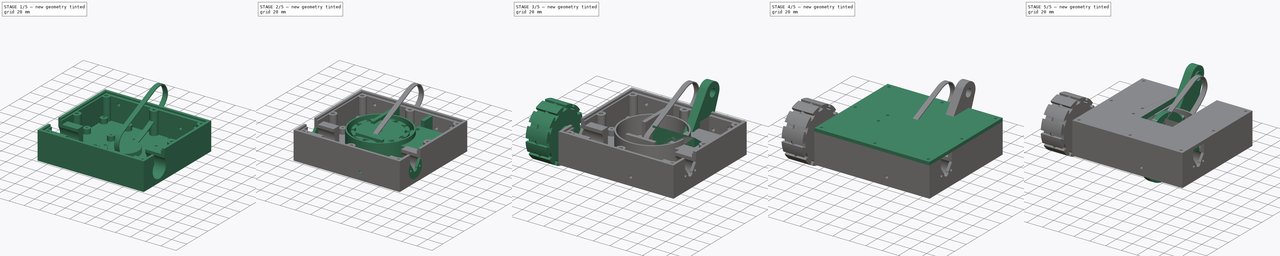
[diagram: build sequence overview — one tinted view per stage of 5, left to right]
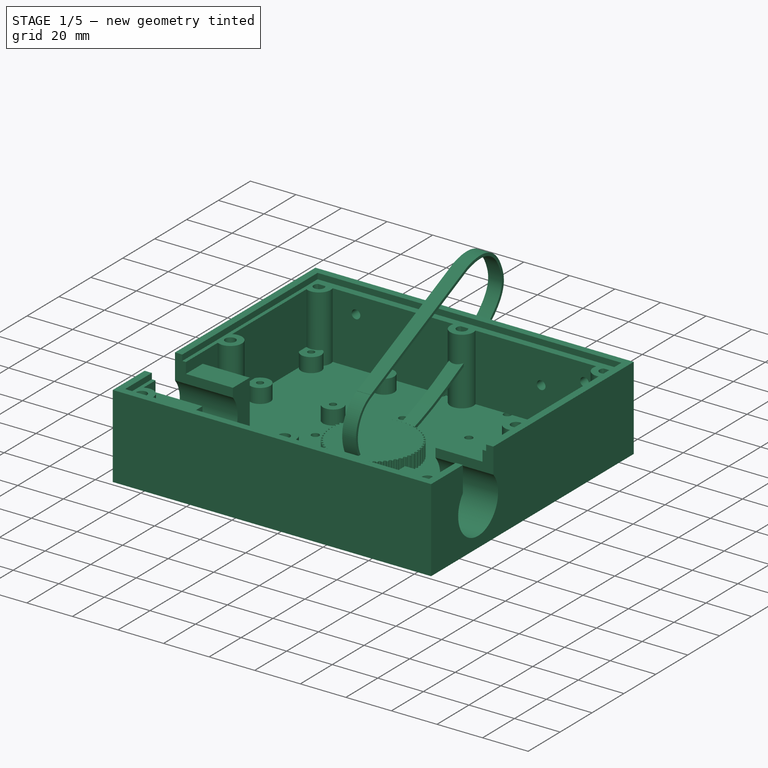
[diagram: stage 1 of 5 — iso view after this stage's code; geometry added in this stage tinted green]
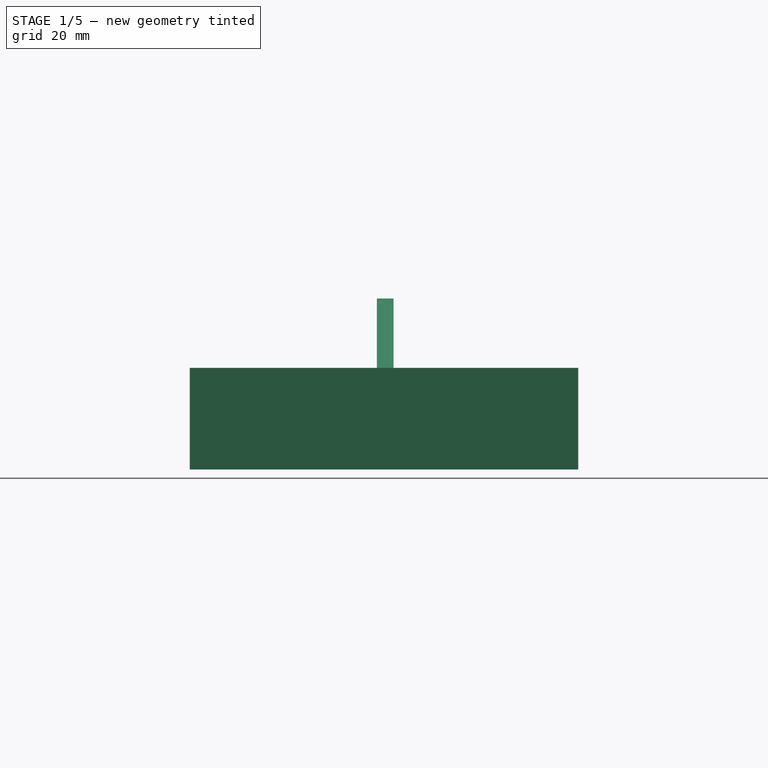
[diagram: stage 1 of 5 — front view after this stage's code; geometry added in this stage tinted green]
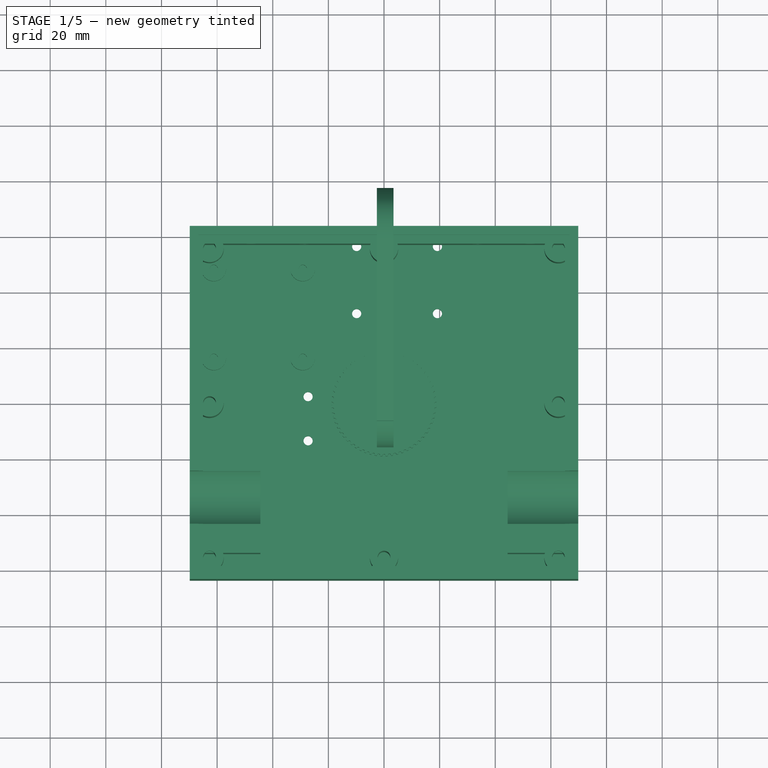
[diagram: stage 1 of 5 — top view after this stage's code; geometry added in this stage tinted green]
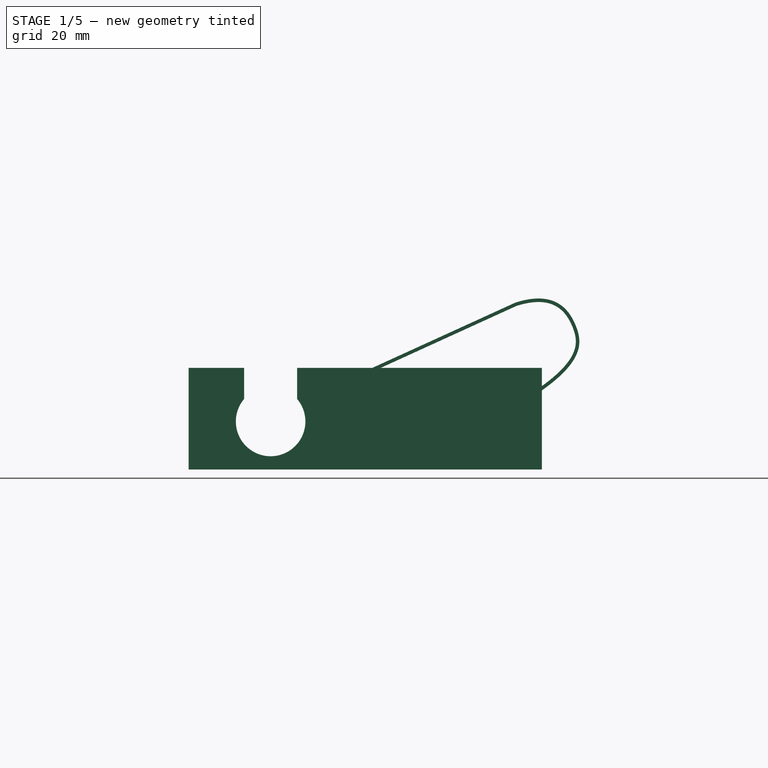
[diagram: stage 1 of 5 — right view after this stage's code; geometry added in this stage tinted green]
FCSTD DOCUMENT  (FreeCAD 2024.2R37191 (Git))
Label: VS_vertical_spinner
License: All rights reserved
LicenseURL: http://en.wikipedia.org/wiki/All_rights_reserved
objects: Sketcher::SketchObject×76, PartDesign::Pad×33, PartDesign::Pocket×32, PartDesign::Body×21, Part::Feature×7, PartDesign::FeatureBase×5, App::DocumentObjectGroup×4, PartDesign::Plane×2, Part::Box×2, Part::Cut×2, Spreadsheet::Sheet×1, PartDesign::Mirrored×1, Part::Mirroring×1, PartDesign::PolarPattern×1, PartDesign::Revolution×1, Part::MultiFuse×1, PartDesign::AdditivePipe×1, Part::FeaturePython×1, PartDesign::AdditiveLoft×1, App::Part×1
note: 256 computed .brp shape members not serialized (recipe doc carries the construction recipe); baked Part::Feature solids carry a one-line shape summary decoded from their .brp

FEATURE [Sketcher::SketchObject] Sketch
  AttachmentSupport = -> [XY_Plane]
  FullyConstrained = true
  MapMode = 5
  expr: Constraints[10] = <<Spreadsheet>>.length
  expr: Constraints[19] = Spreadsheet.wall_thickness
  expr: Constraints[20] = Spreadsheet.wall_thickness
  expr: Constraints[22] = <<Spreadsheet>>.wall_thickness
  expr: Constraints[9] = <<Spreadsheet>>.width
  sketch-geometry (8):
    g0: LineSegment StartX=-69.85 StartY=63.5 StartZ=0 EndX=69.85 EndY=63.5 EndZ=0
    g1: LineSegment StartX=69.85 StartY=63.5 StartZ=0 EndX=69.85 EndY=-63.5 EndZ=0
    g2: LineSegment StartX=69.85 StartY=-63.5 StartZ=0 EndX=-69.85 EndY=-63.5 EndZ=0
    g3: LineSegment StartX=-69.85 StartY=-63.5 StartZ=0 EndX=-69.85 EndY=63.5 EndZ=0
    g4: LineSegment StartX=-65.0875 StartY=57.15 StartZ=0 EndX=65.0875 EndY=57.15 EndZ=0
    g5: LineSegment StartX=65.0875 StartY=57.15 StartZ=0 EndX=65.0875 EndY=-58.7375 EndZ=0
    g6: LineSegment StartX=65.0875 StartY=-58.7375 StartZ=0 EndX=-65.0875 EndY=-58.7375 EndZ=0
    g7: LineSegment StartX=-65.0875 StartY=-58.7375 StartZ=0 EndX=-65.0875 EndY=57.15 EndZ=0
  constraints (23):
    c: Coincident(g0,g1)
    c: Coincident(g1,g2)
    c: Coincident(g2,g3)
    c: Coincident(g3,g0)
    c: Horizontal(g0)
    c: Horizontal(g2)
    c: Vertical(g1)
    c: Vertical(g3)
    c: Symmetric(g1,g0,g-1)
    c: DistanceX(g0,g0) = 139.7
    c: DistanceY(g1,g1) = 127
    c: Coincident(g4,g5)
    c: Coincident(g5,g6)
    c: Coincident(g6,g7)
    c: Coincident(g7,g4)
    c: Horizontal(g4)
    c: Horizontal(g6)
    c: Vertical(g5)
    c: Vertical(g7)
    c: DistanceX(g4,g0) = 4.7625
    c: DistanceY(g1,g5) = 4.7625
    c: DistanceY(g4,g0) = 6.35
    c: DistanceX(g2,g6) = 4.7625
FEATURE [Spreadsheet::Sheet] Spreadsheet
  cells = A1='wall thickness; B1(wall_thickness)==0.1875 in; A2='height; B2(height)==1.25 in; A3='base_thickness; B3(base_thickness)==0.1875 in; A4='drive motor diameter; B4(drive_motor_diameter)==0.975 in; A5='drive motor xpos; B5(drive_motor_xpos)==1.34 in; A6='drive motor ypos; B6(drive_motor_ypos)==0.492 in; A7='m3 insert nut diameter; B7(m3_nut_diameter)==0.18 in; A8='m3 insert nut depth; B8(m3_nut_depth)==0.17 in; A9='m3 clearance diameter; B9(m3_clearance)==3.5 mm; A10='m3 plastic thread; B10(m3_plastic_thread)==2.9 mm; A11='width; B11(width)==5.5 in; A12='length; B12(length)==5 in
FEATURE [PartDesign::Pad] Pad  label="walls"
  Direction = (0,0,1)
  Length = 31.75
  Length2 = 100.013
  Profile = -> Sketch
  Suppressed = false
  Type = 0
  expr: Length = Spreadsheet.height
FEATURE [Sketcher::SketchObject] Sketch001
  AttachmentSupport = -> [Pad]
  ExternalGeometry = -> [Pad]
  FullyConstrained = false
  MapMode = 5
  Placement = pos=(0,0,0) rot=(1,0,0;3.14159rad)
  sketch-geometry (10):
    g0: LineSegment StartX=69.85 StartY=63.5 StartZ=0 EndX=-69.85 EndY=63.5 EndZ=0
    g1: LineSegment StartX=-69.85 StartY=63.5 StartZ=0 EndX=-69.85 EndY=-63.5 EndZ=0
    g2: LineSegment StartX=-69.85 StartY=-63.5 StartZ=0 EndX=69.85 EndY=-63.5 EndZ=0
    g3: LineSegment StartX=69.85 StartY=-63.5 StartZ=0 EndX=69.85 EndY=63.5 EndZ=0
    g4: Circle CenterX=-27.2866 CenterY=13.227 CenterZ=0 NormalX=0 NormalY=0 NormalZ=1 AngleXU=0 Radius=1.651
    g5: Circle CenterX=-27.2866 CenterY=-2.64803 CenterZ=0 NormalX=0 NormalY=0 NormalZ=1 AngleXU=0 Radius=1.651
    g6: Circle CenterX=-9.8298 CenterY=-32.4957 CenterZ=0 NormalX=0 NormalY=0 NormalZ=1 AngleXU=0 Radius=1.651
    g7: Circle CenterX=19.2024 CenterY=-32.4957 CenterZ=0 NormalX=0 NormalY=0 NormalZ=1 AngleXU=0 Radius=1.651
    g8: Circle CenterX=19.2024 CenterY=-56.6257 CenterZ=0 NormalX=0 NormalY=0 NormalZ=1 AngleXU=0 Radius=1.651
    g9: Circle CenterX=-9.8298 CenterY=-56.6257 CenterZ=0 NormalX=0 NormalY=0 NormalZ=1 AngleXU=0 Radius=1.651
  constraints (25):
    c: Coincident(g0,g1)
    c: Coincident(g1,g2)
    c: Coincident(g2,g3)
    c: Coincident(g3,g0)
    c: Horizontal(g0)
    c: Horizontal(g2)
    c: Vertical(g1)
    c: Vertical(g3)
    c: Coincident(g0,g-3)
    c: Coincident(g1,g-4)
    c: Equal(g5,g4)
    c: Vertical(g4,g5)
    c: Diameter(g4) = 3.302
    c: DistanceY(g5,g4) = 15.875
    c: Equal(g6,g9)
    c: Equal(g9,g8)
    c: Equal(g8,g7)
    c: Equal(g7,g5)
    c: DistanceY(g9,g6) = 24.13
    c: DistanceX(g9,g-1) = 9.8298
    c: DistanceY(g8,g7) = 24.13
    c: Vertical(g7,g8)
    c: Vertical(g9,g6)
    c: DistanceX(g-1,g7) = 19.2024
    c: Horizontal(g7,g6)
FEATURE [PartDesign::Pad] Pad001  label="base"
  BaseFeature = -> Pad
  Direction = (0,0,-1)
  Length = 4.7625
  Length2 = 100.013
  Profile = -> Sketch001
  Suppressed = false
  Type = 0
  expr: Length = Spreadsheet.base_thickness
FEATURE [Sketcher::SketchObject] Sketch002
  AttachmentSupport = -> [Pad001]
  ExternalGeometry = -> [Pad001]
  FullyConstrained = true
  MapMode = 5
  expr: Constraints[27] = <<Spreadsheet>>.m3_nut_diameter
  expr: Constraints[37] = <<Spreadsheet>>.width - 2 * <<Spreadsheet>>.wall_thickness - 0.1875 in
  expr: Constraints[38] = <<Spreadsheet>>.length - 2 * <<Spreadsheet>>.wall_thickness - 0.25 in
  sketch-geometry (24):
    g0: GeomPoint X=-62.7062 Y=0 Z=0
    g1: GeomPoint X=0 Y=55.5625 Z=0
    g2: GeomPoint X=0 Y=-55.5625 Z=0
    g3: GeomPoint X=62.7062 Y=0 Z=0
    g4: Circle CenterX=-62.7062 CenterY=55.5625 CenterZ=0 NormalX=0 NormalY=0 NormalZ=1 AngleXU=0 Radius=5.08
    g5: Circle CenterX=0 CenterY=55.5625 CenterZ=0 NormalX=0 NormalY=0 NormalZ=1 AngleXU=0 Radius=5.08
    g6: Circle CenterX=62.7062 CenterY=55.5625 CenterZ=0 NormalX=0 NormalY=0 NormalZ=1 AngleXU=0 Radius=5.08
    g7: Circle CenterX=62.7062 CenterY=0 CenterZ=0 NormalX=0 NormalY=0 NormalZ=1 AngleXU=0 Radius=5.08
    g8: Circle CenterX=62.7062 CenterY=-55.5625 CenterZ=0 NormalX=0 NormalY=0 NormalZ=1 AngleXU=0 Radius=5.08
    g9: Circle CenterX=0 CenterY=-55.5625 CenterZ=0 NormalX=0 NormalY=0 NormalZ=1 AngleXU=0 Radius=5.08
    g10: Circle CenterX=-62.7062 CenterY=-55.5625 CenterZ=0 NormalX=0 NormalY=0 NormalZ=1 AngleXU=0 Radius=5.08
    g11: Circle CenterX=-62.7062 CenterY=0 CenterZ=0 NormalX=0 NormalY=0 NormalZ=1 AngleXU=0 Radius=5.08
    g12: Circle CenterX=-62.7062 CenterY=55.5625 CenterZ=0 NormalX=0 NormalY=0 NormalZ=1 AngleXU=0 Radius=2.286
    g13: Circle CenterX=0 CenterY=55.5625 CenterZ=0 NormalX=0 NormalY=0 NormalZ=1 AngleXU=0 Radius=2.286
    g14: Circle CenterX=62.7062 CenterY=55.5625 CenterZ=0 NormalX=0 NormalY=0 NormalZ=1 AngleXU=0 Radius=2.286
    g15: Circle CenterX=62.7062 CenterY=0 CenterZ=0 NormalX=0 NormalY=0 NormalZ=1 AngleXU=0 Radius=2.286
    g16: Circle CenterX=-62.7062 CenterY=0 CenterZ=0 NormalX=0 NormalY=0 NormalZ=1 AngleXU=0 Radius=2.286
    g17: Circle CenterX=-62.7062 CenterY=-55.5625 CenterZ=0 NormalX=0 NormalY=0 NormalZ=1 AngleXU=0 Radius=2.286
    g18: Circle CenterX=0 CenterY=-55.5625 CenterZ=0 NormalX=0 NormalY=0 NormalZ=1 AngleXU=0 Radius=2.286
    g19: Circle CenterX=62.7062 CenterY=-55.5625 CenterZ=0 NormalX=0 NormalY=0 NormalZ=1 AngleXU=0 Radius=2.286
    g20: LineSegment StartX=-62.7062 StartY=55.5625 StartZ=0 EndX=62.7062 EndY=55.5625 EndZ=0
    g21: LineSegment StartX=62.7062 StartY=55.5625 StartZ=0 EndX=62.7062 EndY=-55.5625 EndZ=0
    g22: LineSegment StartX=62.7062 StartY=-55.5625 StartZ=0 EndX=-62.7062 EndY=-55.5625 EndZ=0
    g23: LineSegment StartX=-62.7062 StartY=-55.5625 StartZ=0 EndX=-62.7062 EndY=55.5625 EndZ=0
  constraints (51):
    c: Coincident(g5,g1)
    c: Coincident(g7,g3)
    c: Coincident(g9,g2)
    c: Coincident(g11,g0)
    c: Equal(g10,g9)
    c: Equal(g9,g8)
    c: Equal(g8,g7)
    c: Equal(g7,g6)
    c: Equal(g6,g5)
    c: Equal(g5,g4)
    c: Equal(g4,g11)
    c: Diameter(g4) = 10.16
    c: Coincident(g12,g4)
    c: Coincident(g13,g5)
    c: Coincident(g14,g6)
    c: Coincident(g15,g7)
    c: Coincident(g16,g11)
    c: Coincident(g17,g10)
    c: Coincident(g18,g9)
    c: Coincident(g19,g8)
    c: Equal(g19,g18)
    c: Equal(g18,g17)
    c: Equal(g17,g16)
    c: Equal(g16,g12)
    c: Equal(g12,g13)
    c: Equal(g13,g14)
    c: Equal(g14,g15)
    c: Diameter(g14) = 4.572
    c: Coincident(g20,g21)
    c: Coincident(g21,g22)
    c: Coincident(g22,g23)
    c: Coincident(g23,g20)
    c: Horizontal(g20)
    c: Horizontal(g22)
    c: Vertical(g21)
    c: Vertical(g23)
    c: Symmetric(g21,g20,g-1)
    c: DistanceX(g20,g20) = 125.412
    c: DistanceY(g21,g21) = 111.125
    c: Coincident(g4,g20)
    c: PointOnObject(g5,g20)
    c: PointOnObject(g5,g-2)
    c: Coincident(g6,g20)
    c: PointOnObject(g7,g21)
    c: PointOnObject(g7,g-1)
    c: Coincident(g8,g21)
    c: PointOnObject(g9,g22)
    c: PointOnObject(g9,g-2)
    c: Coincident(g22,g10)
    c: PointOnObject(g11,g-1)
    c: PointOnObject(g11,g23)
FEATURE [PartDesign::Pad] Pad002  label="brass_insert_holes"
  BaseFeature = -> Pad001
  Direction = (0,0,1)
  Length = 31.75
  Length2 = 100.013
  Profile = -> Sketch002
  Suppressed = false
  Type = 0
  expr: Length = Spreadsheet.height
FEATURE [Sketcher::SketchObject] Sketch003
  AttachmentSupport = -> [Pad002]
  ExternalGeometry = -> [Pad002]
  FullyConstrained = true
  MapMode = 5
  sketch-geometry (8):
    g0: LineSegment StartX=-69.85 StartY=-13.97 StartZ=0 EndX=-44.45 EndY=-13.97 EndZ=0
    g1: LineSegment StartX=-44.45 StartY=-13.97 StartZ=0 EndX=-44.45 EndY=-53.97 EndZ=0
    g2: LineSegment StartX=-44.45 StartY=-53.97 StartZ=0 EndX=-69.85 EndY=-53.97 EndZ=0
    g3: LineSegment StartX=-69.85 StartY=-53.97 StartZ=0 EndX=-69.85 EndY=-13.97 EndZ=0
    g4: LineSegment StartX=44.45 StartY=-13.97 StartZ=0 EndX=69.85 EndY=-13.97 EndZ=0
    g5: LineSegment StartX=69.85 StartY=-13.97 StartZ=0 EndX=69.85 EndY=-53.97 EndZ=0
    g6: LineSegment StartX=69.85 StartY=-53.97 StartZ=0 EndX=44.45 EndY=-53.97 EndZ=0
    g7: LineSegment StartX=44.45 StartY=-53.97 StartZ=0 EndX=44.45 EndY=-13.97 EndZ=0
  constraints (23):
    c: Coincident(g0,g1)
    c: Coincident(g1,g2)
    c: Coincident(g2,g3)
    c: Coincident(g3,g0)
    c: Horizontal(g0)
    c: Horizontal(g2)
    c: Vertical(g1)
    c: Vertical(g3)
    c: Coincident(g4,g5)
    c: Coincident(g5,g6)
    c: Coincident(g6,g7)
    c: Coincident(g7,g4)
    c: Horizontal(g4)
    c: Horizontal(g6)
    c: Vertical(g5)
    c: Vertical(g7)
    c: Equal(g4,g0)
    c: Equal(g1,g7)
    c: Symmetric(g0,g4,g-2)
    c: DistanceX(g0,g0) = 25.4
    c: DistanceY(g7,g7) = 40
    c: DistanceY(g0,g-1) = 13.97
    c: DistanceX(g0,g-1) = 44.45
FEATURE [PartDesign::Pad] Pad003  label="motor_pad"
  BaseFeature = -> Pad002
  Direction = (0,0,1)
  Length = 24.5
  Length2 = 99.9998
  Profile = -> Sketch003
  Suppressed = false
  Type = 0
  expr: Length = 24.5 mm
FEATURE [Sketcher::SketchObject] Sketch004
  AttachmentSupport = -> [Pad003]
  ExternalGeometry = -> [Pad003]
  FullyConstrained = true
  MapMode = 5
  Placement = pos=(-69.85,0,0) rot=(0.57735,-0.57735,-0.57735;2.0944rad)
  expr: Constraints[10] = <<Spreadsheet>>.drive_motor_xpos
  sketch-geometry (4):
    g0: ArcOfCircle CenterX=34.036 CenterY=12.4993 CenterZ=0 NormalX=0 NormalY=0 NormalZ=1 AngleXU=0 Radius=12.4993 StartAngle=2.43725 EndAngle=6.98752
    g1: LineSegment StartX=24.511 StartY=20.593 StartZ=0 EndX=24.511 EndY=33.293 EndZ=0
    g2: LineSegment StartX=24.511 StartY=33.293 StartZ=0 EndX=43.561 EndY=33.293 EndZ=0
    g3: LineSegment StartX=43.561 StartY=33.293 StartZ=0 EndX=43.561 EndY=20.593 EndZ=0
  constraints (14):
    c: Diameter(g0) = 24.9987
    c: Tangent(g0,g-1)
    c: Vertical(g1)
    c: Coincident(g2,g1)
    c: Coincident(g3,g2)
    c: Vertical(g3)
    c: DistanceX(g2,g2) = 19.05
    c: Coincident(g0,g1)
    c: Coincident(g0,g3)
    c: DistanceY(g3,g3) = 12.7
    c: DistanceX(g0) = 34.036
    c: Horizontal(g0,g0)
    c: Horizontal(g2)
    c: DistanceY(g-1,g0) = 12.4993
FEATURE [PartDesign::Pocket] Pocket  label="drive_motor_pocket"
  BaseFeature = -> Pad003
  Direction = (1,0,0)
  Length = 5.0038
  Length2 = 99.9998
  Profile = -> Sketch004
  Suppressed = false
  Type = 1
FEATURE [Sketcher::SketchObject] Sketch005  label="battery"
  FullyConstrained = false
  sketch-geometry (7):
    g0: LineSegment StartX=-15.4727 StartY=25.4951 StartZ=0 EndX=13.7373 EndY=25.4951 EndZ=0
    g1: LineSegment StartX=13.7373 StartY=25.4951 StartZ=0 EndX=13.7373 EndY=-29.8769 EndZ=0
    g2: LineSegment StartX=1.03735 StartY=-29.8769 StartZ=0 EndX=-15.4727 EndY=-29.8769 EndZ=0
    g3: LineSegment StartX=-15.4727 StartY=-29.8769 StartZ=0 EndX=-15.4727 EndY=25.4951 EndZ=0
    g4: LineSegment StartX=1.03735 StartY=-29.8769 StartZ=0 EndX=1.03735 EndY=-36.2269 EndZ=0
    g5: LineSegment StartX=1.03735 StartY=-36.2269 StartZ=0 EndX=13.7373 EndY=-36.2269 EndZ=0
    g6: LineSegment StartX=13.7373 StartY=-36.2269 StartZ=0 EndX=13.7373 EndY=-29.8769 EndZ=0
  constraints (19):
    c: Coincident(g0,g1)
    c: Coincident(g2,g3)
    c: Coincident(g3,g0)
    c: Horizontal(g0)
    c: Horizontal(g2)
    c: Vertical(g1)
    c: Vertical(g3)
    c: DistanceX(g0,g0) = 29.21
    c: DistanceY(g1,g1) = 55.372
    c: Coincident(g4,g5)
    c: Coincident(g5,g6)
    c: Horizontal(g5)
    c: Vertical(g4)
    c: Vertical(g6)
    c: Coincident(g1,g6)
    c: Horizontal(g1,g2)
    c: Coincident(g2,g4)
    c: DistanceY(g6,g6) = 6.35
    c: DistanceX(g5,g5) = 12.7
FEATURE [Sketcher::SketchObject] Sketch007  label="receiver_footprint"
  AttachmentOffset = pos=(-34.29,25.4,0) rot=(0,0,1;0rad)
  FullyConstrained = true
  MapMode = 5
  Placement = pos=(-34.29,25.4,0) rot=(0,0,1;0rad)
  expr: Constraints[15] = <<Spreadsheet>>.m3_plastic_thread
  sketch-geometry (19):
    g0: LineSegment StartX=-26.92 StartY=23.11 StartZ=0 EndX=5.08 EndY=23.11 EndZ=0
    g1: LineSegment StartX=5.08 StartY=23.11 StartZ=0 EndX=5.08 EndY=-8.89 EndZ=0
    g2: LineSegment StartX=5.08 StartY=-8.89 StartZ=0 EndX=-26.92 EndY=-8.89 EndZ=0
    g3: LineSegment StartX=-26.92 StartY=-8.89 StartZ=0 EndX=-26.92 EndY=23.11 EndZ=0
    g4: Circle CenterX=-26.92 CenterY=23.11 CenterZ=0 NormalX=0 NormalY=0 NormalZ=1 AngleXU=0 Radius=1.45
    g5: Circle CenterX=5.08 CenterY=23.11 CenterZ=0 NormalX=0 NormalY=0 NormalZ=1 AngleXU=0 Radius=1.45
    g6: Circle CenterX=5.08 CenterY=-8.89 CenterZ=0 NormalX=0 NormalY=0 NormalZ=1 AngleXU=0 Radius=1.45
    g7: Circle CenterX=-26.92 CenterY=-8.89 CenterZ=0 NormalX=0 NormalY=0 NormalZ=1 AngleXU=0 Radius=1.45
    g8: Circle CenterX=5.08 CenterY=23.11 CenterZ=0 NormalX=0 NormalY=0 NormalZ=1 AngleXU=0 Radius=4.445
    g9: Circle CenterX=-26.92 CenterY=23.11 CenterZ=0 NormalX=0 NormalY=0 NormalZ=1 AngleXU=0 Radius=4.445
    g10: Circle CenterX=-26.92 CenterY=-8.89 CenterZ=0 NormalX=0 NormalY=0 NormalZ=1 AngleXU=0 Radius=4.445
    g11: Circle CenterX=5.08 CenterY=-8.89 CenterZ=0 NormalX=0 NormalY=0 NormalZ=1 AngleXU=0 Radius=4.445
    g12: LineSegment StartX=-29.92 StartY=26.11 StartZ=0 EndX=8.08 EndY=26.11 EndZ=0
    g13: LineSegment StartX=8.08 StartY=26.11 StartZ=0 EndX=8.08 EndY=-11.89 EndZ=0
    g14: LineSegment StartX=8.08 StartY=-11.89 StartZ=0 EndX=-29.92 EndY=-11.89 EndZ=0
    g15: LineSegment StartX=-29.92 StartY=-11.89 StartZ=0 EndX=-29.92 EndY=26.11 EndZ=0
    g16: LineSegment StartX=-29.92 StartY=26.11 StartZ=0 EndX=8.08 EndY=-11.89 EndZ=0
    g17: LineSegment StartX=-29.92 StartY=-11.89 StartZ=0 EndX=8.08 EndY=26.11 EndZ=0
    g18: GeomPoint X=-10.92 Y=7.11 Z=0
  constraints (45):
    c: Coincident(g0,g1)
    c: Coincident(g1,g2)
    c: Coincident(g2,g3)
    c: Coincident(g3,g0)
    c: Horizontal(g0)
    c: Horizontal(g2)
    c: Vertical(g1)
    c: Vertical(g3)
    c: Coincident(g4,g0)
    c: Coincident(g5,g0)
    c: Coincident(g6,g1)
    c: Coincident(g7,g2)
    c: Equal(g7,g6)
    c: Equal(g6,g5)
    c: Equal(g5,g4)
    c: Diameter(g5) = 2.9
    c: DistanceX(g0,g0) = 32
    c: Coincident(g8,g5)
    c: Coincident(g9,g4)
    c: Coincident(g10,g7)
    c: Coincident(g11,g6)
    c: Equal(g10,g11)
    c: Equal(g11,g8)
    c: Equal(g8,g9)
    c: Diameter(g9) = 8.89
    c: Equal(g1,g0)
    c: Coincident(g12,g13)
    c: Coincident(g13,g14)
    c: Coincident(g14,g15)
    c: Coincident(g15,g12)
    c: Horizontal(g12)
    c: Horizontal(g14)
    c: Vertical(g13)
    c: Vertical(g15)
    c: Equal(g15,g12)
    c: DistanceX(g12,g12) = 38
    c: Coincident(g16,g12)
    c: Coincident(g16,g13)
    c: Coincident(g17,g14)
    c: Coincident(g17,g12)
    c: PointOnObject(g18,g17)
    c: PointOnObject(g18,g16)
    c: Symmetric(g6,g4,g18)
    c: DistanceX(g6) = 5.08
    c: DistanceY(g6) = -8.89
FEATURE [PartDesign::Pad] Pad006  label="receiver-pads"
  BaseFeature = -> Pocket
  Direction = (0,0,1)
  Length = 6.35
  Length2 = 99.9998
  Profile = -> Sketch007
  Suppressed = false
  Type = 0
FEATURE [PartDesign::Body] Body002  label="battery001"
  Group = -> [Sketch005,Pad007]
  Origin = -> Origin002
  Placement = pos=(44.704,25.4,16.256) rot=(0,1,0;3.14159rad)
  Tip = -> Pad007
FEATURE [Sketcher::SketchObject] Sketch014  label="wedge_mount_holes"
  AttachmentSupport = -> [Pad006]
  FullyConstrained = false
  MapMode = 5
  Placement = pos=(0,57.15,0) rot=(1,0,0;1.5708rad)
  sketch-geometry (6):
    g0: Circle CenterX=-47.625 CenterY=21.59 CenterZ=0 NormalX=0 NormalY=0 NormalZ=1 AngleXU=0 Radius=1.905
    g1: Circle CenterX=-28.575 CenterY=15.24 CenterZ=0 NormalX=0 NormalY=0 NormalZ=1 AngleXU=0 Radius=1.905
    g2: Circle CenterX=33.655 CenterY=15.24 CenterZ=0 NormalX=0 NormalY=0 NormalZ=1 AngleXU=0 Radius=1.905
    g3: Circle CenterX=52.705 CenterY=21.59 CenterZ=0 NormalX=0 NormalY=0 NormalZ=1 AngleXU=0 Radius=1.905
    g4: LineSegment StartX=-28.575 StartY=48.9484 StartZ=0 EndX=-28.575 EndY=-7.89198 EndZ=0
    g5: LineSegment StartX=33.655 StartY=48.9484 StartZ=0 EndX=33.655 EndY=2.06139 EndZ=0
  constraints (16):
    c: DistanceY(g1,g0) = 6.35
    c: DistanceX(g0,g1) = 19.05
    c: Vertical(g4)
    c: Vertical(g5)
    c: DistanceX(g4,g-1) = 28.575
    c: PointOnObject(g1,g4)
    c: PointOnObject(g2,g5)
    c: DistanceY(g-1,g1) = 15.24
    c: Equal(g0,g1)
    c: Equal(g1,g2)
    c: Equal(g2,g3)
    c: Diameter(g0) = 3.81
    c: Horizontal(g2,g1)
    c: DistanceX(g-1,g5) = 33.655
    c: DistanceX(g2,g3) = 19.05
    c: DistanceY(g2,g3) = 6.35
FEATURE [PartDesign::Pocket] Pocket004  label="wedge-mount-holes"
  BaseFeature = -> Pad006
  Direction = (0,1,-2e-16)
  Length = 5
  Length2 = 5
  Profile = -> Sketch014
  ReferenceAxis = -> Sketch014 [N_Axis]
  Suppressed = false
  Type = 1
FEATURE [Sketcher::SketchObject] Sketch015
  AttachmentOffset = pos=(0,0,29.21) rot=(0,0,1;0rad)
  AttachmentSupport = -> [XY_Plane005]
  FullyConstrained = true
  MapMode = 5
  Placement = pos=(0,0,29.21) rot=(0,0,1;0rad)
  sketch-geometry (4):
    g0: LineSegment StartX=-66.675 StartY=60.325 StartZ=0 EndX=66.675 EndY=60.325 EndZ=0
    g1: LineSegment StartX=66.675 StartY=60.325 StartZ=0 EndX=66.675 EndY=-60.325 EndZ=0
    g2: LineSegment StartX=66.675 StartY=-60.325 StartZ=0 EndX=-66.675 EndY=-60.325 EndZ=0
    g3: LineSegment StartX=-66.675 StartY=-60.325 StartZ=0 EndX=-66.675 EndY=60.325 EndZ=0
  constraints (11):
    c: Coincident(g0,g1)
    c: Coincident(g1,g2)
    c: Coincident(g2,g3)
    c: Coincident(g3,g0)
    c: Horizontal(g0)
    c: Horizontal(g2)
    c: Vertical(g1)
    c: Vertical(g3)
    c: DistanceX(g0,g0) = 133.35
    c: DistanceY(g3,g3) = 120.65
    c: Symmetric(g0,g2,g-1)
FEATURE [PartDesign::Pocket] Pocket005  label="top-recess"
  BaseFeature = -> Pocket004
  Direction = (0,0,-1)
  Length = 6.35
  Length2 = 5
  Profile = -> Sketch015
  ReferenceAxis = -> Sketch015 [N_Axis]
  Reversed = true
  Suppressed = false
  Type = 0
FEATURE [App::DocumentObjectGroup] Group003  label="body"
  Group = -> [Body002,Cut,Cut001,Body021]
FEATURE [Sketcher::SketchObject] Sketch090  label="belt-profile"
  AttachmentSupport = -> [XZ_Plane018]
  FullyConstrained = false
  MapMode = 5
  Placement = pos=(0,0,0) rot=(1,0,0;1.5708rad)
  sketch-geometry (4):
    g0: LineSegment StartX=-2.56839 StartY=-1.21756 StartZ=0 EndX=3.43161 EndY=-1.21756 EndZ=0
    g1: LineSegment StartX=3.43161 StartY=-1.21756 StartZ=0 EndX=3.43161 EndY=0.0524437 EndZ=0
    g2: LineSegment StartX=3.43161 StartY=0.0524437 StartZ=0 EndX=-2.56839 EndY=0.0524437 EndZ=0
    g3: LineSegment StartX=-2.56839 StartY=0.0524437 StartZ=0 EndX=-2.56839 EndY=-1.21756 EndZ=0
  constraints (10):
    c: Coincident(g0,g1)
    c: Coincident(g1,g2)
    c: Coincident(g2,g3)
    c: Coincident(g3,g0)
    c: Horizontal(g0)
    c: Horizontal(g2)
    c: Vertical(g1)
    c: Vertical(g3)
    c: DistanceX(g0,g0) = 6
    c: DistanceY(g1,g1) = 1.27
FEATURE [PartDesign::AdditivePipe] AdditivePipe
  AuxilleryCurvelinear = true
  AuxillerySpineTangent = false
  Binormal = (0,0,0)
  Mode = 0
  Placement = pos=(0,0,0) rot=(1,0,0;1.5708rad)
  Profile = -> Sketch090
  Spine = -> Sketch051
  SpineTangent = false
  Suppressed = false
  Transformation = 0
  Transition = 0
FEATURE [PartDesign::Body] Body018  label="weapon-belt"
  Group = -> [Sketch051,Sketch090,AdditivePipe]
  Origin = -> Origin018
  Placement = pos=(6.858,0,0) rot=(0,0,1;0rad)
  Tip = -> AdditivePipe
FEATURE [App::DocumentObjectGroup] Group  label="weapon"
  Group = -> [Body005,Body007,Part__Feature002,Body010,Body013,Part__Mirroring,Body015,Body017,Body016,Body018,Body020,drive_pulley_n40001_solid]
FEATURE [Part::FeaturePython] TimingGear  label="gt2-pulley"  # WARN: FeaturePython — macro-defined, semantics opaque (R4)
  AttacherType = Attacher::AttachEngine3D
  h = 0.75
  height = 6.35
  offset = 0.4
  pitch = 2
  r0 = 0.555
  r1 = 1
  rs = 0.15
  teeth = 60
  type = 0
  u = 0.254
  version = 0.0.4
FEATURE [PartDesign::FeatureBase] BaseFeature005
  BaseFeature = -> TimingGear
  Suppressed = false
FEATURE [Sketcher::SketchObject] Sketch091
  AttachmentSupport = -> [TimingGear]
  FullyConstrained = false
  MapMode = 5
  Placement = pos=(0,0,0) rot=(1,0,0;3.14159rad)
  sketch-geometry (1):
    g0: Circle CenterX=0 CenterY=0 CenterZ=0 NormalX=0 NormalY=0 NormalZ=1 AngleXU=0 Radius=18.7575
  constraints (1):
    c: Coincident(g0,g-1)
FEATURE [Sketcher::SketchObject] Sketch092
  AttachmentOffset = pos=(0,0,1) rot=(0,0,1;0rad)
  AttachmentSupport = -> [TimingGear]
  FullyConstrained = false
  MapMode = 5
  Placement = pos=(0,0,-1) rot=(1,0,0;3.14159rad)
  sketch-geometry (1):
    g0: Circle CenterX=0 CenterY=0 CenterZ=0 NormalX=0 NormalY=0 NormalZ=1 AngleXU=0 Radius=19.7944
  constraints (1):
    c: Coincident(g0,g-1)
FEATURE [PartDesign::AdditiveLoft] AdditiveLoft
  BaseFeature = -> BaseFeature005
  Closed = false
  Profile = -> Sketch091
  Ruled = false
  Sections = -> [Sketch092]
  Suppressed = false
FEATURE [Sketcher::SketchObject] Sketch095
  AttachmentSupport = -> [AdditiveLoft]
  FullyConstrained = false
  MapMode = 5
  Placement = pos=(0,0,-1) rot=(1,0,0;3.14159rad)
  sketch-geometry (1):
    g0: Circle CenterX=0 CenterY=0 CenterZ=0 NormalX=0 NormalY=0 NormalZ=1 AngleXU=0 Radius=19.7597
  constraints (1):
    c: Coincident(g0,g-1)
FEATURE [PartDesign::Pad] Pad042  label="spacer"
  Direction = (0,0,-1)
  Length = 2
  Length2 = 10
  Profile = -> Sketch095
  ReferenceAxis = -> Sketch095 [N_Axis]
  Suppressed = false
  Type = 0
FEATURE [Sketcher::SketchObject] Sketch096
  AttachmentSupport = -> [Pad042]
  FullyConstrained = true
  MapMode = 5
  Placement = pos=(0,0,-3) rot=(1,0,0;3.14159rad)
  sketch-geometry (1):
    g0: Circle CenterX=0 CenterY=0 CenterZ=0 NormalX=0 NormalY=0 NormalZ=1 AngleXU=0 Radius=9.5
  constraints (2):
    c: Coincident(g0,g-1)
    c: Diameter(g0) = 19
FEATURE [PartDesign::Pocket] Pocket038  label="bearing-pocket"
  BaseFeature = -> Pad042
  Direction = (0,0,1)
  Length = 6
  Length2 = 5
  Profile = -> Sketch096
  ReferenceAxis = -> Sketch096 [N_Axis]
  Suppressed = false
  Type = 0
FEATURE [Sketcher::SketchObject] Sketch097
  AttachmentSupport = -> [Pocket038]
  FullyConstrained = true
  MapMode = 5
  Placement = pos=(0,0,6.35) rot=(0,0,1;0rad)
  sketch-geometry (1):
    g0: Circle CenterX=0 CenterY=0 CenterZ=0 NormalX=0 NormalY=0 NormalZ=1 AngleXU=0 Radius=8.5
  constraints (2):
    c: Coincident(g0,g-1)
    c: Diameter(g0) = 17
FEATURE [PartDesign::Pocket] Pocket039  label="through-hole"
  BaseFeature = -> Pocket038
  Direction = (0,0,-1)
  Length = 5.0038
  Length2 = 5
  Profile = -> Sketch097
  ReferenceAxis = -> Sketch097 [N_Axis]
  Suppressed = false
  Type = 0
FEATURE [Sketcher::SketchObject] Sketch098
  AttachmentSupport = -> [Pocket039]
  FullyConstrained = true
  MapMode = 5
  Placement = pos=(0,0,6.35) rot=(0,0,1;0rad)
  expr: Constraints[8] = <<Spreadsheet>>.m3_clearance
  sketch-geometry (8):
    g0: Circle CenterX=-15.24 CenterY=0 CenterZ=0 NormalX=0 NormalY=0 NormalZ=1 AngleXU=0 Radius=1.75
    g1: Circle CenterX=0 CenterY=15.24 CenterZ=0 NormalX=0 NormalY=0 NormalZ=1 AngleXU=0 Radius=1.75
    g2: Circle CenterX=15.24 CenterY=0 CenterZ=0 NormalX=0 NormalY=0 NormalZ=1 AngleXU=0 Radius=1.75
    g3: Circle CenterX=0 CenterY=-15.24 CenterZ=0 NormalX=0 NormalY=0 NormalZ=1 AngleXU=0 Radius=1.75
    g4: LineSegment StartX=-15.24 StartY=0 StartZ=0 EndX=0 EndY=0 EndZ=0
    g5: LineSegment StartX=0 StartY=0 StartZ=0 EndX=0 EndY=15.24 EndZ=0
    g6: LineSegment StartX=0 StartY=0 StartZ=0 EndX=15.24 EndY=0 EndZ=0
    g7: LineSegment StartX=0 StartY=0 StartZ=0 EndX=0 EndY=-15.24 EndZ=0
  constraints (20):
    c: PointOnObject(g0,g-1)
    c: PointOnObject(g1,g-2)
    c: PointOnObject(g2,g-1)
    c: PointOnObject(g3,g-2)
    c: Equal(g3,g0)
    c: Equal(g0,g1)
    c: Equal(g1,g2)
    c: DistanceY(g-1,g1) = 15.24
    c: Diameter(g1) = 3.5
    c: Coincident(g4,g0)
    c: Coincident(g4,g-1)
    c: Coincident(g5,g4)
    c: Coincident(g5,g1)
    c: Coincident(g6,g4)
    c: Coincident(g6,g2)
    c: Coincident(g7,g4)
    c: Coincident(g7,g3)
    c: Equal(g7,g6)
    c: Equal(g6,g5)
    c: Equal(g5,g4)
FEATURE [PartDesign::Pocket] Pocket040  label="screw-holes"
  BaseFeature = -> Pocket039
  Direction = (0,0,-1)
  Length = 5
  Length2 = 5
  Profile = -> Sketch098
  ReferenceAxis = -> Sketch098 [N_Axis]
  Suppressed = false
  Type = 1
FEATURE [PartDesign::Body] Body028  label="drive-pulley001"
  BaseFeature = -> TimingGear
  Group = -> [BaseFeature005,Sketch091,Sketch092,AdditiveLoft,Sketch095,Pad042,Sketch096,Pocket038,Sketch097,Pocket039,Sketch098,Pocket040]
  Origin = -> Origin028
  Tip = -> Pocket040
FEATURE [App::Part] Part  label="weapon-pulley001"
  Group = -> [TimingGear,Body028]
  Origin = -> Origin029
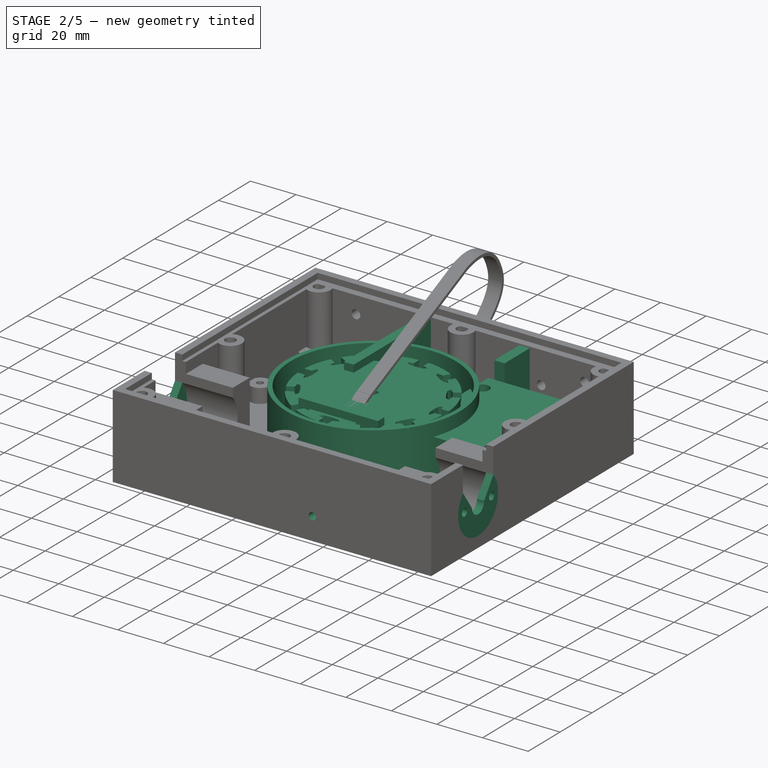
[diagram: stage 2 of 5 — iso view after this stage's code; geometry added in this stage tinted green]
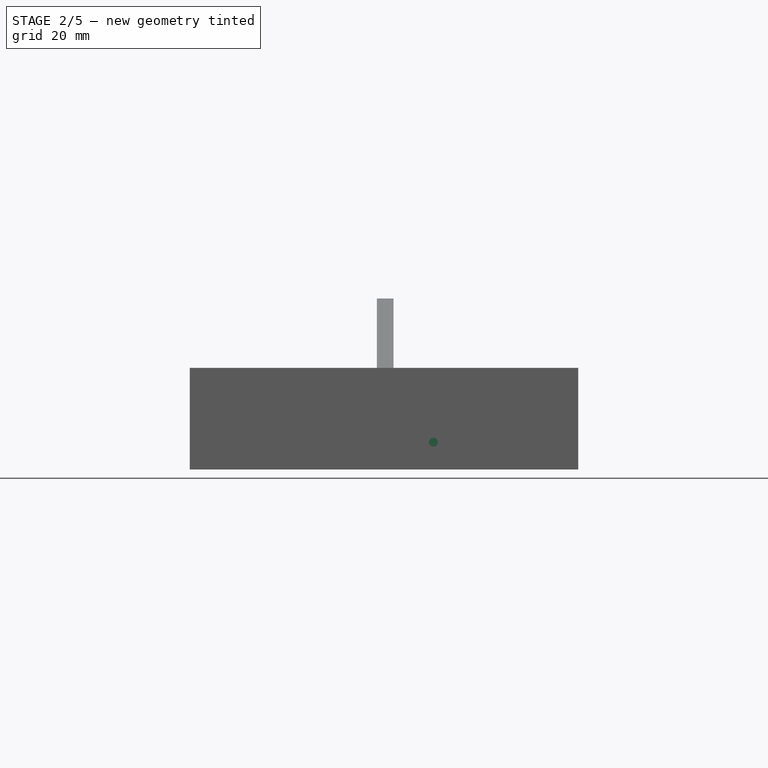
[diagram: stage 2 of 5 — front view after this stage's code; geometry added in this stage tinted green]
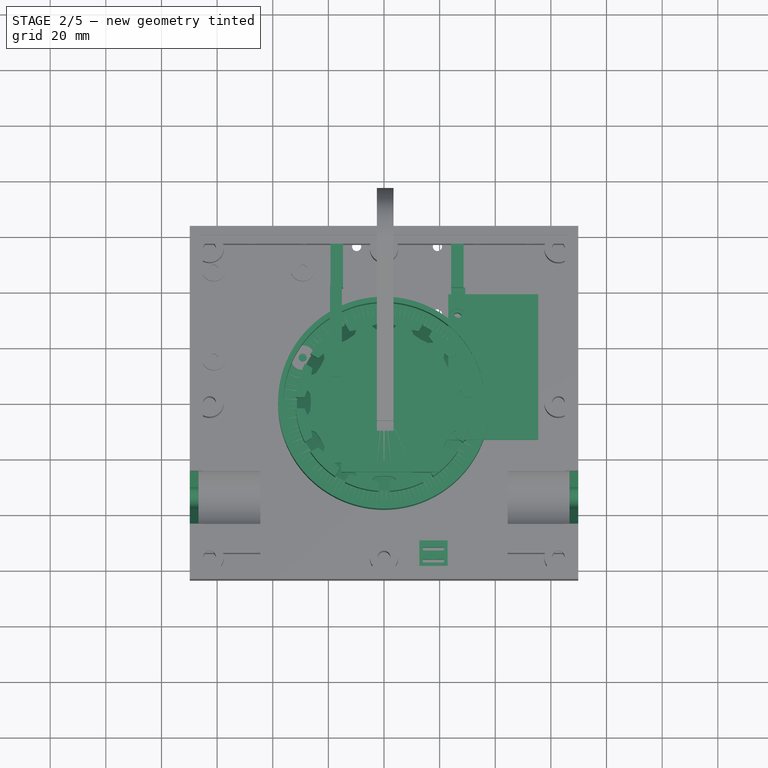
[diagram: stage 2 of 5 — top view after this stage's code; geometry added in this stage tinted green]
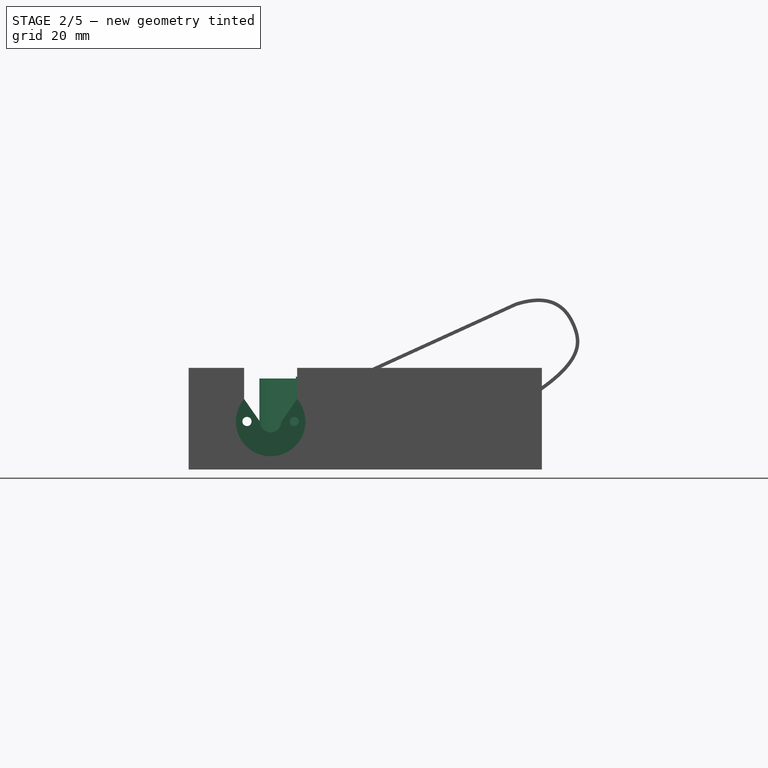
[diagram: stage 2 of 5 — right view after this stage's code; geometry added in this stage tinted green]
FEATURE [Sketcher::SketchObject] Sketch016  label="motor-retainer"
  AttachmentSupport = -> [Pocket005]
  ExternalGeometry = -> [Pocket005,Sketch004]
  FullyConstrained = true
  MapMode = 5
  Placement = pos=(-69.85,0,0) rot=(0.57735,-0.57735,-0.57735;2.0944rad)
  sketch-geometry (6):
    g0: ArcOfCircle CenterX=34.036 CenterY=12.386 CenterZ=0 NormalX=0 NormalY=0 NormalZ=1 AngleXU=0 Radius=3.81 StartAngle=3.14159 EndAngle=6.28319
    g1: ArcOfCircle CenterX=34.036 CenterY=12.386 CenterZ=0 NormalX=0 NormalY=0 NormalZ=1 AngleXU=0 Radius=12.573 StartAngle=2.43039 EndAngle=6.99439
    g2: LineSegment StartX=24.511 StartY=20.593 StartZ=0 EndX=30.226 EndY=12.386 EndZ=0
    g3: LineSegment StartX=43.561 StartY=20.593 StartZ=0 EndX=37.846 EndY=12.386 EndZ=0
    g4: Circle CenterX=25.536 CenterY=12.4993 CenterZ=0 NormalX=0 NormalY=0 NormalZ=1 AngleXU=0 Radius=1.651
    g5: Circle CenterX=42.536 CenterY=12.4993 CenterZ=0 NormalX=0 NormalY=0 NormalZ=1 AngleXU=0 Radius=1.651
  constraints (16):
    c: Diameter(g0) = 7.62
    c: Diameter(g1) = 25.146
    c: Coincident(g0,g3)
    c: Coincident(g0,g2)
    c: Coincident(g1,g3)
    c: Coincident(g1,g2)
    c: Horizontal(g0,g0)
    c: Coincident(g1,g0)
    c: Coincident(g1,g-6)
    c: Coincident(g-6,g1)
    c: Equal(g5,g4)
    c: Diameter(g4) = 3.302
    c: Horizontal(g4,g5)
    c: DistanceX(g4,g5) = 17
    c: Horizontal(g0,g0)
    c: Symmetric(g5,g4,g-6)
FEATURE [PartDesign::Pad] Pad010  label="motor-retainer-R"
  BaseFeature = -> Pocket005
  Direction = (-1,0,0)
  Length = 3.175
  Length2 = 10
  Profile = -> Sketch016
  ReferenceAxis = -> Sketch016 [N_Axis]
  Reversed = true
  Suppressed = false
  Type = 0
FEATURE [PartDesign::Mirrored] Mirrored  label="motor-retainer-L"
  BaseFeature = -> Pad010
  MirrorPlane = -> YZ_Plane
  Originals = -> [Pad010]
  Suppressed = false
FEATURE [Sketcher::SketchObject] Sketch060
  AttachmentSupport = -> [Pocket005]
  ExternalGeometry = -> [Pocket005]
  FullyConstrained = true
  MapMode = 5
  expr: Constraints[37] = <<Spreadsheet>>.length / 2 - <<Spreadsheet>>.wall_thickness
  sketch-geometry (14):
    g0: LineSegment StartX=12.7 StartY=-58.7375 StartZ=0 EndX=22.86 EndY=-58.7375 EndZ=0
    g1: LineSegment StartX=22.86 StartY=-58.7375 StartZ=0 EndX=22.86 EndY=-49.2125 EndZ=0
    g2: LineSegment StartX=22.86 StartY=-49.2125 StartZ=0 EndX=12.7 EndY=-49.2125 EndZ=0
    g3: LineSegment StartX=12.7 StartY=-49.2125 StartZ=0 EndX=12.7 EndY=-58.7375 EndZ=0
    g4: LineSegment StartX=13.97 StartY=-51.689 StartZ=0 EndX=21.59 EndY=-51.689 EndZ=0
    g5: LineSegment StartX=21.59 StartY=-51.689 StartZ=0 EndX=21.59 EndY=-52.832 EndZ=0
    g6: LineSegment StartX=21.59 StartY=-52.832 StartZ=0 EndX=13.97 EndY=-52.832 EndZ=0
    g7: LineSegment StartX=13.97 StartY=-52.832 StartZ=0 EndX=13.97 EndY=-51.689 EndZ=0
    g8: LineSegment StartX=13.97 StartY=-56.007 StartZ=0 EndX=21.59 EndY=-56.007 EndZ=0
    g9: LineSegment StartX=21.59 StartY=-56.007 StartZ=0 EndX=21.59 EndY=-57.15 EndZ=0
    g10: LineSegment StartX=21.59 StartY=-57.15 StartZ=0 EndX=13.97 EndY=-57.15 EndZ=0
    g11: LineSegment StartX=13.97 StartY=-57.15 StartZ=0 EndX=13.97 EndY=-56.007 EndZ=0
    g12: GeomPoint X=17.78 Y=-49.2125 Z=0
    g13: GeomPoint X=17.78 Y=-51.689 Z=0
  constraints (38):
    c: Coincident(g0,g1)
    c: Coincident(g1,g2)
    c: Coincident(g2,g3)
    c: Coincident(g3,g0)
    c: Horizontal(g0)
    c: Horizontal(g2)
    c: Vertical(g1)
    c: Vertical(g3)
    c: DistanceY(g1,g1) = 9.525
    c: DistanceX(g2,g2) = 10.16
    c: Coincident(g4,g5)
    c: Coincident(g5,g6)
    c: Coincident(g6,g7)
    c: Coincident(g7,g4)
    c: Horizontal(g4)
    c: Horizontal(g6)
    c: Vertical(g5)
    c: Vertical(g7)
    c: Coincident(g8,g9)
    c: Coincident(g9,g10)
    c: Coincident(g10,g11)
    c: Coincident(g11,g8)
    c: Horizontal(g8)
    c: Horizontal(g10)
    c: Vertical(g9)
    c: Vertical(g11)
    c: Equal(g4,g8)
    c: Equal(g9,g5)
    c: Vertical(g8,g5)
    c: DistanceY(g5,g5) = 1.143
    c: DistanceY(g8,g5) = 3.175
    c: Symmetric(g2,g1,g12)
    c: Symmetric(g4,g4,g13)
    c: Vertical(g13,g12)
    c: DistanceY(g0,g9) = 1.5875
    c: DistanceX(g4,g4) = 7.62
    c: DistanceX(g-1,g2) = 12.7
    c: DistanceY(g0,g-1) = 58.7375
FEATURE [PartDesign::Pad] Pad028  label="pwr-switch"
  BaseFeature = -> Mirrored
  Direction = (0,0,1)
  Length = 9.525
  Length2 = 10
  Profile = -> Sketch060
  ReferenceAxis = -> Sketch060 [N_Axis]
  Suppressed = false
  Type = 0
FEATURE [Sketcher::SketchObject] Sketch061
  AttachmentSupport = -> [Pad028]
  FullyConstrained = true
  MapMode = 5
  Placement = pos=(0,-63.5,0) rot=(1,0,0;1.5708rad)
  sketch-geometry (1):
    g0: Circle CenterX=17.78 CenterY=5.08 CenterZ=0 NormalX=0 NormalY=0 NormalZ=1 AngleXU=0 Radius=1.6
  constraints (3):
    c: Diameter(g0) = 3.2
    c: DistanceX(g0) = 17.78
    c: DistanceY(g0) = 5.08
FEATURE [PartDesign::Pocket] Pocket028  label="pwr-switch-screw"
  BaseFeature = -> Pad028
  Direction = (0,1,-2e-16)
  Length = 11.43
  Length2 = 5
  Profile = -> Sketch061
  ReferenceAxis = -> Sketch061 [N_Axis]
  Suppressed = false
  Type = 0
FEATURE [Sketcher::SketchObject] Sketch071
  AttachmentSupport = -> [Pad001]
  FullyConstrained = false
  MapMode = 5
  sketch-geometry (8):
    g0: LineSegment StartX=-14.7202 StartY=60.5157 StartZ=0 EndX=-19.2428 EndY=60.5157 EndZ=0
    g1: LineSegment StartX=-19.2428 StartY=60.5157 StartZ=0 EndX=-19.2428 EndY=41.4375 EndZ=0
    g2: LineSegment StartX=-19.2428 StartY=41.4375 StartZ=0 EndX=-14.7202 EndY=41.4375 EndZ=0
    g3: LineSegment StartX=-14.7202 StartY=41.4375 StartZ=0 EndX=-14.7202 EndY=60.5157 EndZ=0
    g4: LineSegment StartX=24.1167 StartY=60.5157 StartZ=0 EndX=28.6392 EndY=60.5157 EndZ=0
    g5: LineSegment StartX=28.6392 StartY=60.5157 StartZ=0 EndX=28.6392 EndY=41.4375 EndZ=0
    g6: LineSegment StartX=28.6392 StartY=41.4375 StartZ=0 EndX=24.1167 EndY=41.4375 EndZ=0
    g7: LineSegment StartX=24.1167 StartY=41.4375 StartZ=0 EndX=24.1167 EndY=60.5157 EndZ=0
  constraints (19):
    c: Coincident(g0,g1)
    c: Coincident(g1,g2)
    c: Coincident(g2,g3)
    c: Coincident(g3,g0)
    c: Horizontal(g0)
    c: Horizontal(g2)
    c: Vertical(g1)
    c: Vertical(g3)
    c: Coincident(g4,g5)
    c: Coincident(g5,g6)
    c: Coincident(g6,g7)
    c: Coincident(g7,g4)
    c: Horizontal(g4)
    c: Horizontal(g6)
    c: Vertical(g5)
    c: Vertical(g7)
    c: Equal(g6,g2)
    c: Equal(g3,g5)
    c: Horizontal(g0,g4)
FEATURE [PartDesign::Pad] Pad033  label="weap-mnt-supports"
  BaseFeature = -> Pocket028
  Direction = (0,0,1)
  Length = 28.575
  Length2 = 10
  Profile = -> Sketch071
  ReferenceAxis = -> Sketch071 [N_Axis]
  Suppressed = false
  Type = 0
FEATURE [Sketcher::SketchObject] Sketch072
  AttachmentSupport = -> [Pad033]
  FullyConstrained = true
  MapMode = 5
  Placement = pos=(0,0,31.75) rot=(0,0,1;0rad)
  sketch-geometry (1):
    g0: Circle CenterX=50.8 CenterY=22.225 CenterZ=0 NormalX=0 NormalY=0 NormalZ=1 AngleXU=0 Radius=1.778
  constraints (3):
    c: DistanceX(g0) = 50.8
    c: DistanceY(g0) = 22.225
    c: Diameter(g0) = 3.556
FEATURE [PartDesign::Pocket] Pocket034  label="weap-mnt-hole"
  BaseFeature = -> Pad033
  Direction = (0,0,-1)
  Length = 76.2
  Length2 = 5
  Profile = -> Sketch072
  ReferenceAxis = -> Sketch072 [N_Axis]
  Suppressed = false
  Type = 0
FEATURE [Sketcher::SketchObject] Sketch074  label="ribbing"
  AttachmentSupport = -> [Pocket034]
  FullyConstrained = false
  MapMode = 5
  sketch-geometry (8):
    g0: LineSegment StartX=-15.1319 StartY=42.3377 StartZ=0 EndX=-19.4315 EndY=42.3377 EndZ=0
    g1: LineSegment StartX=-19.4315 StartY=42.3377 StartZ=0 EndX=-19.4315 EndY=9.34704 EndZ=0
    g2: LineSegment StartX=-19.4315 StartY=9.34704 StartZ=0 EndX=-15.1319 EndY=9.34704 EndZ=0
    g3: LineSegment StartX=-15.1319 StartY=9.34704 StartZ=0 EndX=-15.1319 EndY=42.3377 EndZ=0
    g4: LineSegment StartX=-15.3883 StartY=-20.8785 StartZ=0 EndX=19.4734 EndY=-20.8785 EndZ=0
    g5: LineSegment StartX=19.4734 StartY=-20.8785 StartZ=0 EndX=19.4734 EndY=-24.9374 EndZ=0
    g6: LineSegment StartX=19.4734 StartY=-24.9374 StartZ=0 EndX=-15.3883 EndY=-24.9374 EndZ=0
    g7: LineSegment StartX=-15.3883 StartY=-24.9374 StartZ=0 EndX=-15.3883 EndY=-20.8785 EndZ=0
  constraints (16):
    c: Coincident(g0,g1)
    c: Coincident(g1,g2)
    c: Coincident(g2,g3)
    c: Coincident(g3,g0)
    c: Horizontal(g0)
    c: Horizontal(g2)
    c: Vertical(g1)
    c: Vertical(g3)
    c: Coincident(g4,g5)
    c: Coincident(g5,g6)
    c: Coincident(g6,g7)
    c: Coincident(g7,g4)
    c: Horizontal(g4)
    c: Horizontal(g6)
    c: Vertical(g5)
    c: Vertical(g7)
FEATURE [PartDesign::Pad] Pad034  label="ribbing001"
  BaseFeature = -> Pocket034
  Direction = (0,0,1)
  Length = 28.575
  Length2 = 10
  Profile = -> Sketch074
  ReferenceAxis = -> Sketch074 [N_Axis]
  Suppressed = false
  Type = 0
FEATURE [Sketcher::SketchObject] Sketch075  label="wedgelet-armor-L"
  AttachmentSupport = -> [Pocket033]
  ExternalGeometry = -> [Pocket033]
  FullyConstrained = true
  MapMode = 5
  Placement = pos=(1.1e-15,15.8065,21.278) rot=(-0.299623,-0.299623,-0.905788;1.66959rad)
  sketch-geometry (12):
    g0: LineSegment StartX=-35.682 StartY=50.8 StartZ=0 EndX=-35.682 EndY=0 EndZ=0
    g1: Circle CenterX=13.3406 CenterY=38.1 CenterZ=0 NormalX=0 NormalY=0 NormalZ=1 AngleXU=0 Radius=1.778
    g2: Circle CenterX=-24.7594 CenterY=38.1 CenterZ=0 NormalX=0 NormalY=0 NormalZ=1 AngleXU=0 Radius=1.778
    g3: Circle CenterX=-24.7594 CenterY=12.7 CenterZ=0 NormalX=0 NormalY=0 NormalZ=1 AngleXU=0 Radius=1.778
    g4: Circle CenterX=13.3406 CenterY=12.7 CenterZ=0 NormalX=0 NormalY=0 NormalZ=1 AngleXU=0 Radius=1.778
    g5: GeomPoint X=-33.142 Y=0 Z=0
    g6: LineSegment StartX=-33.142 StartY=0 StartZ=0 EndX=0.504116 EndY=-24.9878 EndZ=0
    g7: LineSegment StartX=-35.682 StartY=0 StartZ=0 EndX=-33.142 EndY=0 EndZ=0
    g8: LineSegment StartX=19.0617 StartY=0 StartZ=0 EndX=0.504116 EndY=-24.9878 EndZ=0
    g9: LineSegment StartX=-35.682 StartY=50.8 StartZ=0 EndX=27.818 EndY=50.8 EndZ=0
    g10: LineSegment StartX=27.818 StartY=50.8 StartZ=0 EndX=27.818 EndY=0 EndZ=0
    g11: LineSegment StartX=27.818 StartY=0 StartZ=0 EndX=19.0617 EndY=0 EndZ=0
  constraints (32):
    c: Vertical(g0)
    c: Coincident(g0,g-3)
    c: Coincident(g1,g-4)
    c: Coincident(g2,g-5)
    c: Coincident(g3,g-6)
    c: Coincident(g4,g-7)
    c: Equal(g4,g1)
    c: Equal(g1,g2)
    c: Equal(g2,g3)
    c: Diameter(g3) = 3.556
    c: PointOnObject(g5,g-1)
    c: Coincident(g6,g5)
    c: Angle(g6,g-1) = 0.638791
    c: Coincident(g7,g0)
    c: Coincident(g7,g6)
    c: DistanceX(g7,g7) = 2.54
    c: Distance(g6) = 41.91
    c: PointOnObject(g8,g-1)
    c: Coincident(g8,g6)
    c: Angle(g8,g6) = 1.5708
    c: Coincident(g9,g0)
    c: Horizontal(g9)
    c: Coincident(g10,g9)
    c: PointOnObject(g10,g-1)
    c: Vertical(g10)
    c: Coincident(g11,g10)
    c: Coincident(g11,g8)
    c: DistanceX(g9,g9) = 63.5
    c: DistanceY(g0,g0) = 50.8
    c: DistanceX(g6,g8) = 52.2036
    c: DistanceX(g3,g4) = 38.1
    c: DistanceY(g3,g2) = 25.4
FEATURE [PartDesign::Body] Body023  label="wedgelet-L"
  Group = -> [Sketch065,Pad031,Sketch066,Pocket030,Sketch070,Pocket033,Sketch075]
  Origin = -> Origin023
  Placement = pos=(-66.04,63.5,-3.048) rot=(0,0,1;0rad)
  Tip = -> Pocket033
FEATURE [Sketcher::SketchObject] Sketch076  label="wedgelet-armor-L001"
  ExternalGeometry = -> [Pocket033]
  FullyConstrained = true
  Placement = pos=(0,15.807,21.278) rot=(-0.299875,-0.299875,-0.905622;0rad)
  sketch-geometry (12):
    g0: LineSegment StartX=9.9e-15 StartY=79.443 StartZ=0 EndX=9.9e-15 EndY=28.643 EndZ=0
    g1: Circle CenterX=38.1 CenterY=-10.7096 CenterZ=0 NormalX=0 NormalY=0 NormalZ=1 AngleXU=0 Radius=1.778
    g2: Circle CenterX=38.1 CenterY=19.875 CenterZ=0 NormalX=0 NormalY=0 NormalZ=1 AngleXU=0 Radius=1.778
    g3: Circle CenterX=12.7 CenterY=19.875 CenterZ=0 NormalX=0 NormalY=0 NormalZ=1 AngleXU=0 Radius=1.778
    g4: Circle CenterX=12.7 CenterY=-10.7096 CenterZ=0 NormalX=0 NormalY=0 NormalZ=1 AngleXU=0 Radius=1.778
    g5: GeomPoint X=2.54 Y=0 Z=0
    g6: LineSegment StartX=2.54 StartY=0 StartZ=0 EndX=36.1861 EndY=-24.9878 EndZ=0
    g7: LineSegment StartX=9.9e-15 StartY=28.643 StartZ=0 EndX=2.54 EndY=0 EndZ=0
    g8: LineSegment StartX=54.7436 StartY=0 StartZ=0 EndX=36.1861 EndY=-24.9878 EndZ=0
    g9: LineSegment StartX=9.9e-15 StartY=79.443 StartZ=0 EndX=63.5 EndY=79.443 EndZ=0
    g10: LineSegment StartX=63.5 StartY=79.443 StartZ=0 EndX=63.5 EndY=0 EndZ=0
    g11: LineSegment StartX=63.5 StartY=0 StartZ=0 EndX=54.7436 EndY=0 EndZ=0
  constraints (32):
    c: Vertical(g0)
    c: Coincident(g0,g-3)
    c: Coincident(g1,g-4)
    c: Coincident(g2,g-5)
    c: Coincident(g3,g-6)
    c: Coincident(g4,g-7)
    c: Equal(g4,g1)
    c: Equal(g1,g2)
    c: Equal(g2,g3)
    c: Diameter(g3) = 3.556
    c: PointOnObject(g5,g-1)
    c: Coincident(g6,g5)
    c: Angle(g6,g-1) = 0.638791
    c: Coincident(g7,g0)
    c: Coincident(g7,g6)
    c: DistanceX(g7,g7) = 2.54
    c: Distance(g6) = 41.91
    c: PointOnObject(g8,g-1)
    c: Coincident(g8,g6)
    c: Angle(g8,g6) = 1.5708
    c: Coincident(g9,g0)
    c: Horizontal(g9)
    c: Coincident(g10,g9)
    c: PointOnObject(g10,g-1)
    c: Vertical(g10)
    c: Coincident(g11,g10)
    c: Coincident(g11,g8)
    c: DistanceX(g9,g9) = 63.5
    c: DistanceY(g0,g0) = 50.8
    c: DistanceX(g6,g8) = 52.2036
    c: DistanceX(g3,g4) = -1.78e-14
    c: DistanceY(g3,g2) = -7.1e-15
FEATURE [Sketcher::SketchObject] Sketch077  label="wedgelet-armor-R"
  AttachmentSupport = -> [Pocket032]
  ExternalGeometry = -> [Pocket032]
  FullyConstrained = true
  MapMode = 5
  Placement = pos=(1.1e-15,15.8065,21.278) rot=(-0.299623,-0.299623,-0.905788;1.66959rad)
  sketch-geometry (11):
    g0: LineSegment StartX=-35.682 StartY=1.42e-14 StartZ=0 EndX=27.818 EndY=1.42e-14 EndZ=0
    g1: LineSegment StartX=27.818 StartY=1.42e-14 StartZ=0 EndX=27.818 EndY=43.18 EndZ=0
    g2: LineSegment StartX=27.818 StartY=43.18 StartZ=0 EndX=19.0617 EndY=43.18 EndZ=0
    g3: LineSegment StartX=-35.682 StartY=43.18 StartZ=0 EndX=-35.682 EndY=1.42e-14 EndZ=0
    g4: LineSegment StartX=-33.142 StartY=43.18 StartZ=0 EndX=0.504116 EndY=68.1678 EndZ=0
    g5: LineSegment StartX=0.504116 StartY=68.1678 StartZ=0 EndX=19.0617 EndY=43.18 EndZ=0
    g6: LineSegment StartX=-33.142 StartY=43.18 StartZ=0 EndX=-35.682 EndY=43.18 EndZ=0
    g7: Circle CenterX=-24.7594 CenterY=34.29 CenterZ=0 NormalX=0 NormalY=0 NormalZ=1 AngleXU=0 Radius=1.905
    g8: Circle CenterX=13.3406 CenterY=34.29 CenterZ=0 NormalX=0 NormalY=0 NormalZ=1 AngleXU=0 Radius=1.905
    g9: Circle CenterX=13.3406 CenterY=8.89 CenterZ=0 NormalX=0 NormalY=0 NormalZ=1 AngleXU=0 Radius=1.905
    g10: Circle CenterX=-24.7594 CenterY=8.89 CenterZ=0 NormalX=0 NormalY=0 NormalZ=1 AngleXU=0 Radius=1.905
  constraints (27):
    c: Coincident(g0,g1)
    c: Coincident(g1,g2)
    c: Coincident(g6,g3)
    c: Coincident(g3,g0)
    c: Horizontal(g0)
    c: Horizontal(g2)
    c: Vertical(g1)
    c: Coincident(g0,g-4)
    c: Coincident(g6,g-4)
    c: Coincident(g4,g5)
    c: Coincident(g2,g5)
    c: Coincident(g6,g4)
    c: Coincident(g7,g-8)
    c: Coincident(g8,g-5)
    c: Coincident(g9,g-6)
    c: Coincident(g10,g-7)
    c: Equal(g10,g7)
    c: Equal(g7,g8)
    c: Equal(g8,g9)
    c: Diameter(g8) = 3.81
    c: DistanceX(g0,g0) = 63.5
    c: DistanceY(g1,g1) = 43.18
    c: Angle(g-3,g4) = 0.638791
    c: Horizontal(g6)
    c: DistanceX(g6,g6) = 2.54
    c: Distance(g4) = 41.91
    c: Angle(g4,g5) = 1.5708
FEATURE [PartDesign::Body] Body024  label="wedgelet-R"
  Group = -> [Sketch067,Pad032,Sketch068,Pocket031,Sketch069,Pocket032,Sketch077]
  Origin = -> Origin024
  Placement = pos=(25.4,63.5,-3.048) rot=(0,0,1;0rad)
  Tip = -> Pocket032
FEATURE [Sketcher::SketchObject] Sketch078  label="wedgelet-armor-R001"
  ExternalGeometry = -> [Pocket032]
  FullyConstrained = true
  Placement = pos=(0,15.807,21.278) rot=(-0.299875,-0.299875,-0.905622;0rad)
  sketch-geometry (11):
    g0: LineSegment StartX=-35.682 StartY=1.48e-14 StartZ=0 EndX=27.818 EndY=1.48e-14 EndZ=0
    g1: LineSegment StartX=27.818 StartY=1.48e-14 StartZ=0 EndX=27.818 EndY=43.18 EndZ=0
    g2: LineSegment StartX=27.818 StartY=43.18 StartZ=0 EndX=19.0617 EndY=43.18 EndZ=0
    g3: LineSegment StartX=-35.682 StartY=43.18 StartZ=0 EndX=-35.682 EndY=1.42e-14 EndZ=0
    g4: LineSegment StartX=-33.142 StartY=43.18 StartZ=0 EndX=0.504116 EndY=68.1678 EndZ=0
    g5: LineSegment StartX=0.504116 StartY=68.1678 StartZ=0 EndX=19.0617 EndY=43.18 EndZ=0
    g6: LineSegment StartX=-33.142 StartY=43.18 StartZ=0 EndX=-35.682 EndY=43.18 EndZ=0
    g7: Circle CenterX=-24.7594 CenterY=34.29 CenterZ=0 NormalX=0 NormalY=0 NormalZ=1 AngleXU=0 Radius=1.905
    g8: Circle CenterX=13.3406 CenterY=34.29 CenterZ=0 NormalX=0 NormalY=0 NormalZ=1 AngleXU=0 Radius=1.905
    g9: Circle CenterX=13.3406 CenterY=8.89 CenterZ=0 NormalX=0 NormalY=0 NormalZ=1 AngleXU=0 Radius=1.905
    g10: Circle CenterX=-24.7594 CenterY=8.89 CenterZ=0 NormalX=0 NormalY=0 NormalZ=1 AngleXU=0 Radius=1.905
  constraints (27):
    c: Coincident(g0,g1)
    c: Coincident(g1,g2)
    c: Coincident(g6,g3)
    c: Coincident(g3,g0)
    c: Horizontal(g0)
    c: Horizontal(g2)
    c: Vertical(g1)
    c: Coincident(g0,g-4)
    c: Coincident(g6,g-4)
    c: Coincident(g4,g5)
    c: Coincident(g2,g5)
    c: Coincident(g6,g4)
    c: Coincident(g7,g-8)
    c: Coincident(g8,g-5)
    c: Coincident(g9,g-6)
    c: Coincident(g10,g-7)
    c: Equal(g10,g7)
    c: Equal(g7,g8)
    c: Equal(g8,g9)
    c: Diameter(g8) = 3.81
    c: DistanceX(g0,g0) = 63.5
    c: DistanceY(g1,g1) = 43.18
    c: Angle(g-3,g4) = 0.638791
    c: Horizontal(g6)
    c: DistanceX(g6,g6) = 2.54
    c: Distance(g4) = 41.91
    c: Angle(g4,g5) = 1.5708
FEATURE [App::DocumentObjectGroup] Group002  label="wedge"
  Group = -> [Body012,Body023,Body024,Sketch078,Sketch076]
FEATURE [Sketcher::SketchObject] Sketch079
  AttachmentSupport = -> [XY_Plane024]
  FullyConstrained = true
  MapMode = 5
  sketch-geometry (4):
    g0: ArcOfCircle CenterX=0 CenterY=0 CenterZ=0 NormalX=0 NormalY=0 NormalZ=1 AngleXU=0 Radius=2.0955 StartAngle=2.43039 EndAngle=6.99439
    g1: LineSegment StartX=-1.5875 StartY=1.36783 StartZ=0 EndX=1.5875 EndY=1.36783 EndZ=0
    g2: Circle CenterX=0 CenterY=0 CenterZ=0 NormalX=0 NormalY=0 NormalZ=1 AngleXU=0 Radius=31.75
    g3: Circle CenterX=0 CenterY=0 CenterZ=0 NormalX=0 NormalY=0 NormalZ=1 AngleXU=0 Radius=38.1
  constraints (10):
    c: Coincident(g0,g-1)
    c: Horizontal(g1)
    c: Coincident(g0,g1)
    c: Coincident(g0,g1)
    c: Coincident(g2,g0)
    c: Diameter(g2) = 63.5
    c: Coincident(g3,g0)
    c: Diameter(g3) = 76.2
    c: DistanceX(g1,g1) = 3.175
    c: Diameter(g0) = 4.191
FEATURE [PartDesign::Pad] Pad035
  Direction = (0,0,1)
  Length = 25.4
  Length2 = 10
  Profile = -> Sketch079
  ReferenceAxis = -> Sketch079 [N_Axis]
  Suppressed = false
  Type = 0
FEATURE [Sketcher::SketchObject] Sketch080
  AttachmentSupport = -> [Pad035]
  FullyConstrained = false
  MapMode = 5
  Placement = pos=(0,0,25.4) rot=(0,0,1;0rad)
  sketch-geometry (9):
    g0: LineSegment StartX=2.03594 StartY=32.8582 StartZ=0 EndX=2.03594 EndY=28.5127 EndZ=0
    g1: LineSegment StartX=2.03594 StartY=28.5127 StartZ=0 EndX=4.42721 EndY=27.6211 EndZ=0
    g2: LineSegment StartX=4.42721 StartY=27.6211 StartZ=0 EndX=3.08855 EndY=26.5102 EndZ=0
    g3: LineSegment StartX=3.08855 StartY=26.5102 StartZ=0 EndX=0 EndY=26.2899 EndZ=0
    g4: LineSegment StartX=0 StartY=26.2899 StartZ=0 EndX=-3.08855 EndY=26.5102 EndZ=0
    g5: LineSegment StartX=-3.08855 StartY=26.5102 StartZ=0 EndX=-4.42721 EndY=27.6211 EndZ=0
    g6: LineSegment StartX=-4.42721 StartY=27.6211 StartZ=0 EndX=-2.03594 EndY=28.5127 EndZ=0
    g7: LineSegment StartX=-2.03594 StartY=28.5127 StartZ=0 EndX=-2.03594 EndY=32.8582 EndZ=0
    g8: LineSegment StartX=2.03594 StartY=32.8582 StartZ=0 EndX=-2.03594 EndY=32.8582 EndZ=0
  constraints (19):
    c: Coincident(g0,g1)
    c: Coincident(g1,g2)
    c: Coincident(g2,g3)
    c: PointOnObject(g3,g-2)
    c: Coincident(g3,g4)
    c: Coincident(g4,g5)
    c: Coincident(g5,g6)
    c: Coincident(g6,g7)
    c: Equal(g7,g0)
    c: Equal(g6,g1)
    c: Equal(g2,g5)
    c: Equal(g4,g3)
    c: Horizontal(g5,g1)
    c: Horizontal(g4,g2)
    c: Coincident(g8,g0)
    c: Coincident(g8,g7)
    c: Horizontal(g8)
    c: Vertical(g0)
    c: Vertical(g7)
FEATURE [PartDesign::Pocket] Pocket036
  BaseFeature = -> Pad035
  Direction = (0,0,-1)
  Length = 5
  Length2 = 5
  Profile = -> Sketch080
  ReferenceAxis = -> Sketch080 [N_Axis]
  Suppressed = false
  Type = 1
FEATURE [PartDesign::PolarPattern] PolarPattern
  Angle = 360
  Axis = -> Sketch080 [N_Axis]
  BaseFeature = -> Pocket036
  Mode = 0
  Occurrences = 12
  Offset = 120
  Originals = -> [Pocket036]
  Suppressed = false
FEATURE [PartDesign::Body] Body025  label="wheel001"
  Group = -> [Sketch079,Pad035,Sketch080,Pocket036,PolarPattern,Sketch081,Pad036,DatumPlane001,Sketch082,Pocket001,Sketch083,Pocket002,Sketch008,Pad037]
  Origin = -> Origin025
  Tip = -> Pad037
FEATURE [Sketcher::SketchObject] Sketch084
  AttachmentSupport = -> [XZ_Plane025]
  FullyConstrained = false
  MapMode = 5
  Placement = pos=(0,0,0) rot=(1,0,0;1.5708rad)
  sketch-geometry (3):
    g0: LineSegment StartX=18.6284 StartY=0 StartZ=0 EndX=31.3284 EndY=12.7 EndZ=0
    g1: LineSegment StartX=31.3284 StartY=12.7 StartZ=0 EndX=18.6284 EndY=25.4 EndZ=0
    g2: LineSegment StartX=18.6284 StartY=25.4 StartZ=0 EndX=18.6284 EndY=0 EndZ=0
  constraints (8):
    c: PointOnObject(g0,g-1)
    c: Coincident(g0,g1)
    c: Coincident(g1,g2)
    c: Coincident(g2,g0)
    c: Angle(g1,g0) = 1.5708
    c: Vertical(g2)
    c: DistanceY(g-1,g0) = 12.7
    c: DistanceY(g2,g2) = 25.4
FEATURE [PartDesign::Revolution] Revolution
  Angle = 360
  Angle2 = 60
  Axis = (0,2e-16,1)
  Base = (0,0,0)
  Placement = pos=(0,0,0) rot=(1,0,0;1.5708rad)
  Profile = -> Sketch084
  ReferenceAxis = -> Sketch084 [V_Axis]
  Reversed = true
  Suppressed = false
  Type = 0
FEATURE [Sketcher::SketchObject] Sketch085
  AttachmentSupport = -> [XY_Plane001]
  FullyConstrained = true
  MapMode = 5
  sketch-geometry (1):
    g0: Circle CenterX=0 CenterY=0 CenterZ=0 NormalX=0 NormalY=0 NormalZ=1 AngleXU=0 Radius=38.1
  constraints (2):
    c: Coincident(g0,g-1)
    c: Diameter(g0) = 76.2
FEATURE [PartDesign::Pad] Pad038  label="outside"
  Direction = (0,0,1)
  Length = 27.94
  Length2 = 10
  Profile = -> Sketch085
  ReferenceAxis = -> Sketch085 [N_Axis]
  Suppressed = false
  Type = 0
FEATURE [Sketcher::SketchObject] Sketch006
  AttachmentSupport = -> [Pad038]
  FullyConstrained = true
  MapMode = 5
  Placement = pos=(0,0,27.94) rot=(0,0,1;0rad)
  sketch-geometry (1):
    g0: Circle CenterX=0 CenterY=0 CenterZ=0 NormalX=0 NormalY=0 NormalZ=1 AngleXU=0 Radius=36.195
  constraints (2):
    c: Coincident(g0,g-1)
    c: Diameter(g0) = 72.39
FEATURE [PartDesign::Pocket] Pocket003  label="inner-pocket"
  BaseFeature = -> Pad038
  Direction = (0,0,-1)
  Length = 25.4
  Length2 = 5
  Profile = -> Sketch006
  ReferenceAxis = -> Sketch006 [N_Axis]
  Suppressed = false
  Type = 0
FEATURE [Sketcher::SketchObject] Sketch086
  AttachmentSupport = -> [Pocket003]
  FullyConstrained = true
  MapMode = 5
  Placement = pos=(0,0,0) rot=(1,0,0;3.14159rad)
  sketch-geometry (1):
    g0: Circle CenterX=0 CenterY=0 CenterZ=0 NormalX=0 NormalY=0 NormalZ=1 AngleXU=0 Radius=9.6139
  constraints (2):
    c: Coincident(g0,g-1)
    c: Diameter(g0) = 19.2278
FEATURE [PartDesign::Pocket] Pocket037  label="hub-pocket"
  BaseFeature = -> Pocket003
  Direction = (0,0,1)
  Length = 5
  Length2 = 5
  Profile = -> Sketch086
  ReferenceAxis = -> Sketch086 [N_Axis]
  Suppressed = false
  Type = 1
FEATURE [PartDesign::Body] Body001  label="wheel-mold"
  Group = -> [Sketch085,Pad038,Sketch006,Pocket003,Sketch086,Pocket037]
  Origin = -> Origin001
  Tip = -> Pocket037
FEATURE [App::DocumentObjectGroup] Group001  label="wheels"
  Group = -> [Fusion,Body001]
FEATURE [Sketcher::SketchObject] Sketch087
  AttachmentSupport = -> [XY_Plane026]
  FullyConstrained = false
  MapMode = 5
  expr: Constraints[11] = <<Spreadsheet>>.m3_clearance
  sketch-geometry (7):
    g0: LineSegment StartX=23.1206 StartY=39.0786 StartZ=0 EndX=29.4706 EndY=39.0786 EndZ=0
    g1: LineSegment StartX=29.4706 StartY=39.0786 StartZ=0 EndX=29.4706 EndY=-13.3094 EndZ=0
    g2: LineSegment StartX=29.4706 StartY=-13.3094 StartZ=0 EndX=23.1206 EndY=-13.3094 EndZ=0
    g3: LineSegment StartX=23.1206 StartY=-13.3094 StartZ=0 EndX=23.1206 EndY=39.0786 EndZ=0
    g4: Circle CenterX=26.2956 CenterY=30.7414 CenterZ=0 NormalX=0 NormalY=0 NormalZ=1 AngleXU=0 Radius=1.75
    g5: Circle CenterX=26.2956 CenterY=-7.35855 CenterZ=0 NormalX=0 NormalY=0 NormalZ=1 AngleXU=0 Radius=1.75
    g6: GeomPoint X=26.2956 Y=-13.3094 Z=0
  constraints (15):
    c: Coincident(g0,g1)
    c: Coincident(g1,g2)
    c: Coincident(g2,g3)
    c: Coincident(g3,g0)
    c: Horizontal(g0)
    c: Horizontal(g2)
    c: Vertical(g1)
    c: Vertical(g3)
    c: DistanceX(g2,g2) = 6.35
    c: Vertical(g5,g4)
    c: Equal(g4,g5)
    c: Diameter(g4) = 3.5
    c: Symmetric(g2,g1,g6)
    c: Vertical(g6,g5)
    c: DistanceY(g5,g4) = 38.1
FEATURE [PartDesign::Pad] Pad039
  Direction = (0,0,1)
  Length = 19.05
  Length2 = 10
  Profile = -> Sketch087
  ReferenceAxis = -> Sketch087 [N_Axis]
  Suppressed = false
  Type = 0
FEATURE [Sketcher::SketchObject] Sketch088
  AttachmentSupport = -> [Pad039]
  ExternalGeometry = -> [Pad039]
  FullyConstrained = false
  MapMode = 5
  Placement = pos=(0,0,19.05) rot=(0,0,1;0rad)
  sketch-geometry (6):
    g0: LineSegment StartX=23.1206 StartY=39.0786 StartZ=0 EndX=55.4549 EndY=39.0786 EndZ=0
    g1: LineSegment StartX=55.4549 StartY=39.0786 StartZ=0 EndX=55.4549 EndY=-13.3094 EndZ=0
    g2: LineSegment StartX=55.4549 StartY=-13.3094 StartZ=0 EndX=23.1206 EndY=-13.3094 EndZ=0
    g3: LineSegment StartX=23.1206 StartY=-13.3094 StartZ=0 EndX=23.1206 EndY=39.0786 EndZ=0
    g4: Circle CenterX=26.2956 CenterY=30.7414 CenterZ=0 NormalX=0 NormalY=0 NormalZ=1 AngleXU=0 Radius=3.048
    g5: Circle CenterX=26.2956 CenterY=-7.35855 CenterZ=0 NormalX=0 NormalY=0 NormalZ=1 AngleXU=0 Radius=3.048
  constraints (13):
    c: Coincident(g0,g1)
    c: Coincident(g1,g2)
    c: Coincident(g2,g3)
    c: Coincident(g3,g0)
    c: Horizontal(g0)
    c: Horizontal(g2)
    c: Vertical(g1)
    c: Coincident(g0,g-3)
    c: Coincident(g2,g-3)
    c: Coincident(g4,g-5)
    c: Coincident(g5,g-4)
    c: Equal(g5,g4)
    c: Diameter(g5) = 6.096
FEATURE [PartDesign::Pad] Pad040
  BaseFeature = -> Pad039
  Direction = (0,0,1)
  Length = 3.175
  Length2 = 10
  Profile = -> Sketch088
  ReferenceAxis = -> Sketch088 [N_Axis]
  Suppressed = false
  Type = 0
FEATURE [PartDesign::Body] Body027  label="battery-cover"
  Group = -> [Sketch087,Pad039,Sketch088,Pad040]
  Origin = -> Origin027
  Tip = -> Pad040
FEATURE [Sketcher::SketchObject] Sketch089
  AttachmentSupport = -> [Pad034]
  FullyConstrained = false
  MapMode = 5
  expr: Constraints[12] = <<Spreadsheet>>.m3_plastic_thread
  sketch-geometry (7):
    g0: LineSegment StartX=24.1247 StartY=41.5046 StartZ=0 EndX=29.2047 EndY=41.5046 EndZ=0
    g1: LineSegment StartX=29.2047 StartY=41.5046 StartZ=0 EndX=29.2047 EndY=-5.99878 EndZ=0
    g2: LineSegment StartX=29.2047 StartY=-5.99878 StartZ=0 EndX=24.1247 EndY=-5.99878 EndZ=0
    g3: LineSegment StartX=24.1247 StartY=-5.99878 StartZ=0 EndX=24.1247 EndY=41.5046 EndZ=0
    g4: Circle CenterX=26.6647 CenterY=32.1176 CenterZ=0 NormalX=0 NormalY=0 NormalZ=1 AngleXU=0 Radius=1.45
    g5: Circle CenterX=26.6647 CenterY=6.71761 CenterZ=0 NormalX=0 NormalY=0 NormalZ=1 AngleXU=0 Radius=1.45
    g6: GeomPoint X=26.6647 Y=41.5046 Z=0
  constraints (15):
    c: Coincident(g0,g1)
    c: Coincident(g1,g2)
    c: Coincident(g2,g3)
    c: Coincident(g3,g0)
    c: Horizontal(g0)
    c: Horizontal(g2)
    c: Vertical(g1)
    c: Vertical(g3)
    c: DistanceX(g2,g2) = 5.08
    c: Vertical(g5,g4)
    c: DistanceY(g5,g4) = 25.4
    c: Equal(g4,g5)
    c: Diameter(g4) = 2.9
    c: Symmetric(g0,g0,g6)
    c: Vertical(g6,g4)
FEATURE [PartDesign::Pad] Pad041  label="battery-compartment"
  BaseFeature = -> Pad034
  Direction = (0,0,1)
  Length = 19.05
  Length2 = 10
  Profile = -> Sketch089
  ReferenceAxis = -> Sketch089 [N_Axis]
  Suppressed = false
  Type = 0
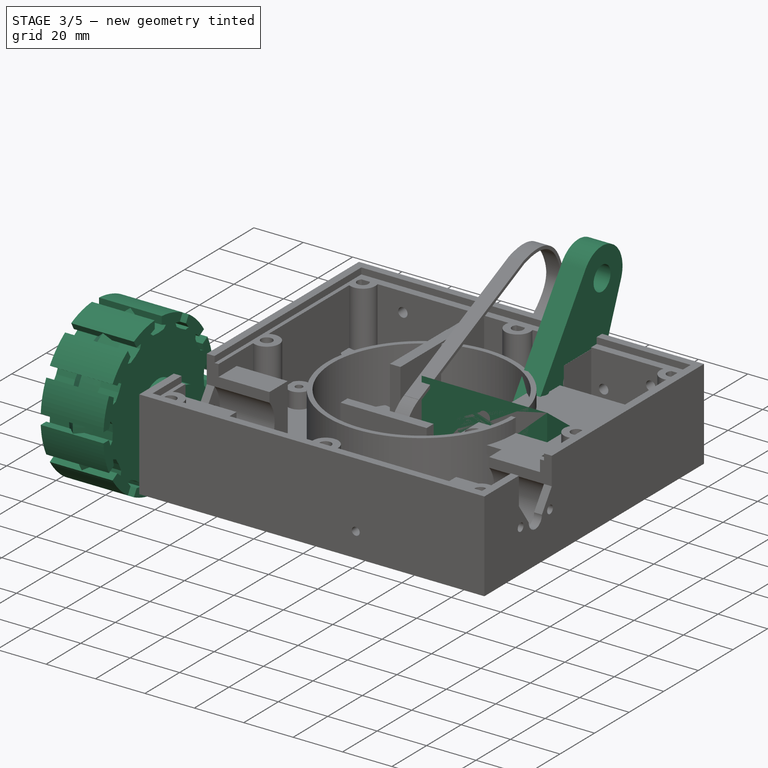
[diagram: stage 3 of 5 — iso view after this stage's code; geometry added in this stage tinted green]
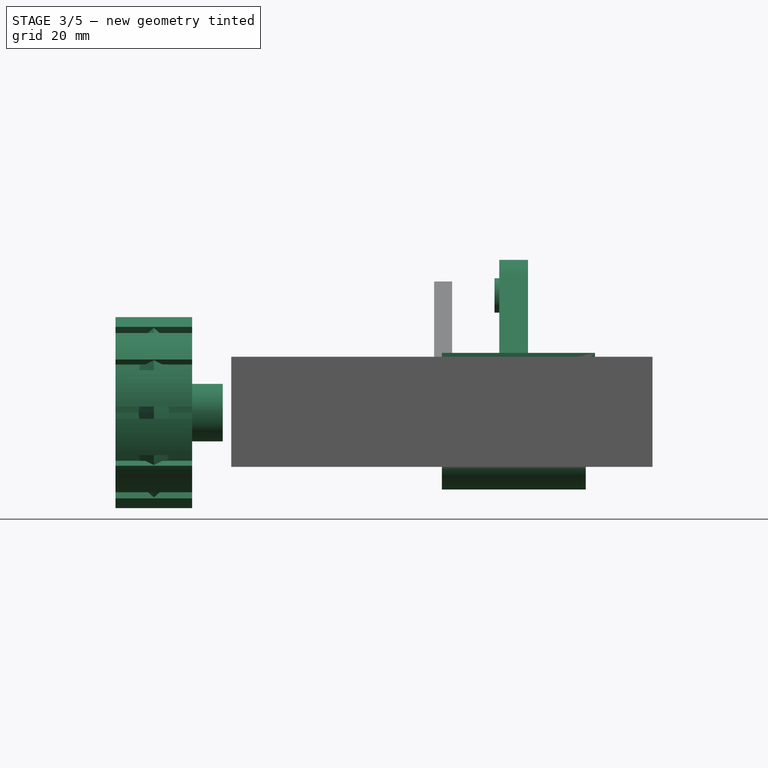
[diagram: stage 3 of 5 — front view after this stage's code; geometry added in this stage tinted green]
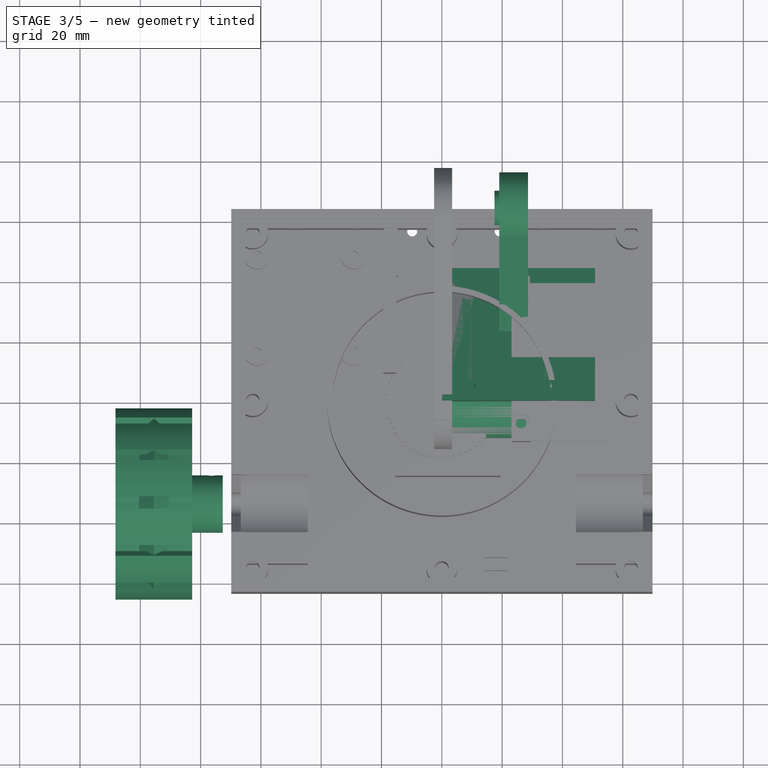
[diagram: stage 3 of 5 — top view after this stage's code; geometry added in this stage tinted green]
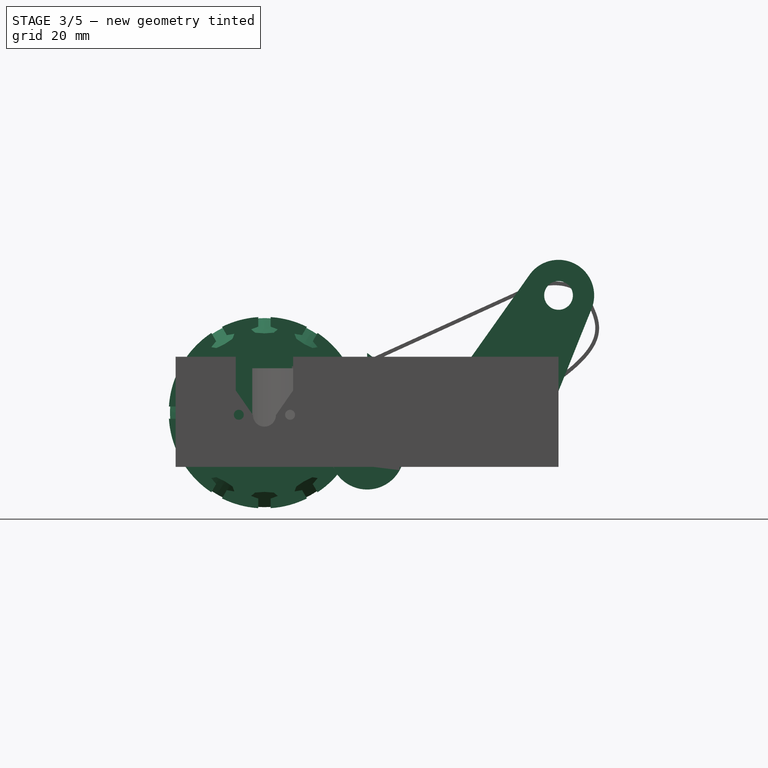
[diagram: stage 3 of 5 — right view after this stage's code; geometry added in this stage tinted green]
FEATURE [Sketcher::SketchObject] Sketch024
  AttachmentOffset = pos=(0,0,19.05) rot=(0,0,1;0rad)
  AttachmentSupport = -> [YZ_Plane005]
  FullyConstrained = true
  MapMode = 5
  Placement = pos=(19.05,0,0) rot=(0.57735,0.57735,0.57735;2.0944rad)
  sketch-geometry (6):
    g0: LineSegment StartX=12.1259 StartY=0 StartZ=0 EndX=53.8633 EndY=58.8989 EndZ=0
    g1: LineSegment StartX=74.4593 StartY=47.6663 StartZ=0 EndX=55.3059 EndY=0 EndZ=0
    g2: LineSegment StartX=55.3059 StartY=0 StartZ=0 EndX=12.1259 EndY=0 EndZ=0
    g3: Circle CenterX=63.5 CenterY=52.07 CenterZ=0 NormalX=0 NormalY=0 NormalZ=1 AngleXU=0 Radius=38.1
    g4: ArcOfCircle CenterX=63.5 CenterY=52.07 CenterZ=0 NormalX=0 NormalY=0 NormalZ=1 AngleXU=0 Radius=11.811 StartAngle=5.90111 EndAngle=8.80828
    g5: Circle CenterX=63.5 CenterY=52.07 CenterZ=0 NormalX=0 NormalY=0 NormalZ=1 AngleXU=0 Radius=4.8895
  constraints (15):
    c: PointOnObject(g0,g-1)
    c: PointOnObject(g1,g-1)
    c: Coincident(g1,g2)
    c: Coincident(g2,g0)
    c: Diameter(g3) = 76.2
    c: Coincident(g3,g4)
    c: Tangent(g4,g1) = 1.5708
    c: Tangent(g4,g0) = 1.5708
    c: Coincident(g5,g4)
    c: Diameter(g5) = 9.779
    c: DistanceY(g-1,g4) = 52.07
    c: DistanceX(g0) = 12.1259
    c: DistanceX(g4) = 63.5
    c: Diameter(g4) = 23.622
    c: DistanceX(g2,g2) = 43.18
FEATURE [PartDesign::Plane] DatumPlane
  Length = 59.9999
  MapMode = 49
  Placement = pos=(0,0,0) rot=(0.57735,0.57735,0.57735;2.0944rad)
  ResizeMode = 0
  Width = 59.9999
FEATURE [PartDesign::Pad] Pad013  label="weapon_mount"
  Direction = (1,-2e-16,3e-16)
  Length = 9.525
  Length2 = 10
  Placement = pos=(0,0,0) rot=(0.57735,0.57735,0.57735;2.0944rad)
  Profile = -> Sketch024
  ReferenceAxis = -> Sketch024 [N_Axis]
  Suppressed = false
  Type = 0
FEATURE [PartDesign::Body] Body007  label="weapon001"
  Group = -> [Sketch026,Pad015,Sketch031,Pocket010]
  Origin = -> Origin007
  Placement = pos=(0,67.056,52.07) rot=(0,0,1;0rad)
  Tip = -> Pocket010
FEATURE [Part::Feature] weapon_pulley_28T001_solid  label="weapon_pulley_28T001 (Solid)"
  shape: bbox 57.33 x 57.33 x 14.5 mm, 5616 faces (baked)
FEATURE [Sketcher::SketchObject] Sketch034
  AttachmentSupport = -> [Pad013]
  ExternalGeometry = -> [Pad013]
  FullyConstrained = false
  MapMode = 5
  Placement = pos=(19.05,-3.4e-15,3.4e-15) rot=(0.57735,0.57735,-0.57735;4.18879rad)
  sketch-geometry (2):
    g0: Circle CenterX=63.5 CenterY=-52.07 CenterZ=0 NormalX=0 NormalY=0 NormalZ=1 AngleXU=0 Radius=4.7625
    g1: Circle CenterX=63.5 CenterY=-52.07 CenterZ=0 NormalX=0 NormalY=0 NormalZ=1 AngleXU=0 Radius=5.715
  constraints (3):
    c: Coincident(g0,g-3)
    c: Coincident(g1,g0)
    c: Diameter(g1) = 11.43
FEATURE [PartDesign::Pad] Pad018  label="bearing-standoff"
  BaseFeature = -> Pad013
  Direction = (-1,7e-16,-3e-16)
  Length = 1.587
  Length2 = 10
  Placement = pos=(0,0,0) rot=(0.57735,0.57735,0.57735;2.0944rad)
  Profile = -> Sketch034
  ReferenceAxis = -> Sketch034 [N_Axis]
  Suppressed = false
  Type = 0
FEATURE [Sketcher::SketchObject] Sketch035
  AttachmentSupport = -> [Pad018]
  ExternalGeometry = -> [Pad018]
  FullyConstrained = false
  MapMode = 5
  Placement = pos=(0,0,-1.3e-15) rot=(0.707107,0.707107,0;3.14159rad)
  expr: Constraints[1] = <<Spreadsheet>>.m3_nut_diameter
  sketch-geometry (3):
    g0: Circle CenterX=24.86 CenterY=23.8125 CenterZ=0 NormalX=0 NormalY=0 NormalZ=1 AngleXU=0 Radius=2.286
    g1: Circle CenterX=49.0149 CenterY=23.8125 CenterZ=0 NormalX=0 NormalY=0 NormalZ=1 AngleXU=0 Radius=2.286
    g2: LineSegment StartX=11.5251 StartY=23.8125 StartZ=0 EndX=58.3276 EndY=23.8125 EndZ=0
  constraints (5):
    c: Horizontal(g1,g0)
    c: Diameter(g0) = 4.572
    c: Equal(g1,g0)
    c: Symmetric(g-4,g-3,g2)
    c: PointOnObject(g1,g2)
FEATURE [PartDesign::Pocket] Pocket013  label="insert_nut-bottom"
  BaseFeature = -> Pad018
  Direction = (-7e-16,7e-16,1)
  Length = 4.318
  Length2 = 5
  Placement = pos=(0,0,0) rot=(0.57735,0.57735,0.57735;2.0944rad)
  Profile = -> Sketch035
  ReferenceAxis = -> Sketch035 [N_Axis]
  Suppressed = false
  Type = 0
  expr: Length = <<Spreadsheet>>.m3_nut_depth
FEATURE [PartDesign::Body] Body015  label="weapon-pulley"
  BaseFeature = -> driven_pulley_n70001_solid
  Group = -> [BaseFeature,Sketch037,Pocket015,Sketch038,Pocket016]
  Origin = -> Origin015
  Placement = pos=(11.176,65.532,50.8) rot=(0.707107,0,-0.707107;3.14159rad)
  Tip = -> Pocket016
FEATURE [Sketcher::SketchObject] Sketch058
  AttachmentSupport = -> [YZ_Plane021]
  FullyConstrained = true
  MapMode = 5
  Placement = pos=(0,0,0) rot=(0.57735,0.57735,0.57735;2.0944rad)
  sketch-geometry (1):
    g0: Circle CenterX=0 CenterY=0 CenterZ=0 NormalX=0 NormalY=0 NormalZ=1 AngleXU=0 Radius=12.2936
  constraints (2):
    c: Coincident(g0,g-1)
    c: Diameter(g0) = 24.5872
FEATURE [PartDesign::Pad] Pad026  label="barrel"
  Direction = (1,-2e-16,3e-16)
  Length = 47.752
  Length2 = 10
  Placement = pos=(0,0,0) rot=(0.57735,0.57735,0.57735;2.0944rad)
  Profile = -> Sketch058
  ReferenceAxis = -> Sketch058 [N_Axis]
  Suppressed = false
  Type = 0
FEATURE [PartDesign::Body] Body021  label="drive-motor"
  Group = -> [Sketch058,Pad026,Sketch059,Pad027,Sketch062,Pad029]
  Origin = -> Origin021
  Placement = pos=(-66.548,-34.036,12.446) rot=(0,0,1;0rad)
  Tip = -> Pad029
FEATURE [Sketcher::SketchObject] Sketch065
  AttachmentSupport = -> [YZ_Plane023]
  FullyConstrained = true
  MapMode = 5
  Placement = pos=(0,0,0) rot=(0.57735,0.57735,0.57735;2.0944rad)
  sketch-geometry (3):
    g0: LineSegment StartX=0 StartY=0 StartZ=0 EndX=0 EndY=33.02 EndZ=0
    g1: LineSegment StartX=0 StartY=33.02 StartZ=0 EndX=44.45 EndY=0 EndZ=0
    g2: LineSegment StartX=44.45 StartY=0 StartZ=0 EndX=0 EndY=0 EndZ=0
  constraints (9):
    c: Coincident(g-1,g0)
    c: PointOnObject(g0,g-2)
    c: Coincident(g0,g1)
    c: PointOnObject(g1,g-1)
    c: Coincident(g1,g2)
    c: Coincident(g2,g0)
    c: DistanceY(g0,g0) = 33.02
    c: DistanceX(g2,g2) = 44.45
    c: Angle(g1,g-1) = 0.638914
FEATURE [PartDesign::Pad] Pad031
  Direction = (1,-2e-16,3e-16)
  Length = 50.8
  Length2 = 10
  Placement = pos=(0,0,0) rot=(0.57735,0.57735,0.57735;2.0944rad)
  Profile = -> Sketch065
  ReferenceAxis = -> Sketch065 [N_Axis]
  Suppressed = false
  Type = 0
FEATURE [Sketcher::SketchObject] Sketch066
  AttachmentSupport = -> [Pad031]
  ExternalGeometry = -> [Pad031]
  FullyConstrained = true
  MapMode = 5
  Placement = pos=(0,0,0) rot=(0.57735,0.57735,-0.57735;2.0944rad)
  expr: Constraints[1] = <<Spreadsheet>>.m3_nut_diameter
  sketch-geometry (2):
    g0: Circle CenterX=-24.638 CenterY=18.415 CenterZ=0 NormalX=0 NormalY=0 NormalZ=1 AngleXU=0 Radius=2.286
    g1: Circle CenterX=-18.288 CenterY=37.465 CenterZ=0 NormalX=0 NormalY=0 NormalZ=1 AngleXU=0 Radius=2.286
  constraints (6):
    c: Equal(g1,g0)
    c: Diameter(g0) = 4.572
    c: DistanceX(g0,g1) = 6.35
    c: DistanceY(g0,g1) = 19.05
    c: DistanceX(g1,g-1) = 18.288
    c: DistanceY(g1,g-3) = 13.335
FEATURE [PartDesign::Pocket] Pocket030  label="mounting-holes"
  BaseFeature = -> Pad031
  Direction = (3e-16,1,-1e-16)
  Length = 5.08
  Length2 = 5
  Placement = pos=(0,0,0) rot=(0.57735,0.57735,0.57735;2.0944rad)
  Profile = -> Sketch066
  ReferenceAxis = -> Sketch066 [N_Axis]
  Suppressed = false
  Type = 0
FEATURE [Sketcher::SketchObject] Sketch067
  AttachmentSupport = -> [YZ_Plane023]
  FullyConstrained = true
  MapMode = 5
  Placement = pos=(0,0,0) rot=(0.57735,0.57735,0.57735;2.0944rad)
  sketch-geometry (3):
    g0: LineSegment StartX=0 StartY=0 StartZ=0 EndX=0 EndY=33.02 EndZ=0
    g1: LineSegment StartX=0 StartY=33.02 StartZ=0 EndX=44.45 EndY=0 EndZ=0
    g2: LineSegment StartX=44.45 StartY=0 StartZ=0 EndX=0 EndY=0 EndZ=0
  constraints (8):
    c: Coincident(g-1,g0)
    c: PointOnObject(g0,g-2)
    c: Coincident(g0,g1)
    c: PointOnObject(g1,g-1)
    c: Coincident(g1,g2)
    c: Coincident(g2,g0)
    c: DistanceY(g0,g0) = 33.02
    c: DistanceX(g2,g2) = 44.45
FEATURE [PartDesign::Pad] Pad032
  Direction = (1,-2e-16,3e-16)
  Length = 43.18
  Length2 = 10
  Placement = pos=(0,0,0) rot=(0.57735,0.57735,0.57735;2.0944rad)
  Profile = -> Sketch067
  ReferenceAxis = -> Sketch067 [N_Axis]
  Suppressed = false
  Type = 0
FEATURE [Sketcher::SketchObject] Sketch068
  AttachmentSupport = -> [Pad032]
  ExternalGeometry = -> [Pad032]
  FullyConstrained = true
  MapMode = 5
  Placement = pos=(0,0,0) rot=(0.57735,0.57735,-0.57735;2.0944rad)
  expr: Constraints[1] = <<Spreadsheet>>.m3_nut_diameter
  sketch-geometry (2):
    g0: Circle CenterX=-18.288 CenterY=12.7 CenterZ=0 NormalX=0 NormalY=0 NormalZ=1 AngleXU=0 Radius=2.286
    g1: Circle CenterX=-24.638 CenterY=25.4 CenterZ=0 NormalX=0 NormalY=0 NormalZ=1 AngleXU=0 Radius=2.286
  constraints (6):
    c: Equal(g1,g0)
    c: Diameter(g0) = 4.572
    c: DistanceY(g0,g1) = 12.7
    c: DistanceY(g1,g-3) = 17.78
    c: DistanceX(g0,g-1) = 18.288
    c: DistanceX(g1,g0) = 6.35
FEATURE [PartDesign::Pocket] Pocket031  label="mount-holes"
  BaseFeature = -> Pad032
  Direction = (3e-16,1,-1e-16)
  Length = 5.08
  Length2 = 5
  Placement = pos=(0,0,0) rot=(0.57735,0.57735,0.57735;2.0944rad)
  Profile = -> Sketch068
  ReferenceAxis = -> Sketch068 [N_Axis]
  Suppressed = false
  Type = 0
FEATURE [Sketcher::SketchObject] Sketch069
  AttachmentSupport = -> [Pocket031]
  ExternalGeometry = -> [Pocket031]
  FullyConstrained = true
  MapMode = 5
  Placement = pos=(1.1e-15,15.8065,21.278) rot=(-0.299623,-0.299623,-0.905788;1.66959rad)
  expr: Constraints[3] = <<Spreadsheet>>.m3_nut_diameter
  sketch-geometry (8):
    g0: Circle CenterX=13.3406 CenterY=34.29 CenterZ=0 NormalX=0 NormalY=0 NormalZ=1 AngleXU=0 Radius=2.286
    g1: Circle CenterX=13.3406 CenterY=8.89 CenterZ=0 NormalX=0 NormalY=0 NormalZ=1 AngleXU=0 Radius=2.286
    g2: Circle CenterX=-24.7594 CenterY=34.29 CenterZ=0 NormalX=0 NormalY=0 NormalZ=1 AngleXU=0 Radius=2.286
    g3: Circle CenterX=-24.7594 CenterY=8.89 CenterZ=0 NormalX=0 NormalY=0 NormalZ=1 AngleXU=0 Radius=2.286
    g4: LineSegment StartX=13.3406 StartY=8.89 StartZ=0 EndX=-24.7594 EndY=8.89 EndZ=0
    g5: LineSegment StartX=-24.7594 StartY=8.89 StartZ=0 EndX=-24.7594 EndY=34.29 EndZ=0
    g6: LineSegment StartX=-24.7594 StartY=34.29 StartZ=0 EndX=13.3406 EndY=34.29 EndZ=0
    g7: LineSegment StartX=13.3406 StartY=34.29 StartZ=0 EndX=13.3406 EndY=8.89 EndZ=0
  constraints (21):
    c: Equal(g3,g1)
    c: Equal(g1,g0)
    c: Equal(g0,g2)
    c: Diameter(g0) = 4.572
    c: Coincident(g4,g5)
    c: Coincident(g5,g6)
    c: Coincident(g6,g7)
    c: Coincident(g7,g4)
    c: Horizontal(g4)
    c: Horizontal(g6)
    c: Vertical(g5)
    c: Vertical(g7)
    c: DistanceX(g4,g4) = 38.1
    c: DistanceY(g7,g7) = 25.4
    c: Coincident(g1,g4)
    c: Coincident(g3,g4)
    c: Coincident(g2,g5)
    c: Coincident(g0,g6)
    c: DistanceY(g0,g-4) = 8.89
    c: DistanceY(g-4,g1) = 8.89
    c: DistanceX(g0,g-4) = 6.35
FEATURE [PartDesign::Pocket] Pocket032  label="armor-attach-holes"
  BaseFeature = -> Pocket031
  Direction = (-1e-16,-0.596324,-0.802744)
  Length = 4.318
  Length2 = 5
  Placement = pos=(0,0,0) rot=(0.57735,0.57735,0.57735;2.0944rad)
  Profile = -> Sketch069
  ReferenceAxis = -> Sketch069 [N_Axis]
  Suppressed = false
  Type = 0
  expr: Length = <<Spreadsheet>>.m3_nut_depth
FEATURE [Sketcher::SketchObject] Sketch070
  AttachmentSupport = -> [Pocket030]
  ExternalGeometry = -> [Pocket030]
  FullyConstrained = true
  MapMode = 5
  Placement = pos=(1.1e-15,15.8065,21.278) rot=(-0.299623,-0.299623,-0.905788;1.66959rad)
  expr: Constraints[17] = <<Spreadsheet>>.m3_nut_diameter
  sketch-geometry (8):
    g0: LineSegment StartX=-24.7594 StartY=38.1 StartZ=0 EndX=13.3406 EndY=38.1 EndZ=0
    g1: LineSegment StartX=13.3406 StartY=38.1 StartZ=0 EndX=13.3406 EndY=12.7 EndZ=0
    g2: LineSegment StartX=13.3406 StartY=12.7 StartZ=0 EndX=-24.7594 EndY=12.7 EndZ=0
    g3: LineSegment StartX=-24.7594 StartY=12.7 StartZ=0 EndX=-24.7594 EndY=38.1 EndZ=0
    g4: Circle CenterX=-24.7594 CenterY=38.1 CenterZ=0 NormalX=0 NormalY=0 NormalZ=1 AngleXU=0 Radius=2.286
    g5: Circle CenterX=13.3406 CenterY=38.1 CenterZ=0 NormalX=0 NormalY=0 NormalZ=1 AngleXU=0 Radius=2.286
    g6: Circle CenterX=13.3406 CenterY=12.7 CenterZ=0 NormalX=0 NormalY=0 NormalZ=1 AngleXU=0 Radius=2.286
    g7: Circle CenterX=-24.7594 CenterY=12.7 CenterZ=0 NormalX=0 NormalY=0 NormalZ=1 AngleXU=0 Radius=2.286
  constraints (21):
    c: Coincident(g0,g1)
    c: Coincident(g1,g2)
    c: Coincident(g2,g3)
    c: Coincident(g3,g0)
    c: Horizontal(g0)
    c: Horizontal(g2)
    c: Vertical(g1)
    c: Vertical(g3)
    c: DistanceX(g0,g0) = 38.1
    c: DistanceY(g3,g3) = 25.4
    c: Coincident(g4,g0)
    c: Coincident(g5,g0)
    c: Coincident(g6,g1)
    c: Coincident(g7,g2)
    c: Equal(g4,g5)
    c: Equal(g5,g6)
    c: Equal(g6,g7)
    c: Diameter(g4) = 4.572
    c: DistanceY(g5,g-4) = 12.7
    c: DistanceX(g5,g-4) = 6.35
    c: DistanceY(g-4,g6) = 12.7
FEATURE [PartDesign::Pocket] Pocket033  label="armor-holes"
  BaseFeature = -> Pocket030
  Direction = (-1e-16,-0.596324,-0.802744)
  Length = 4.318
  Length2 = 5
  Placement = pos=(0,0,0) rot=(0.57735,0.57735,0.57735;2.0944rad)
  Profile = -> Sketch070
  ReferenceAxis = -> Sketch070 [N_Axis]
  Suppressed = false
  Type = 0
  expr: Length = <<Spreadsheet>>.m3_nut_depth
FEATURE [Sketcher::SketchObject] Sketch073
  FullyConstrained = true
  MapMode = 5
  Placement = pos=(28.575,-3.1e-14,1.8e-14) rot=(0.57735,0.57735,0.57735;2.0944rad)
  expr: Constraints[0] = <<Spreadsheet>>.m3_nut_diameter
  sketch-geometry (1):
    g0: Circle CenterX=43.18 CenterY=22.225 CenterZ=0 NormalX=0 NormalY=0 NormalZ=1 AngleXU=0 Radius=2.286
  constraints (3):
    c: Diameter(g0) = 4.572
    c: DistanceX(g0) = 43.18
    c: DistanceY(g0) = 22.225
FEATURE [PartDesign::Pocket] Pocket035  label="side-mount"
  BaseFeature = -> Pocket013
  Direction = (-1,1.1e-15,-7e-16)
  Length = 4.318
  Length2 = 5
  Placement = pos=(0,0,0) rot=(0.57735,0.57735,0.57735;2.0944rad)
  Profile = -> Sketch073
  ReferenceAxis = -> Sketch073 [N_Axis]
  Suppressed = false
  Type = 0
  expr: Length = <<Spreadsheet>>.m3_nut_depth
FEATURE [Sketcher::SketchObject] Sketch081
  AttachmentSupport = -> [PolarPattern]
  ExternalGeometry = -> [PolarPattern]
  FullyConstrained = true
  MapMode = 5
  Placement = pos=(0,0,25.4) rot=(0,0,1;0rad)
  sketch-geometry (3):
    g0: Circle CenterX=0 CenterY=0 CenterZ=0 NormalX=0 NormalY=0 NormalZ=1 AngleXU=0 Radius=9.525
    g1: LineSegment StartX=-1.5875 StartY=1.36783 StartZ=0 EndX=1.5875 EndY=1.36783 EndZ=0
    g2: ArcOfCircle CenterX=0 CenterY=0 CenterZ=0 NormalX=0 NormalY=0 NormalZ=1 AngleXU=0 Radius=2.0955 StartAngle=2.43039 EndAngle=6.99439
  constraints (7):
    c: Coincident(g0,g-1)
    c: Coincident(g1,g-4)
    c: Coincident(g1,g-4)
    c: Coincident(g2,g0)
    c: Coincident(g2,g1)
    c: Coincident(g2,g1)
    c: Diameter(g0) = 19.05
FEATURE [PartDesign::Pad] Pad036  label="hub"
  BaseFeature = -> PolarPattern
  Direction = (0,0,1)
  Length = 10.16
  Length2 = 10
  Profile = -> Sketch081
  ReferenceAxis = -> Sketch081 [N_Axis]
  Suppressed = false
  Type = 0
FEATURE [PartDesign::Plane] DatumPlane001
  AttachmentSupport = -> [Pad036]
  Length = 75.7591
  MapMode = 5
  Placement = pos=(0,1.36783,0) rot=(1,0,0;1.5708rad)
  ResizeMode = 0
  Width = 72.9497
FEATURE [Sketcher::SketchObject] Sketch082
  AttachmentSupport = -> [DatumPlane001]
  FullyConstrained = true
  MapMode = 5
  Placement = pos=(0,1.36783,0) rot=(1,0,0;1.5708rad)
  sketch-geometry (1):
    g0: Circle CenterX=0 CenterY=31.75 CenterZ=0 NormalX=0 NormalY=0 NormalZ=1 AngleXU=0 Radius=1.7399
  constraints (3):
    c: PointOnObject(g0,g-2)
    c: DistanceY(g-1,g0) = 31.75
    c: Diameter(g0) = 3.4798
FEATURE [PartDesign::Pocket] Pocket001  label="setscrew-hole"
  BaseFeature = -> Pad036
  Direction = (0,1,-2e-16)
  Length = 11.43
  Length2 = 5
  Profile = -> Sketch082
  ReferenceAxis = -> Sketch082 [N_Axis]
  Suppressed = false
  Type = 0
FEATURE [Sketcher::SketchObject] Sketch083
  AttachmentSupport = -> [Pocket001]
  FullyConstrained = true
  MapMode = 5
  Placement = pos=(0,0,35.56) rot=(0,0,1;0rad)
  sketch-geometry (4):
    g0: LineSegment StartX=-2.794 StartY=5.588 StartZ=0 EndX=2.794 EndY=5.588 EndZ=0
    g1: LineSegment StartX=2.794 StartY=5.588 StartZ=0 EndX=2.794 EndY=3.175 EndZ=0
    g2: LineSegment StartX=2.794 StartY=3.175 StartZ=0 EndX=-2.794 EndY=3.175 EndZ=0
    g3: LineSegment StartX=-2.794 StartY=3.175 StartZ=0 EndX=-2.794 EndY=5.588 EndZ=0
  constraints (11):
    c: Coincident(g0,g1)
    c: Coincident(g1,g2)
    c: Coincident(g2,g3)
    c: Coincident(g3,g0)
    c: Horizontal(g2)
    c: Vertical(g1)
    c: Vertical(g3)
    c: DistanceX(g0,g0) = 5.588
    c: DistanceY(g1,g1) = 2.413
    c: Symmetric(g0,g0,g-2)
    c: DistanceY(g-1,g1) = 3.175
FEATURE [PartDesign::Pocket] Pocket002  label="recess-nut"
  BaseFeature = -> Pocket001
  Direction = (0,0,-1)
  Length = 8.89
  Length2 = 5
  Profile = -> Sketch083
  ReferenceAxis = -> Sketch083 [N_Axis]
  Suppressed = false
  Type = 0
FEATURE [Sketcher::SketchObject] Sketch008
  AttachmentSupport = -> [Pocket002]
  FullyConstrained = false
  MapMode = 5
  Placement = pos=(0,0,0) rot=(1,0,0;3.14159rad)
  sketch-geometry (1):
    g0: Circle CenterX=0 CenterY=0 CenterZ=0 NormalX=0 NormalY=0 NormalZ=1 AngleXU=0 Radius=4.70672
  constraints (1):
    c: Coincident(g0,g-1)
FEATURE [PartDesign::Pad] Pad037  label="close-outside"
  BaseFeature = -> Pocket002
  Direction = (0,0,-1)
  Length = 5.08
  Length2 = 10
  Profile = -> Sketch008
  ReferenceAxis = -> Sketch008 [N_Axis]
  Reversed = true
  Suppressed = false
  Type = 0
FEATURE [PartDesign::Body] Body026  label="retaining-feature"
  Group = -> [Sketch084,Revolution]
  Origin = -> Origin026
  Tip = -> Revolution
FEATURE [Part::MultiFuse] Fusion  label="wheel"
  Placement = pos=(-108.204,-34.036,13.208) rot=(0,1,0;1.5708rad)
  Shapes = -> [Body025,Body026]
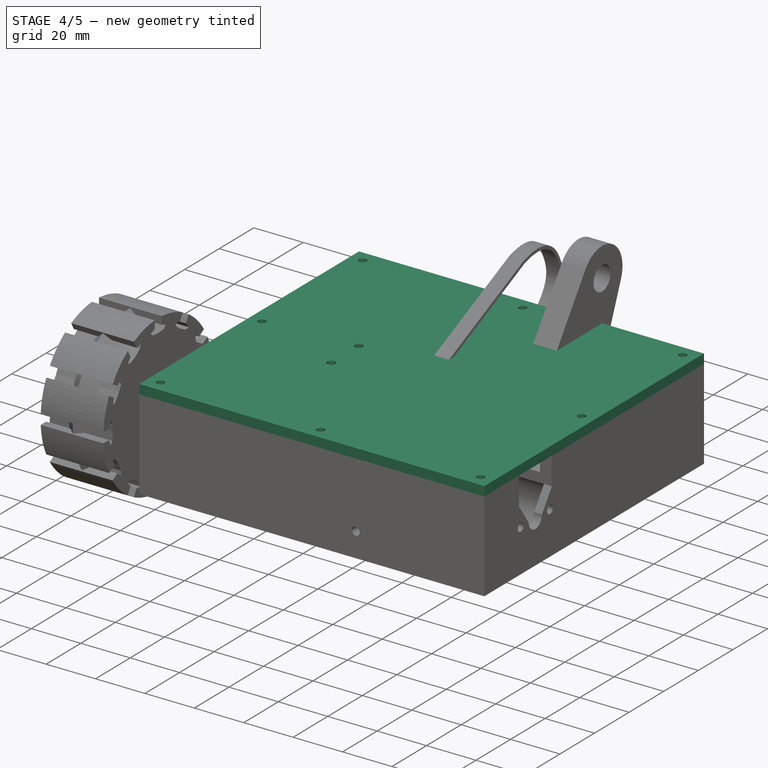
[diagram: stage 4 of 5 — iso view after this stage's code; geometry added in this stage tinted green]
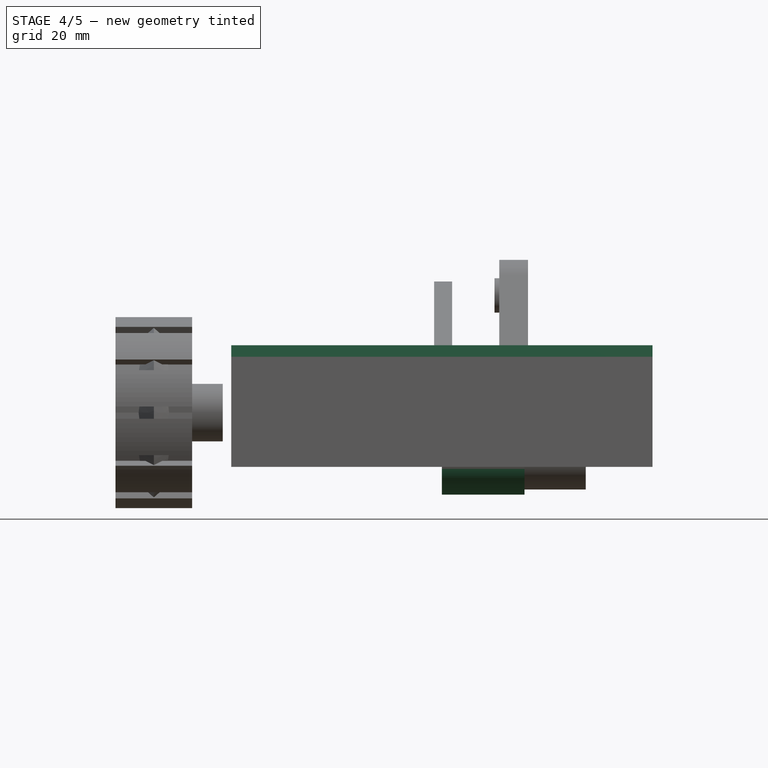
[diagram: stage 4 of 5 — front view after this stage's code; geometry added in this stage tinted green]
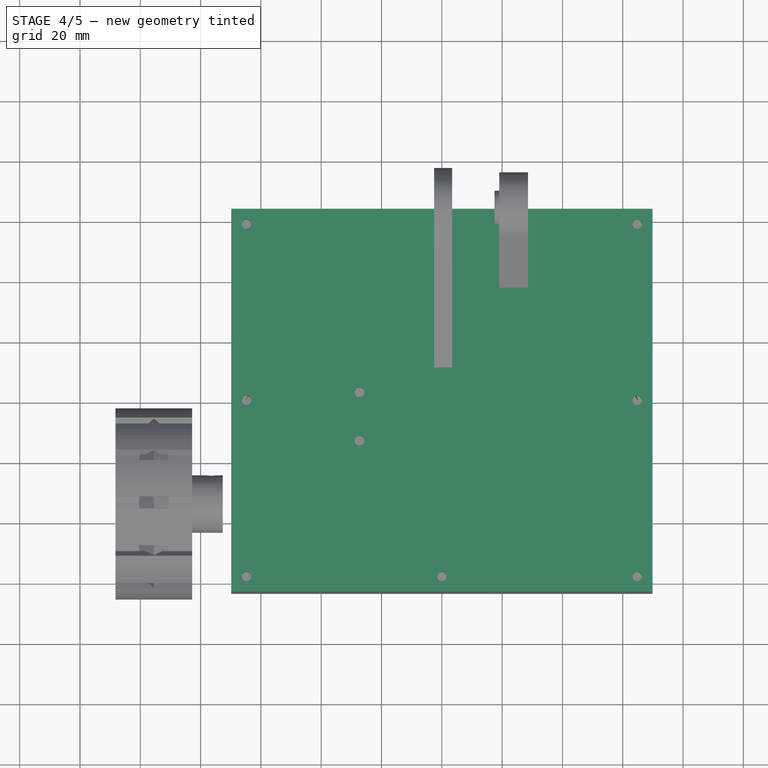
[diagram: stage 4 of 5 — top view after this stage's code; geometry added in this stage tinted green]
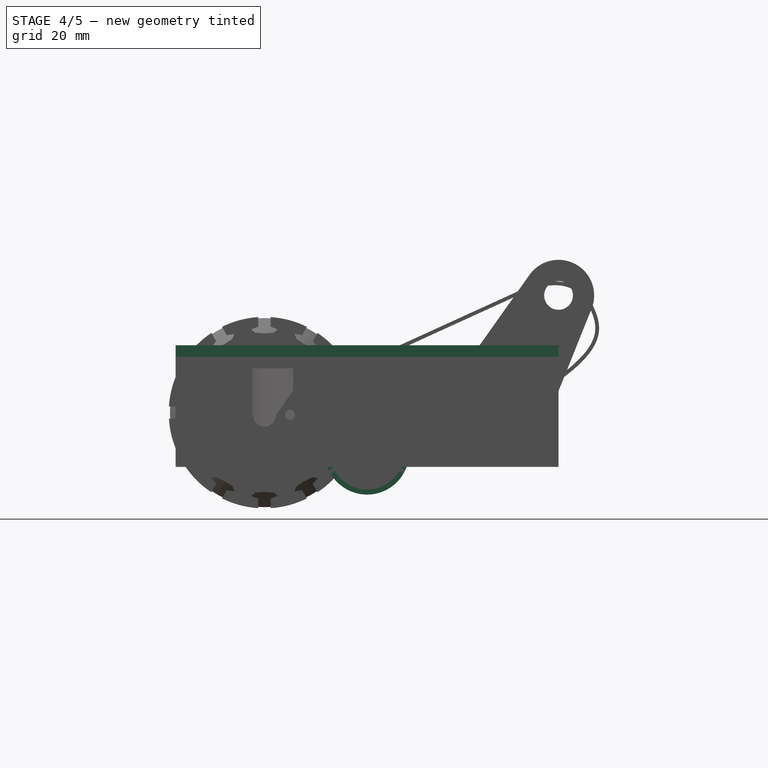
[diagram: stage 4 of 5 — right view after this stage's code; geometry added in this stage tinted green]
FEATURE [Sketcher::SketchObject] Sketch028
  AttachmentSupport = -> [YZ_Plane010]
  FullyConstrained = false
  MapMode = 5
  Placement = pos=(0,0,0) rot=(0.57735,0.57735,0.57735;2.0944rad)
  sketch-geometry (13):
    g0: LineSegment StartX=12.3825 StartY=0 StartZ=0 EndX=-12.3825 EndY=0 EndZ=0
    g1: LineSegment StartX=-12.3825 StartY=0 StartZ=0 EndX=-12.3825 EndY=29.464 EndZ=0
    g2: LineSegment StartX=-12.3825 StartY=29.464 StartZ=0 EndX=-1.4605 EndY=29.464 EndZ=0
    g3: LineSegment StartX=12.3825 StartY=29.464 StartZ=0 EndX=12.3825 EndY=0 EndZ=0
    g4: Circle CenterX=0 CenterY=24.003 CenterZ=0 NormalX=0 NormalY=0 NormalZ=1 AngleXU=0 Radius=1.75
    g5: Circle CenterX=8.0645 CenterY=14.478 CenterZ=0 NormalX=0 NormalY=0 NormalZ=1 AngleXU=0 Radius=1.75
    g6: Circle CenterX=0 CenterY=4.953 CenterZ=0 NormalX=0 NormalY=0 NormalZ=1 AngleXU=0 Radius=1.75
    g7: Circle CenterX=-8.0645 CenterY=14.478 CenterZ=0 NormalX=0 NormalY=0 NormalZ=1 AngleXU=0 Radius=1.75
    g8: LineSegment StartX=-27.7635 StartY=14.478 StartZ=0 EndX=22.2639 EndY=14.478 EndZ=0
    g9: Circle CenterX=0 CenterY=14.478 CenterZ=0 NormalX=0 NormalY=0 NormalZ=1 AngleXU=0 Radius=4.318
    g10: LineSegment StartX=1.4605 StartY=29.464 StartZ=0 EndX=0 EndY=29.0287 EndZ=0
    g11: LineSegment StartX=-1.4605 StartY=29.464 StartZ=0 EndX=0 EndY=29.0287 EndZ=0
    g12: LineSegment StartX=1.4605 StartY=29.464 StartZ=0 EndX=12.3825 EndY=29.464 EndZ=0
  constraints (35):
    c: Coincident(g0,g1)
    c: Coincident(g12,g3)
    c: Coincident(g3,g0)
    c: Horizontal(g2)
    c: Vertical(g1)
    c: Vertical(g3)
    c: PointOnObject(g0,g-1)
    c: Equal(g4,g5)
    c: Equal(g5,g6)
    c: Equal(g6,g7)
    c: DistanceY(g6,g4) = 19.05
    c: DistanceX(g7,g5) = 16.129
    c: Symmetric(g7,g5,g-2)
    c: Tangent(g6,g-2) = -1.5708
    c: Tangent(g4,g-2) = -1.5708
    c: Diameter(g5) = 3.5
    c: PointOnObject(g7,g8)
    c: Symmetric(g6,g4,g8)
    c: DistanceY(g-1,g8) = 14.478
    c: PointOnObject(g9,g8)
    c: PointOnObject(g9,g-2)
    c: Diameter(g9) = 8.636
    c: DistanceX(g0,g0) = 24.765
    c: Symmetric(g0,g0,g-2)
    c: DistanceY(g3,g3) = 29.464
    c: Coincident(g1,g2)
    c: PointOnObject(g10,g-2)
    c: Coincident(g10,g11)
    c: Equal(g11,g10)
    c: Coincident(g2,g11)
    c: Coincident(g12,g10)
    c: Equal(g12,g2)
    c: DistanceX(g2,g2) = 10.922
    c: Distance(g11) = 1.524
    c: Horizontal(g12)
FEATURE [PartDesign::Pad] Pad017  label="motor-holes"
  Direction = (1,0,0)
  Length = 6.35
  Length2 = 10
  Placement = pos=(0,0,0) rot=(0.57735,0.57735,0.57735;2.0944rad)
  Profile = -> Sketch028
  ReferenceAxis = -> Sketch028 [N_Axis]
  Reversed = true
  Suppressed = false
  Type = 0
FEATURE [Sketcher::SketchObject] Sketch036
  AttachmentSupport = -> [Pad017]
  ExternalGeometry = -> [Pad017,Sketch028]
  FullyConstrained = false
  MapMode = 5
  Placement = pos=(0,6.5e-15,29.464) rot=(0,0,-1;1.5708rad)
  sketch-geometry (3):
    g0: LineSegment StartX=-16.5667 StartY=-3.175 StartZ=0 EndX=20.3406 EndY=-3.175 EndZ=0
    g1: Circle CenterX=-8.0311 CenterY=-3.175 CenterZ=0 NormalX=0 NormalY=0 NormalZ=1 AngleXU=0 Radius=2
    g2: Circle CenterX=8.0311 CenterY=-3.175 CenterZ=0 NormalX=0 NormalY=0 NormalZ=1 AngleXU=0 Radius=2
  constraints (5):
    c: PointOnObject(g1,g0)
    c: Equal(g2,g1)
    c: Diameter(g1) = 4
    c: Symmetric(g1,g2,g-2)
    c: Symmetric(g-4,g-3,g0)
FEATURE [PartDesign::Pocket] Pocket014  label="bot-insert-nuts"
  BaseFeature = -> Pad017
  Direction = (0,0,-1)
  Length = 6.35
  Length2 = 5
  Placement = pos=(0,0,0) rot=(0.57735,0.57735,0.57735;2.0944rad)
  Profile = -> Sketch036
  ReferenceAxis = -> Sketch036 [N_Axis]
  Suppressed = false
  Type = 0
FEATURE [PartDesign::Body] Body016  label="drive-pulley-grey_motor"
  BaseFeature = -> drive_pulley_gt2001_solid
  Group = -> [BaseFeature003,Sketch040,Pocket017]
  Origin = -> Origin016
  Placement = pos=(11.43,-4.064,14.478) rot=(0.707107,0,-0.707107;3.14159rad)
  Tip = -> Pocket017
  expr: .Placement.Base.x = 0.45 in
FEATURE [Sketcher::SketchObject] Sketch041
  AttachmentSupport = -> [YZ_Plane017]
  FullyConstrained = true
  MapMode = 5
  Placement = pos=(0,0,0) rot=(0.57735,0.57735,0.57735;2.0944rad)
  sketch-geometry (1):
    g0: Circle CenterX=0 CenterY=0 CenterZ=0 NormalX=0 NormalY=0 NormalZ=1 AngleXU=0 Radius=13.97
  constraints (2):
    c: Coincident(g0,g-1)
    c: Diameter(g0) = 27.94
FEATURE [PartDesign::Pad] Pad019
  Direction = (1,-2e-16,3e-16)
  Length = 27.432
  Length2 = 10
  Placement = pos=(0,0,0) rot=(0.57735,0.57735,0.57735;2.0944rad)
  Profile = -> Sketch041
  ReferenceAxis = -> Sketch041 [N_Axis]
  Suppressed = false
  Type = 0
FEATURE [Sketcher::SketchObject] Sketch042
  AttachmentSupport = -> [Pad019]
  FullyConstrained = true
  MapMode = 5
  Placement = pos=(27.432,-6e-15,6e-15) rot=(0.57735,0.57735,0.57735;2.0944rad)
  sketch-geometry (1):
    g0: Circle CenterX=0 CenterY=0 CenterZ=0 NormalX=0 NormalY=0 NormalZ=1 AngleXU=0 Radius=4.445
  constraints (2):
    c: Coincident(g0,g-1)
    c: Diameter(g0) = 8.89
FEATURE [PartDesign::Pad] Pad020
  BaseFeature = -> Pad019
  Direction = (1,-4e-16,4e-16)
  Length = 1.778
  Length2 = 10
  Placement = pos=(0,0,0) rot=(0.57735,0.57735,0.57735;2.0944rad)
  Profile = -> Sketch042
  ReferenceAxis = -> Sketch042 [N_Axis]
  Suppressed = false
  Type = 0
FEATURE [Sketcher::SketchObject] Sketch043
  AttachmentSupport = -> [Pad020]
  FullyConstrained = true
  MapMode = 5
  Placement = pos=(29.21,-2.34e-14,1.34e-14) rot=(0.57735,0.57735,0.57735;2.0944rad)
  sketch-geometry (1):
    g0: Circle CenterX=0 CenterY=0 CenterZ=0 NormalX=0 NormalY=0 NormalZ=1 AngleXU=0 Radius=1.524
  constraints (2):
    c: Coincident(g0,g-1)
    c: Diameter(g0) = 3.048
FEATURE [PartDesign::Pad] Pad021
  BaseFeature = -> Pad020
  Direction = (1,-1.1e-15,7e-16)
  Length = 14.224
  Length2 = 10
  Placement = pos=(0,0,0) rot=(0.57735,0.57735,0.57735;2.0944rad)
  Profile = -> Sketch043
  ReferenceAxis = -> Sketch043 [N_Axis]
  Suppressed = false
  Type = 0
FEATURE [Sketcher::SketchObject] Sketch044
  AttachmentSupport = -> [Pad021]
  FullyConstrained = true
  MapMode = 5
  Placement = pos=(27.432,-6e-15,6e-15) rot=(0.57735,0.57735,0.57735;2.0944rad)
  sketch-geometry (4):
    g0: Circle CenterX=0 CenterY=5.842 CenterZ=0 NormalX=0 NormalY=0 NormalZ=1 AngleXU=0 Radius=0.8255
    g1: Circle CenterX=5.842 CenterY=0 CenterZ=0 NormalX=0 NormalY=0 NormalZ=1 AngleXU=0 Radius=0.8255
    g2: Circle CenterX=0 CenterY=-5.842 CenterZ=0 NormalX=0 NormalY=0 NormalZ=1 AngleXU=0 Radius=0.8255
    g3: Circle CenterX=-5.842 CenterY=0 CenterZ=0 NormalX=0 NormalY=0 NormalZ=1 AngleXU=0 Radius=0.8255
  constraints (10):
    c: PointOnObject(g0,g-2)
    c: PointOnObject(g1,g-1)
    c: Equal(g0,g3)
    c: Equal(g3,g2)
    c: Equal(g2,g1)
    c: Diameter(g1) = 1.651
    c: DistanceX(g-1,g1) = 5.842
    c: Symmetric(g1,g3,g-2)
    c: DistanceY(g-1,g0) = 5.842
    c: Symmetric(g0,g2,g-1)
FEATURE [PartDesign::Pocket] Pocket018
  BaseFeature = -> Pad021
  Direction = (-1,8e-16,-6e-16)
  Length = 5.08
  Length2 = 5
  Placement = pos=(0,0,0) rot=(0.57735,0.57735,0.57735;2.0944rad)
  Profile = -> Sketch044
  ReferenceAxis = -> Sketch044 [N_Axis]
  Suppressed = false
  Type = 0
FEATURE [Sketcher::SketchObject] Sketch045
  FullyConstrained = true
  Placement = pos=(0,0,31.75) rot=(0,0,1;0rad)
  sketch-geometry (4):
    g0: LineSegment StartX=-69.85 StartY=63.5 StartZ=0 EndX=69.85 EndY=63.5 EndZ=0
    g1: LineSegment StartX=69.85 StartY=63.5 StartZ=0 EndX=69.85 EndY=-63.5 EndZ=0
    g2: LineSegment StartX=69.85 StartY=-63.5 StartZ=0 EndX=-69.85 EndY=-63.5 EndZ=0
    g3: LineSegment StartX=-69.85 StartY=-63.5 StartZ=0 EndX=-69.85 EndY=63.5 EndZ=0
  constraints (11):
    c: Coincident(g0,g1)
    c: Coincident(g1,g2)
    c: Coincident(g2,g3)
    c: Coincident(g3,g0)
    c: Horizontal(g0)
    c: Horizontal(g2)
    c: Vertical(g1)
    c: Vertical(g3)
    c: Symmetric(g0,g2,g-1)
    c: DistanceY(g1,g1) = 127
    c: DistanceX(g2,g2) = 139.7
FEATURE [PartDesign::Pad] Pad022  label="upper-pad"
  Direction = (0,0,1)
  Length = 3.81
  Length2 = 10
  Placement = pos=(0,0,31.75) rot=(0,0,1;0rad)
  Profile = -> Sketch045
  ReferenceAxis = -> Sketch045 [N_Axis]
  Suppressed = false
  Type = 0
FEATURE [Sketcher::SketchObject] Sketch046
  AttachmentSupport = -> [Pad022]
  FullyConstrained = true
  MapMode = 5
  Placement = pos=(0,0,31.75) rot=(1,0,0;3.14159rad)
  sketch-geometry (4):
    g0: LineSegment StartX=-66.548 StartY=60.198 StartZ=0 EndX=66.548 EndY=60.198 EndZ=0
    g1: LineSegment StartX=66.548 StartY=60.198 StartZ=0 EndX=66.548 EndY=-60.198 EndZ=0
    g2: LineSegment StartX=66.548 StartY=-60.198 StartZ=0 EndX=-66.548 EndY=-60.198 EndZ=0
    g3: LineSegment StartX=-66.548 StartY=-60.198 StartZ=0 EndX=-66.548 EndY=60.198 EndZ=0
  constraints (11):
    c: Coincident(g0,g1)
    c: Coincident(g1,g2)
    c: Coincident(g2,g3)
    c: Coincident(g3,g0)
    c: Horizontal(g0)
    c: Horizontal(g2)
    c: Vertical(g1)
    c: Vertical(g3)
    c: Symmetric(g0,g1,g-1)
    c: DistanceX(g0,g0) = 133.096
    c: DistanceY(g3,g3) = 120.396
FEATURE [PartDesign::Pad] Pad023  label="secondary-extrusion"
  BaseFeature = -> Pad022
  Direction = (0,0,-1)
  Length = 2.16
  Length2 = 10
  Placement = pos=(0,0,31.75) rot=(0,0,1;0rad)
  Profile = -> Sketch046
  ReferenceAxis = -> Sketch046 [N_Axis]
  Suppressed = false
  Type = 0
FEATURE [Sketcher::SketchObject] Sketch013  label="cover-holes"
  AttachmentSupport = -> [Pad023]
  FullyConstrained = false
  MapMode = 5
  Placement = pos=(0,0,35.56) rot=(0,0,1;0rad)
  sketch-geometry (18):
    g0: LineSegment StartX=-70.1798 StartY=63.1249 StartZ=0 EndX=70.1798 EndY=63.1249 EndZ=0
    g1: LineSegment StartX=70.1798 StartY=63.1249 StartZ=0 EndX=70.1798 EndY=-63.1249 EndZ=0
    g2: LineSegment StartX=70.1798 StartY=-63.1249 StartZ=0 EndX=-70.1798 EndY=-63.1249 EndZ=0
    g3: LineSegment StartX=-70.1798 StartY=-63.1249 StartZ=0 EndX=-70.1798 EndY=63.1249 EndZ=0
    g4: Circle CenterX=64.7827 CenterY=58.42 CenterZ=0 NormalX=0 NormalY=0 NormalZ=1 AngleXU=0 Radius=1.5621
    g5: Circle CenterX=64.7827 CenterY=0 CenterZ=0 NormalX=0 NormalY=0 NormalZ=1 AngleXU=0 Radius=1.5621
    g6: Circle CenterX=64.7827 CenterY=-58.42 CenterZ=0 NormalX=0 NormalY=0 NormalZ=1 AngleXU=0 Radius=1.5621
    g7: LineSegment StartX=64.7827 StartY=58.42 StartZ=0 EndX=-64.7827 EndY=58.42 EndZ=0
    g8: LineSegment StartX=-64.7827 StartY=58.42 StartZ=0 EndX=-64.7827 EndY=-58.42 EndZ=0
    g9: LineSegment StartX=-64.7827 StartY=-58.42 StartZ=0 EndX=64.7827 EndY=-58.42 EndZ=0
    g10: LineSegment StartX=64.7827 StartY=-58.42 StartZ=0 EndX=64.7827 EndY=58.42 EndZ=0
    g11: Circle CenterX=0 CenterY=58.42 CenterZ=0 NormalX=0 NormalY=0 NormalZ=1 AngleXU=0 Radius=1.5621
    g12: Circle CenterX=-64.7827 CenterY=58.42 CenterZ=0 NormalX=0 NormalY=0 NormalZ=1 AngleXU=0 Radius=1.5621
    g13: Circle CenterX=-64.7827 CenterY=0.043989 CenterZ=0 NormalX=0 NormalY=0 NormalZ=1 AngleXU=0 Radius=1.5621
    g14: Circle CenterX=-64.7827 CenterY=-58.42 CenterZ=0 NormalX=0 NormalY=0 NormalZ=1 AngleXU=0 Radius=1.5621
    g15: Circle CenterX=0 CenterY=-58.42 CenterZ=0 NormalX=0 NormalY=0 NormalZ=1 AngleXU=0 Radius=1.5621
    g16: Circle CenterX=-27.3131 CenterY=2.67693 CenterZ=0 NormalX=0 NormalY=0 NormalZ=1 AngleXU=0 Radius=1.651
    g17: Circle CenterX=-27.3131 CenterY=-13.3251 CenterZ=0 NormalX=0 NormalY=0 NormalZ=1 AngleXU=0 Radius=1.651
  constraints (42):
    c: Coincident(g0,g1)
    c: Coincident(g1,g2)
    c: Coincident(g2,g3)
    c: Coincident(g3,g0)
    c: Horizontal(g0)
    c: Horizontal(g2)
    c: Vertical(g1)
    c: Vertical(g3)
    c: Symmetric(g1,g0,g-1)
    c: PointOnObject(g5,g-1)
    c: Coincident(g7,g8)
    c: Coincident(g8,g9)
    c: Coincident(g9,g10)
    c: Coincident(g10,g7)
    c: Horizontal(g7)
    c: Horizontal(g9)
    c: Vertical(g8)
    c: Vertical(g10)
    c: Coincident(g7,g4)
    c: PointOnObject(g11,g7)
    c: Coincident(g12,g7)
    c: PointOnObject(g13,g8)
    c: Coincident(g14,g8)
    c: PointOnObject(g15,g9)
    c: PointOnObject(g15,g-2)
    c: Equal(g4,g11)
    c: Equal(g11,g12)
    c: Equal(g12,g13)
    c: Equal(g13,g14)
    c: Equal(g14,g15)
    c: Equal(g15,g6)
    c: Equal(g6,g5)
    c: Symmetric(g14,g4,g-1)
    c: PointOnObject(g11,g-2)
    c: PointOnObject(g5,g10)
    c: Coincident(g6,g9)
    c: Diameter(g4) = 3.1242
    c: Equal(g17,g16)
    c: DistanceY(g17,g16) = 16.002
    c: Diameter(g16) = 3.302
    c: DistanceY(g10,g10) = 116.84
    c: Vertical(g17,g16)
FEATURE [PartDesign::Pocket] Pocket019  label="cover-holes001"
  BaseFeature = -> Pad023
  Direction = (0,0,-1)
  Length = 5.08
  Length2 = 5
  Placement = pos=(0,0,31.75) rot=(0,0,1;0rad)
  Profile = -> Sketch013
  ReferenceAxis = -> Sketch013 [N_Axis]
  Suppressed = false
  Type = 1
FEATURE [Sketcher::SketchObject] Sketch049
  AttachmentSupport = -> [Pocket018]
  FullyConstrained = true
  MapMode = 5
  Placement = pos=(0,0,0) rot=(0.57735,0.57735,-0.57735;4.18879rad)
  sketch-geometry (4):
    g0: Circle CenterX=0 CenterY=9.525 CenterZ=0 NormalX=0 NormalY=0 NormalZ=1 AngleXU=0 Radius=1.5
    g1: Circle CenterX=7.9375 CenterY=0 CenterZ=0 NormalX=0 NormalY=0 NormalZ=1 AngleXU=0 Radius=1.5
    g2: Circle CenterX=0 CenterY=-9.525 CenterZ=0 NormalX=0 NormalY=0 NormalZ=1 AngleXU=0 Radius=1.5
    g3: Circle CenterX=-7.9375 CenterY=0 CenterZ=0 NormalX=0 NormalY=0 NormalZ=1 AngleXU=0 Radius=1.5
  constraints (10):
    c: PointOnObject(g0,g-2)
    c: PointOnObject(g1,g-1)
    c: Equal(g1,g0)
    c: Equal(g0,g3)
    c: Equal(g3,g2)
    c: Diameter(g1) = 3
    c: DistanceY(g2,g0) = 19.05
    c: Symmetric(g2,g0,g-1)
    c: DistanceX(g3,g1) = 15.875
    c: Symmetric(g3,g1,g-1)
FEATURE [PartDesign::Pocket] Pocket021
  BaseFeature = -> Pocket018
  Direction = (1,-9e-16,8e-16)
  Length = 5.08
  Length2 = 5
  Placement = pos=(0,0,0) rot=(0.57735,0.57735,0.57735;2.0944rad)
  Profile = -> Sketch049
  ReferenceAxis = -> Sketch049 [N_Axis]
  Suppressed = false
  Type = 0
FEATURE [PartDesign::Body] Body017  label="brushless-motor"
  Group = -> [Sketch041,Pad019,Sketch042,Pad020,Sketch043,Pad021,Sketch044,Pocket018,Sketch049,Pocket021]
  Origin = -> Origin017
  Placement = pos=(-24.13,-5.33,14.476) rot=(0,0,1;0rad)
  Tip = -> Pocket021
FEATURE [Sketcher::SketchObject] Sketch050
  AttachmentSupport = -> [Pocket014]
  FullyConstrained = true
  MapMode = 5
  Placement = pos=(0,0,0) rot=(0.707107,0.707107,0;3.14159rad)
  expr: Constraints[3] = <<Spreadsheet>>.m3_nut_diameter
  sketch-geometry (2):
    g0: Circle CenterX=-7.9375 CenterY=-3.175 CenterZ=0 NormalX=0 NormalY=0 NormalZ=1 AngleXU=0 Radius=2.286
    g1: Circle CenterX=7.9375 CenterY=-3.175 CenterZ=0 NormalX=0 NormalY=0 NormalZ=1 AngleXU=0 Radius=2.286
  constraints (5):
    c: Equal(g1,g0)
    c: Symmetric(g0,g1,g-2)
    c: DistanceX(g0,g1) = 15.875
    c: Diameter(g1) = 4.572
    c: DistanceY(g0,g-1) = 3.175
FEATURE [PartDesign::Pocket] Pocket022  label="top-insert-nuts"
  BaseFeature = -> Pocket014
  Direction = (0,0,1)
  Length = 4.318
  Length2 = 5
  Placement = pos=(0,0,0) rot=(0.57735,0.57735,0.57735;2.0944rad)
  Profile = -> Sketch050
  ReferenceAxis = -> Sketch050 [N_Axis]
  Suppressed = false
  Type = 0
  expr: Length = <<Spreadsheet>>.m3_nut_depth
FEATURE [PartDesign::Body] Body010  label="brushless_motor_mount"
  Group = -> [Sketch028,Pad017,Sketch036,Pocket014,Sketch050,Pocket022]
  Origin = -> Origin010
  Placement = pos=(-24.13,-5.33,0) rot=(0,0,1;0rad)
  Tip = -> Pocket022
FEATURE [Sketcher::SketchObject] Sketch051  label="belt-path"
  AttachmentSupport = -> [YZ_Plane018]
  FullyConstrained = false
  MapMode = 5
  Placement = pos=(0,0,0) rot=(0.57735,0.57735,0.57735;2.0944rad)
  sketch-geometry (17):
    g0: LineSegment StartX=-6.47098 StartY=27.5291 StartZ=0 EndX=54.1186 EndY=55.1737 EndZ=0
    g1: ArcOfCircle CenterX=0.0508272 CenterY=13.235 CenterZ=0 NormalX=0 NormalY=0 NormalZ=1 AngleXU=0 Radius=15.7116 StartAngle=1.99884 EndAngle=4.28434
    g2: Circle CenterX=-6.47098 CenterY=-1.05904 CenterZ=0 NormalX=0 NormalY=0 NormalZ=1 AngleXU=0 Radius=1
    g3: Circle CenterX=15.495 CenterY=-2.75686 CenterZ=0 NormalX=0 NormalY=0 NormalZ=1 AngleXU=0 Radius=1
    g4: Circle CenterX=54.1186 CenterY=17.8255 CenterZ=0 NormalX=0 NormalY=0 NormalZ=1 AngleXU=0 Radius=1
    g5: BSplineCurve PolesCount=3 KnotsCount=2 Degree=2 IsPeriodic=0
    g6: GeomPoint X=-6.47098 Y=-1.05904 Z=0
    g7: GeomPoint X=54.1186 Y=17.8255 Z=0
    g8-g12: Circle x5 (B-spline internal-alignment scaffolding for g13; pole/knot coordinates omitted)
    g13: BSplineCurve PolesCount=5 KnotsCount=3 Degree=3 IsPeriodic=0
    g14: GeomPoint X=54.1186 Y=17.8255 Z=0
    g15: GeomPoint X=75.6756 Y=46.6071 Z=0
    g16: GeomPoint X=54.1186 Y=55.1737 Z=0
  constraints (20):
    c: Vertical(g1,g0)
    c: Vertical(g5,g0)
    c: Tangent(g1,g0) = 1.5708
    c: Weight(g2) = 1
    c: Coincident(g5,g1)
    c: Equal(g2,g3)
    c: Equal(g2,g4)
    c: InternalAlignment(g2,g5)
    c: InternalAlignment(g3,g5)
    c: InternalAlignment(g4,g5)
    c: InternalAlignment(g6,g5)
    c: InternalAlignment(g7,g5)
    c: Weight(g8) = 1
    c: Coincident(g13,g5)
    c: Equal(g8, g9-g12) x4
    c: Coincident(g13,g0)
    c: InternalAlignment(g8-g12 -> g13) x5
    c: InternalAlignment(g14,g13)
    c: InternalAlignment(g15,g13)
    c: InternalAlignment(g16,g13)
FEATURE [Sketcher::SketchObject] Sketch055
  FullyConstrained = true
  MapMode = 5
  Placement = pos=(0,0,7.8) rot=(0,0,1;0rad)
  sketch-geometry (4):
    g0: Circle CenterX=0 CenterY=6.0325 CenterZ=0 NormalX=0 NormalY=0 NormalZ=1 AngleXU=0 Radius=1.143
    g1: Circle CenterX=6.0325 CenterY=0 CenterZ=0 NormalX=0 NormalY=0 NormalZ=1 AngleXU=0 Radius=1.143
    g2: Circle CenterX=0 CenterY=-6.0325 CenterZ=0 NormalX=0 NormalY=0 NormalZ=1 AngleXU=0 Radius=1.143
    g3: Circle CenterX=-6.0325 CenterY=0 CenterZ=0 NormalX=0 NormalY=0 NormalZ=1 AngleXU=0 Radius=1.143
  constraints (10):
    c: PointOnObject(g0,g-2)
    c: PointOnObject(g1,g-1)
    c: Equal(g3,g0)
    c: Equal(g0,g1)
    c: Equal(g1,g2)
    c: Symmetric(g3,g1,g-2)
    c: Symmetric(g2,g0,g-1)
    c: Diameter(g1) = 2.286
    c: DistanceX(g3,g1) = 12.065
    c: DistanceY(g2,g0) = 12.065
FEATURE [Part::Feature] drive_pulley_n44001_solid001  label="drive_pulley_n44001 (Solid)001"
  shape: bbox 30.5 x 30.5 x 7.7 mm, 4808 faces (baked)
FEATURE [Part::Feature] drive_pulley_n40001_solid  label="drive_pulley_n40001 (Solid)"
  shape: bbox 27.96 x 27.96 x 9.3 mm, 5104 faces (baked)
FEATURE [PartDesign::FeatureBase] BaseFeature004
  BaseFeature = -> drive_pulley_n40001_solid
  Suppressed = false
FEATURE [PartDesign::Pocket] Pocket025  label="screw-holes001"
  BaseFeature = -> BaseFeature004
  Direction = (0,0,-1)
  Length = 5.08
  Length2 = 5
  Profile = -> Sketch055
  ReferenceAxis = -> Sketch055 [N_Axis]
  Suppressed = false
  Type = 1
FEATURE [Sketcher::SketchObject] Sketch056
  AttachmentSupport = -> [Pocket025]
  FullyConstrained = true
  MapMode = 5
  Placement = pos=(0,0,7.8) rot=(0,0,1;0rad)
  sketch-geometry (4):
    g0: Circle CenterX=0 CenterY=6.0325 CenterZ=0 NormalX=0 NormalY=0 NormalZ=1 AngleXU=0 Radius=2.032
    g1: Circle CenterX=6.0325 CenterY=0 CenterZ=0 NormalX=0 NormalY=0 NormalZ=1 AngleXU=0 Radius=2.032
    g2: Circle CenterX=0 CenterY=-6.0325 CenterZ=0 NormalX=0 NormalY=0 NormalZ=1 AngleXU=0 Radius=2.032
    g3: Circle CenterX=-6.0325 CenterY=0 CenterZ=0 NormalX=0 NormalY=0 NormalZ=1 AngleXU=0 Radius=2.032
  constraints (10):
    c: PointOnObject(g0,g-2)
    c: PointOnObject(g1,g-1)
    c: Equal(g3,g0)
    c: Equal(g0,g1)
    c: Equal(g1,g2)
    c: Diameter(g1) = 4.064
    c: Symmetric(g1,g3,g-2)
    c: Symmetric(g2,g0,g-1)
    c: DistanceX(g3,g1) = 12.065
    c: DistanceY(g2,g0) = 12.065
FEATURE [PartDesign::Pocket] Pocket026  label="counter-bore"
  BaseFeature = -> Pocket025
  Direction = (0,0,-1)
  Length = 3.81
  Length2 = 5
  Profile = -> Sketch056
  ReferenceAxis = -> Sketch056 [N_Axis]
  Suppressed = false
  Type = 0
  expr: Length = 0.15 in
FEATURE [Sketcher::SketchObject] Sketch057
  AttachmentSupport = -> [Pocket026]
  FullyConstrained = true
  MapMode = 5
  Placement = pos=(0,0,-1.5) rot=(1,0,0;3.14159rad)
  sketch-geometry (1):
    g0: Circle CenterX=0 CenterY=0 CenterZ=0 NormalX=0 NormalY=0 NormalZ=1 AngleXU=0 Radius=4.572
  constraints (2):
    c: Coincident(g0,g-1)
    c: Diameter(g0) = 9.144
FEATURE [PartDesign::Pocket] Pocket027
  BaseFeature = -> Pocket026
  Direction = (0,0,1)
  Length = 1.778
  Length2 = 5
  Profile = -> Sketch057
  ReferenceAxis = -> Sketch057 [N_Axis]
  Suppressed = false
  Type = 0
FEATURE [Sketcher::SketchObject] Sketch059
  AttachmentSupport = -> [Pad026]
  FullyConstrained = true
  MapMode = 5
  Placement = pos=(0,0,0) rot=(0.57735,0.57735,-0.57735;4.18879rad)
  sketch-geometry (2):
    g0: ArcOfCircle CenterX=0 CenterY=0 CenterZ=0 NormalX=0 NormalY=0 NormalZ=1 AngleXU=0 Radius=1.8669 StartAngle=2.52582 EndAngle=6.89896
    g1: LineSegment StartX=-1.524 StartY=1.0783 StartZ=0 EndX=1.524 EndY=1.0783 EndZ=0
  constraints (6):
    c: Coincident(g0,g-1)
    c: Horizontal(g1)
    c: Coincident(g0,g1)
    c: Coincident(g0,g1)
    c: DistanceX(g1,g1) = 3.048
    c: Diameter(g0) = 3.7338
FEATURE [PartDesign::Pad] Pad027  label="shaft"
  BaseFeature = -> Pad026
  Direction = (-1,4e-16,-4e-16)
  Length = 25.2222
  Length2 = 10
  Placement = pos=(0,0,0) rot=(0.57735,0.57735,0.57735;2.0944rad)
  Profile = -> Sketch059
  ReferenceAxis = -> Sketch059 [N_Axis]
  Suppressed = false
  Type = 0
FEATURE [Sketcher::SketchObject] Sketch062
  AttachmentSupport = -> [Pad027]
  FullyConstrained = true
  MapMode = 5
  Placement = pos=(0,0,0) rot=(0.57735,0.57735,-0.57735;4.18879rad)
  sketch-geometry (1):
    g0: Circle CenterX=0 CenterY=0 CenterZ=0 NormalX=0 NormalY=0 NormalZ=1 AngleXU=0 Radius=3.4925
  constraints (3):
    c: PointOnObject(g0,g-2)
    c: PointOnObject(g0,g-1)
    c: Diameter(g0) = 6.985
FEATURE [PartDesign::Pad] Pad029
  BaseFeature = -> Pad027
  Direction = (-1,6e-16,-5e-16)
  Length = 2.54
  Length2 = 10
  Placement = pos=(0,0,0) rot=(0.57735,0.57735,0.57735;2.0944rad)
  Profile = -> Sketch062
  ReferenceAxis = -> Sketch062 [N_Axis]
  Suppressed = false
  Type = 0
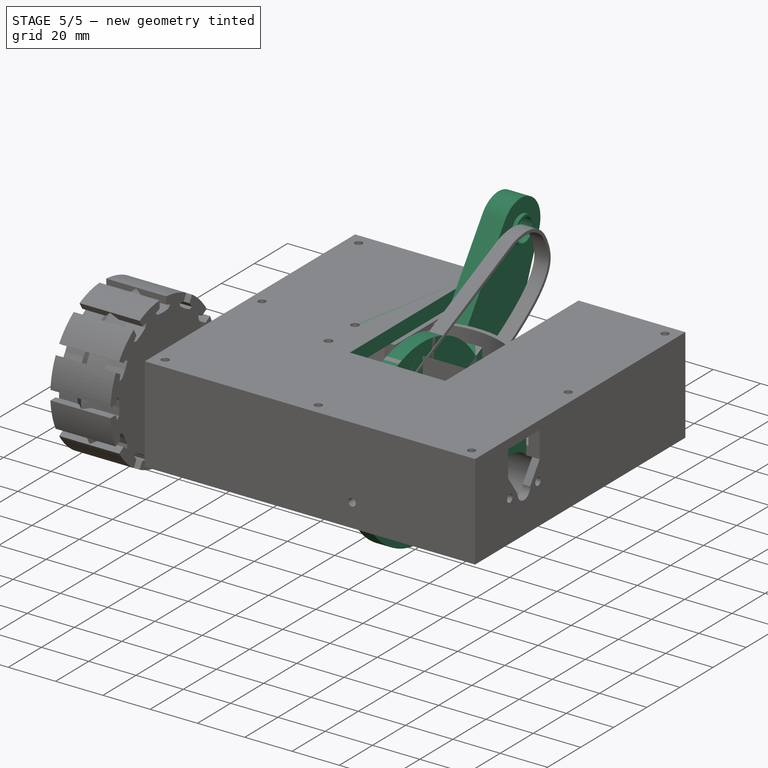
[diagram: stage 5 of 5 — iso view after this stage's code; geometry added in this stage tinted green]
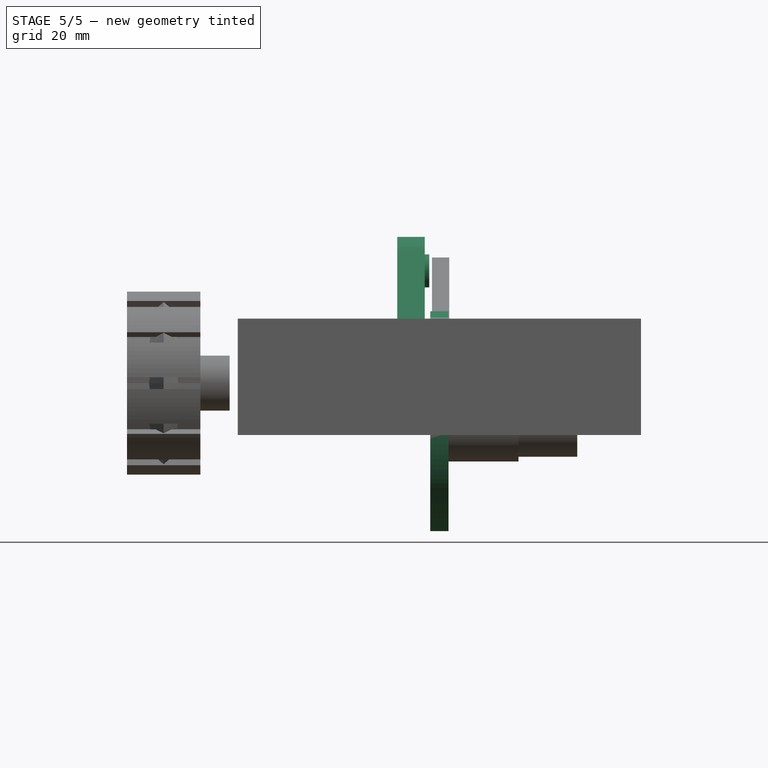
[diagram: stage 5 of 5 — front view after this stage's code; geometry added in this stage tinted green]
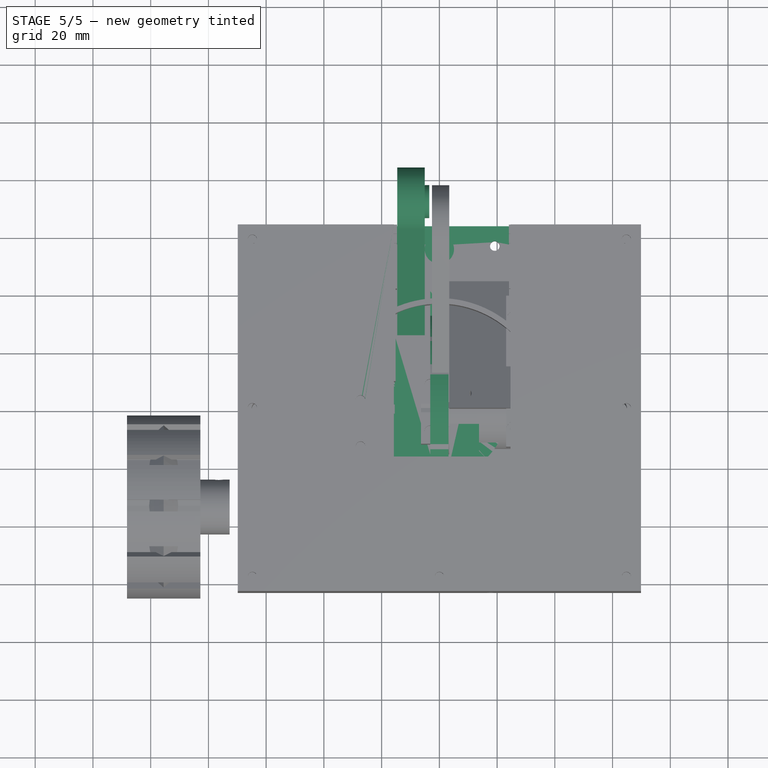
[diagram: stage 5 of 5 — top view after this stage's code; geometry added in this stage tinted green]
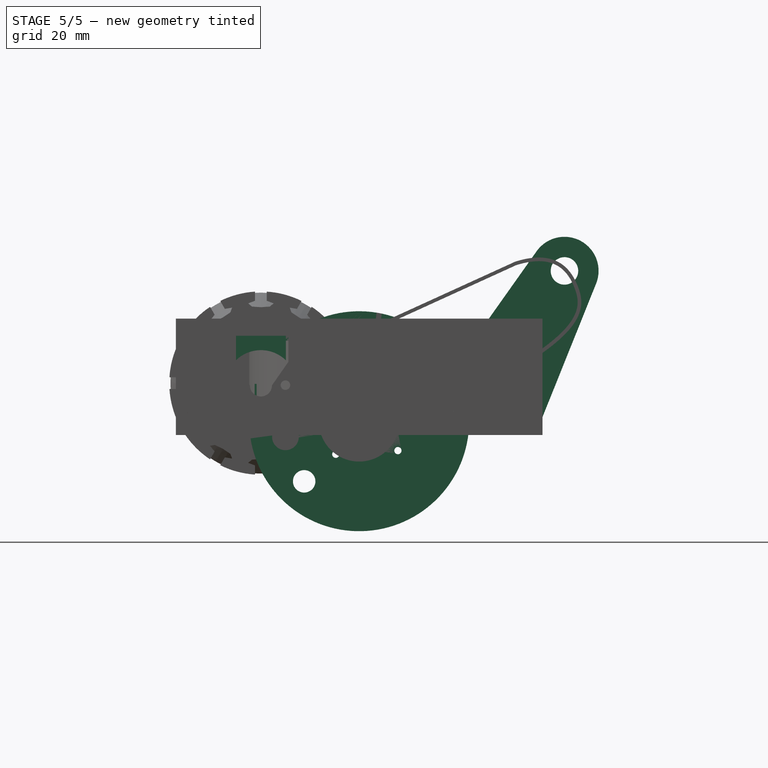
[diagram: stage 5 of 5 — right view after this stage's code; geometry added in this stage tinted green]
FEATURE [PartDesign::Pad] Pad007
  Direction = (0,0,1)
  Length = 12.95
  Length2 = 99.9998
  Profile = -> Sketch005
  Suppressed = false
  Type = 0
FEATURE [Sketcher::SketchObject] Sketch026
  AttachmentSupport = -> [YZ_Plane007]
  FullyConstrained = false
  MapMode = 5
  Placement = pos=(0,0,0) rot=(0.57735,0.57735,0.57735;2.0944rad)
  sketch-geometry (8):
    g0: ArcOfCircle CenterX=0 CenterY=0 CenterZ=0 NormalX=0 NormalY=0 NormalZ=1 AngleXU=0 Radius=38.1 StartAngle=0.568229 EndAngle=6.42532
    g1: LineSegment StartX=37.7158 StartY=5.39696 StartZ=0 EndX=40.6387 EndY=24.501 EndZ=0
    g2: LineSegment StartX=40.6387 StartY=24.501 StartZ=0 EndX=32.1128 EndY=20.5031 EndZ=0
    g3: Circle CenterX=-19.0503 CenterY=-20.8269 CenterZ=0 NormalX=0 NormalY=0 NormalZ=1 AngleXU=0 Radius=3.8874
    g4: Circle CenterX=-15.5625 CenterY=25.4594 CenterZ=0 NormalX=0 NormalY=0 NormalZ=1 AngleXU=0 Radius=4.3838
    g5: Circle CenterX=-25.5331 CenterY=-5.39175 CenterZ=0 NormalX=0 NormalY=0 NormalZ=1 AngleXU=0 Radius=4.63313
    g6: Circle CenterX=-24.7613 CenterY=10.9695 CenterZ=0 NormalX=0 NormalY=0 NormalZ=1 AngleXU=0 Radius=5.95322
    g7: Circle CenterX=0 CenterY=0 CenterZ=0 NormalX=0 NormalY=0 NormalZ=1 AngleXU=0 Radius=47.625
  constraints (6):
    c: Diameter(g0) = 76.2
    c: Coincident(g2,g1)
    c: Coincident(g0,g1)
    c: Coincident(g0,g2)
    c: Coincident(g7,g0)
    c: Diameter(g7) = 95.25
FEATURE [PartDesign::Pad] Pad015
  Direction = (1,-2e-16,3e-16)
  Length = 6.35
  Length2 = 10
  Midplane = true
  Placement = pos=(0,0,0) rot=(0.57735,0.57735,0.57735;2.0944rad)
  Profile = -> Sketch026
  ReferenceAxis = -> Sketch026 [N_Axis]
  Suppressed = false
  Type = 0
FEATURE [Part::Feature] Part__Feature002  label="R6_Ball Bearing"
  Placement = pos=(-1e-14,59.436,43.5864) rot=(0,1,0;1.5708rad)
  shape: bbox 5.558 x 24.06 x 24.06 mm, 528 faces, 18 solids (baked)
FEATURE [Sketcher::SketchObject] Sketch030
  AttachmentSupport = -> [XY_Plane012]
  FullyConstrained = false
  MapMode = 5
  sketch-geometry (10):
    g0: LineSegment StartX=-17.7334 StartY=54.7071 StartZ=0 EndX=-17.7334 EndY=73.7621 EndZ=0
    g1: LineSegment StartX=-17.7334 StartY=73.7621 StartZ=0 EndX=-5.24469 EndY=73.7621 EndZ=0
    g2: LineSegment StartX=-5.24469 StartY=73.7621 StartZ=0 EndX=-5.24469 EndY=88.6971 EndZ=0
    g3: LineSegment StartX=-5.24469 StartY=88.6971 StartZ=0 EndX=4.92655 EndY=88.6971 EndZ=0
    g4: LineSegment StartX=4.92655 StartY=88.6971 StartZ=0 EndX=4.92655 EndY=78.9121 EndZ=0
    g5: LineSegment StartX=4.92655 StartY=78.9121 StartZ=0 EndX=23.209 EndY=78.1396 EndZ=0
    g6: LineSegment StartX=23.209 StartY=78.1396 StartZ=0 EndX=23.209 EndY=74.1484 EndZ=0
    g7: LineSegment StartX=23.209 StartY=74.1484 StartZ=0 EndX=29.904 EndY=74.1484 EndZ=0
    g8: LineSegment StartX=29.904 StartY=74.1484 StartZ=0 EndX=29.904 EndY=54.7071 EndZ=0
    g9: LineSegment StartX=29.904 StartY=54.7071 StartZ=0 EndX=-17.7334 EndY=54.7071 EndZ=0
  constraints (19):
    c: Vertical(g0)
    c: Coincident(g0,g1)
    c: Horizontal(g1)
    c: Coincident(g1,g2)
    c: Vertical(g2)
    c: Coincident(g2,g3)
    c: Horizontal(g3)
    c: Coincident(g3,g4)
    c: Vertical(g4)
    c: Coincident(g4,g5)
    c: Coincident(g5,g6)
    c: Vertical(g6)
    c: Coincident(g6,g7)
    c: Horizontal(g7)
    c: Coincident(g7,g8)
    c: Vertical(g8)
    c: Coincident(g8,g9)
    c: Coincident(g9,g0)
    c: Horizontal(g9)
FEATURE [PartDesign::Body] Body012
  Group = -> [Sketch030]
  Origin = -> Origin012
FEATURE [PartDesign::FeatureBase] BaseFeature001
  BaseFeature = -> Part__Feature002
  Suppressed = false
FEATURE [PartDesign::Body] Body013  label="R6_bearing"
  BaseFeature = -> Part__Feature002
  Group = -> [BaseFeature001]
  Origin = -> Origin013
  Placement = pos=(-1.1e-14,57.8866,50.8) rot=(0,1,0;1.5708rad)
  Tip = -> BaseFeature001
FEATURE [Sketcher::SketchObject] Sketch031
  AttachmentSupport = -> [Pad015]
  FullyConstrained = true
  MapMode = 45
  Placement = pos=(8e-16,2.02294,-0.0592692) rot=(0.379266,0.843987,0.379266;1.73961rad)
  sketch-geometry (9):
    g0: Circle CenterX=0 CenterY=0 CenterZ=0 NormalX=0 NormalY=0 NormalZ=1 AngleXU=0 Radius=11.1125
    g1: Circle CenterX=0 CenterY=15.24 CenterZ=0 NormalX=0 NormalY=0 NormalZ=1 AngleXU=0 Radius=1.25
    g2: Circle CenterX=15.24 CenterY=1.9e-15 CenterZ=0 NormalX=0 NormalY=0 NormalZ=1 AngleXU=0 Radius=1.25
    g3: Circle CenterX=3.6e-15 CenterY=-15.24 CenterZ=0 NormalX=0 NormalY=0 NormalZ=1 AngleXU=0 Radius=1.25
    g4: LineSegment StartX=0 StartY=0 StartZ=0 EndX=0 EndY=15.24 EndZ=0
    g5: LineSegment StartX=0 StartY=0 StartZ=0 EndX=15.24 EndY=1.9e-15 EndZ=0
    g6: LineSegment StartX=3.6e-15 StartY=-15.24 StartZ=0 EndX=0 EndY=0 EndZ=0
    g7: Circle CenterX=-15.24 CenterY=-1.8e-15 CenterZ=0 NormalX=0 NormalY=0 NormalZ=1 AngleXU=0 Radius=1.25
    g8: LineSegment StartX=0 StartY=0 StartZ=0 EndX=-15.24 EndY=-1.8e-15 EndZ=0
  constraints (22):
    c: Coincident(g0,g-1)
    c: PointOnObject(g1,g-2)
    c: Diameter(g0) = 22.225
    c: Equal(g3,g2)
    c: Equal(g2,g1)
    c: Diameter(g1) = 2.5
    c: Coincident(g4,g0)
    c: Coincident(g4,g1)
    c: Coincident(g5,g0)
    c: Coincident(g5,g2)
    c: Coincident(g6,g3)
    c: Coincident(g6,g0)
    c: Equal(g5,g4)
    c: Equal(g4,g6)
    c: Angle(g5,g4) = 1.5708
    c: Angle(g6,g5) = 1.5708
    c: Distance(g5) = 15.24
    c: Coincident(g8,g0)
    c: Coincident(g8,g7)
    c: Equal(g5,g8)
    c: Angle(g8,g6) = 1.5708
    c: Equal(g7,g1)
FEATURE [PartDesign::Pocket] Pocket010  label="bearing_hole"
  BaseFeature = -> Pad015
  Direction = (-1,2e-16,-6e-16)
  Length = 5
  Length2 = 5
  Midplane = true
  Placement = pos=(0,0,0) rot=(0.57735,0.57735,0.57735;2.0944rad)
  Profile = -> Sketch031
  ReferenceAxis = -> Sketch031 [N_Axis]
  Suppressed = false
  Type = 1
FEATURE [Part::Box] Box  label="top_removal"
  AttacherType = Attacher::AttachEngine3D
  Height = 25.4
  Length = 40.39
  Placement = pos=(-15.75,-16.89,13.87) rot=(0,0,1;0rad)
  Width = 86.36
FEATURE [Part::Box] Box001  label="front-removal"
  AttacherType = Attacher::AttachEngine3D
  Height = 50.8
  Length = 38.73
  Placement = pos=(-14.6558,22.7838,0) rot=(0,0,1;0rad)
  Width = 53.34
FEATURE [Part::Feature] gt2_2mm001_solid  label="gt2_2mm001 (Solid)"
  shape: bbox 47.06 x 47.06 x 7.5 mm, 7912 faces (baked)
FEATURE [Sketcher::SketchObject] Sketch039
  FullyConstrained = false
  Placement = pos=(0,0,0) rot=(0.57735,0.57735,0.57735;2.0944rad)
  sketch-geometry (4):
    g0: LineSegment StartX=-11.1238 StartY=21.7898 StartZ=0 EndX=48.4517 EndY=62.9124 EndZ=0
    g1: LineSegment StartX=-3.00755 StartY=6.23377 StartZ=0 EndX=64.9213 EndY=23.5613 EndZ=0
    g2: ArcOfCircle CenterX=-5.79134 CenterY=14.6767 CenterZ=0 NormalX=0 NormalY=0 NormalZ=1 AngleXU=0 Radius=8.89 StartAngle=2.21408 EndAngle=5.03088
    g3: ArcOfCircle CenterX=61.0351 CenterY=45.0568 CenterZ=0 NormalX=0 NormalY=0 NormalZ=1 AngleXU=0 Radius=21.844 StartAngle=4.89125 EndAngle=8.46788
  constraints (8):
    c: Coincident(g2,g0)
    c: Coincident(g2,g1)
    c: Coincident(g3,g0)
    c: Coincident(g3,g1)
    c: Distance(g0) = 72.39
    c: Distance(g1) = 70.104
    c: Radius(g2) = 8.89
    c: Radius(g3) = 21.844
FEATURE [Part::Feature] drive_pulley_gt2001_solid  label="drive_pulley_gt2001 (Solid)"
  shape: bbox 24.14 x 24.14 x 8 mm, 3800 faces (baked)
FEATURE [PartDesign::FeatureBase] BaseFeature003
  BaseFeature = -> drive_pulley_gt2001_solid
  Suppressed = false
FEATURE [Sketcher::SketchObject] Sketch040
  AttachmentSupport = -> [BaseFeature003]
  FullyConstrained = true
  MapMode = 5
  Placement = pos=(0,0,0) rot=(1,0,0;3.14159rad)
  sketch-geometry (1):
    g0: Circle CenterX=0 CenterY=0 CenterZ=0 NormalX=0 NormalY=0 NormalZ=1 AngleXU=0 Radius=4.5085
  constraints (2):
    c: Coincident(g0,g-1)
    c: Diameter(g0) = 9.017
FEATURE [PartDesign::Pocket] Pocket017
  BaseFeature = -> BaseFeature003
  Direction = (0,0,1)
  Length = 5
  Length2 = 5
  Profile = -> Sketch040
  ReferenceAxis = -> Sketch040 [N_Axis]
  Suppressed = false
  Type = 1
FEATURE [Sketcher::SketchObject] Sketch047
  AttachmentSupport = -> [Pocket019]
  FullyConstrained = true
  MapMode = 5
  Placement = pos=(0,0,29.59) rot=(1,0,0;3.14159rad)
  sketch-geometry (8):
    g0: LineSegment StartX=-64.77 StartY=42.672 StartZ=0 EndX=-44.45 EndY=42.672 EndZ=0
    g1: LineSegment StartX=-44.45 StartY=42.672 StartZ=0 EndX=-44.45 EndY=25.4 EndZ=0
    g2: LineSegment StartX=-44.45 StartY=25.4 StartZ=0 EndX=-64.77 EndY=25.4 EndZ=0
    g3: LineSegment StartX=-64.77 StartY=25.4 StartZ=0 EndX=-64.77 EndY=42.672 EndZ=0
    g4: LineSegment StartX=44.45 StartY=42.672 StartZ=0 EndX=64.77 EndY=42.672 EndZ=0
    g5: LineSegment StartX=64.77 StartY=42.672 StartZ=0 EndX=64.77 EndY=25.4 EndZ=0
    g6: LineSegment StartX=64.77 StartY=25.4 StartZ=0 EndX=44.45 EndY=25.4 EndZ=0
    g7: LineSegment StartX=44.45 StartY=25.4 StartZ=0 EndX=44.45 EndY=42.672 EndZ=0
  constraints (23):
    c: Coincident(g0,g1)
    c: Coincident(g1,g2)
    c: Coincident(g2,g3)
    c: Coincident(g3,g0)
    c: Horizontal(g0)
    c: Horizontal(g2)
    c: Vertical(g1)
    c: Vertical(g3)
    c: Coincident(g4,g5)
    c: Coincident(g5,g6)
    c: Coincident(g6,g7)
    c: Coincident(g7,g4)
    c: Horizontal(g4)
    c: Horizontal(g6)
    c: Vertical(g5)
    c: Vertical(g7)
    c: Equal(g5,g1)
    c: Equal(g0,g4)
    c: Symmetric(g4,g0,g-2)
    c: DistanceX(g0,g0) = 20.32
    c: DistanceX(g-1,g4) = 44.45
    c: DistanceY(g7,g7) = 17.272
    c: DistanceY(g-1,g6) = 25.4
FEATURE [PartDesign::Pad] Pad024  label="motor-top-retainers"
  BaseFeature = -> Pocket019
  Direction = (0,0,-1)
  Length = 12.7
  Length2 = 10
  Placement = pos=(0,0,31.75) rot=(0,0,1;0rad)
  Profile = -> Sketch047
  ReferenceAxis = -> Sketch047 [N_Axis]
  Suppressed = false
  Type = 0
FEATURE [Sketcher::SketchObject] Sketch048
  AttachmentSupport = -> [YZ_Plane003]
  FullyConstrained = true
  MapMode = 5
  Placement = pos=(0,0,0) rot=(0.57735,0.57735,0.57735;2.0944rad)
  expr: Constraints[0] = <<Spreadsheet>>.drive_motor_diameter
  expr: Constraints[1] = <<Spreadsheet>>.drive_motor_ypos - 0.01 in
  expr: Constraints[2] = <<Spreadsheet>>.drive_motor_xpos
  sketch-geometry (1):
    g0: Circle CenterX=-34.036 CenterY=12.2428 CenterZ=0 NormalX=0 NormalY=0 NormalZ=1 AngleXU=0 Radius=12.3825
  constraints (3):
    c: Diameter(g0) = 24.765
    c: DistanceY(g-1,g0) = 12.2428
    c: DistanceX(g0,g-1) = 34.036
FEATURE [PartDesign::Pocket] Pocket020  label="motor-pocket"
  BaseFeature = -> Pad024
  Direction = (-1,2e-16,-3e-16)
  Length = 5
  Length2 = 5
  Midplane = true
  Placement = pos=(0,0,31.75) rot=(0,0,1;0rad)
  Profile = -> Sketch048
  ReferenceAxis = -> Sketch048 [N_Axis]
  Suppressed = false
  Type = 1
FEATURE [PartDesign::Body] Body003  label="top_cover"
  Group = -> [Sketch013,Sketch045,Pad022,Sketch046,Pad023,Pocket019,Sketch047,Pad024,Sketch048,Pocket020]
  Origin = -> Origin003
  Tip = -> Pocket020
FEATURE [Part::Cut] Cut  label="top-cover"
  Base = -> Body003
  Tool = -> Box
FEATURE [PartDesign::Body] Body020  label="drive-pulley"
  BaseFeature = -> drive_pulley_n40001_solid
  Group = -> [BaseFeature004,Sketch055,Pocket025,Sketch056,Pocket026,Sketch057,Pocket027]
  Origin = -> Origin020
  Placement = pos=(5.08,-5.334,14.478) rot=(0,1,0;1.5708rad)
  Tip = -> Pocket027
FEATURE [Part::Feature] driven_pulley_n70001_solid  label="driven_pulley_n70001 (Solid)"
  shape: bbox 47.06 x 47.06 x 9.3 mm, 9316 faces (baked)
FEATURE [PartDesign::FeatureBase] BaseFeature
  BaseFeature = -> driven_pulley_n70001_solid
  Suppressed = false
FEATURE [Sketcher::SketchObject] Sketch037
  AttachmentSupport = -> [BaseFeature]
  FullyConstrained = true
  MapMode = 5
  Placement = pos=(0,0,-1.5) rot=(1,0,0;3.14159rad)
  sketch-geometry (8):
    g0: Circle CenterX=15.24 CenterY=1e-16 CenterZ=0 NormalX=0 NormalY=0 NormalZ=1 AngleXU=0 Radius=1.651
    g1: Circle CenterX=0 CenterY=15.24 CenterZ=0 NormalX=0 NormalY=0 NormalZ=1 AngleXU=0 Radius=1.651
    g2: Circle CenterX=-15.24 CenterY=0 CenterZ=0 NormalX=0 NormalY=0 NormalZ=1 AngleXU=0 Radius=1.651
    g3: Circle CenterX=0 CenterY=-15.24 CenterZ=0 NormalX=0 NormalY=0 NormalZ=1 AngleXU=0 Radius=1.651
    g4: LineSegment StartX=0 StartY=15.24 StartZ=0 EndX=0 EndY=0 EndZ=0
    g5: LineSegment StartX=0 StartY=0 StartZ=0 EndX=15.24 EndY=1e-16 EndZ=0
    g6: LineSegment StartX=0 StartY=0 StartZ=0 EndX=0 EndY=-15.24 EndZ=0
    g7: LineSegment StartX=0 StartY=0 StartZ=0 EndX=-15.24 EndY=0 EndZ=0
  constraints (20):
    c: Equal(g3,g2)
    c: Equal(g2,g1)
    c: Equal(g1,g0)
    c: Coincident(g4,g1)
    c: Coincident(g4,g-1)
    c: Coincident(g5,g4)
    c: Coincident(g5,g0)
    c: Coincident(g6,g4)
    c: Coincident(g6,g3)
    c: Coincident(g7,g4)
    c: Coincident(g7,g2)
    c: Equal(g5,g4)
    c: Equal(g4,g6)
    c: Equal(g6,g7)
    c: Diameter(g0) = 3.302
    c: PointOnObject(g1,g-2)
    c: Angle(g5,g4) = 1.5708
    c: PointOnObject(g3,g-2)
    c: PointOnObject(g2,g-1)
    c: DistanceX(g5,g5) = 15.24
FEATURE [PartDesign::Pocket] Pocket015  label="hole"
  BaseFeature = -> BaseFeature
  Direction = (0,0,1)
  Length = 5
  Length2 = 5
  Profile = -> Sketch037
  ReferenceAxis = -> Sketch037 [N_Axis]
  Suppressed = false
  Type = 1
FEATURE [Sketcher::SketchObject] Sketch038
  AttachmentSupport = -> [Pocket015]
  FullyConstrained = false
  MapMode = 5
  Placement = pos=(0,0,-1.5) rot=(1,0,0;3.14159rad)
  sketch-geometry (9):
    g0: Circle CenterX=15.24 CenterY=1e-16 CenterZ=0 NormalX=0 NormalY=0 NormalZ=1 AngleXU=0 Radius=3.25
    g1: Circle CenterX=0 CenterY=15.24 CenterZ=0 NormalX=0 NormalY=0 NormalZ=1 AngleXU=0 Radius=3.25
    g2: Circle CenterX=-15.24 CenterY=0 CenterZ=0 NormalX=0 NormalY=0 NormalZ=1 AngleXU=0 Radius=3.25
    g3: Circle CenterX=0 CenterY=-15.24 CenterZ=0 NormalX=0 NormalY=0 NormalZ=1 AngleXU=0 Radius=3.25
    g4: LineSegment StartX=0 StartY=15.24 StartZ=0 EndX=0 EndY=0 EndZ=0
    g5: LineSegment StartX=0 StartY=0 StartZ=0 EndX=15.24 EndY=1e-16 EndZ=0
    g6: LineSegment StartX=0 StartY=0 StartZ=0 EndX=0 EndY=-15.24 EndZ=0
    g7: LineSegment StartX=0 StartY=0 StartZ=0 EndX=-15.24 EndY=0 EndZ=0
    g8: Circle CenterX=0 CenterY=0 CenterZ=0 NormalX=0 NormalY=0 NormalZ=1 AngleXU=0 Radius=28.8234
  constraints (21):
    c: Equal(g3,g2)
    c: Equal(g2,g1)
    c: Equal(g1,g0)
    c: Coincident(g4,g1)
    c: Coincident(g4,g-1)
    c: Coincident(g5,g4)
    c: Coincident(g5,g0)
    c: Coincident(g6,g4)
    c: Coincident(g6,g3)
    c: Coincident(g7,g4)
    c: Coincident(g7,g2)
    c: Equal(g5,g4)
    c: Equal(g4,g6)
    c: Equal(g6,g7)
    c: Diameter(g0) = 6.5
    c: PointOnObject(g1,g-2)
    c: Angle(g5,g4) = 1.5708
    c: PointOnObject(g3,g-2)
    c: PointOnObject(g2,g-1)
    c: DistanceX(g5,g5) = 15.24
    c: Coincident(g8,g4)
FEATURE [PartDesign::Pocket] Pocket016  label="counterbore001"
  BaseFeature = -> Pocket015
  Direction = (0,0,1)
  Length = 3.2
  Length2 = 5
  Profile = -> Sketch038
  ReferenceAxis = -> Sketch038 [N_Axis]
  Suppressed = false
  Type = 0
FEATURE [PartDesign::Body] Body005  label="wmountr"
  Group = -> [Sketch024,DatumPlane,Pad013,Sketch034,Pad018,Sketch035,Pocket013,Sketch073,Pocket035]
  Origin = -> Origin005
  Placement = pos=(-4.57,7.62,0) rot=(0,0,1;0rad)
  Tip = -> Pocket035
FEATURE [Part::Mirroring] Part__Mirroring  label="wmountL-mirror"
  Base = (0,0,0)
  Normal = (1,0,0)
  Placement = pos=(9.4,0,0) rot=(0,0,1;0rad)
  Source = -> Body005
FEATURE [PartDesign::Body] Body  label="main_body"
  Group = -> [Sketch,Pad,Sketch001,Pad001,Sketch002,Pad002,Sketch003,Pad003,Sketch004,Pocket,Sketch007,Pad006,Sketch014,Pocket004,Sketch015,Pocket005,Sketch016,Pad010,Mirrored,Sketch060,Pad028,Sketch061,Pocket028,Sketch071,Pad033,Sketch072,Pocket034,Sketch074,Pad034,Sketch089,Pad041]
  Origin = -> Origin
  Tip = -> Pad041
FEATURE [Part::Cut] Cut001  label="main-body"
  Base = -> Body
  Tool = -> Box001
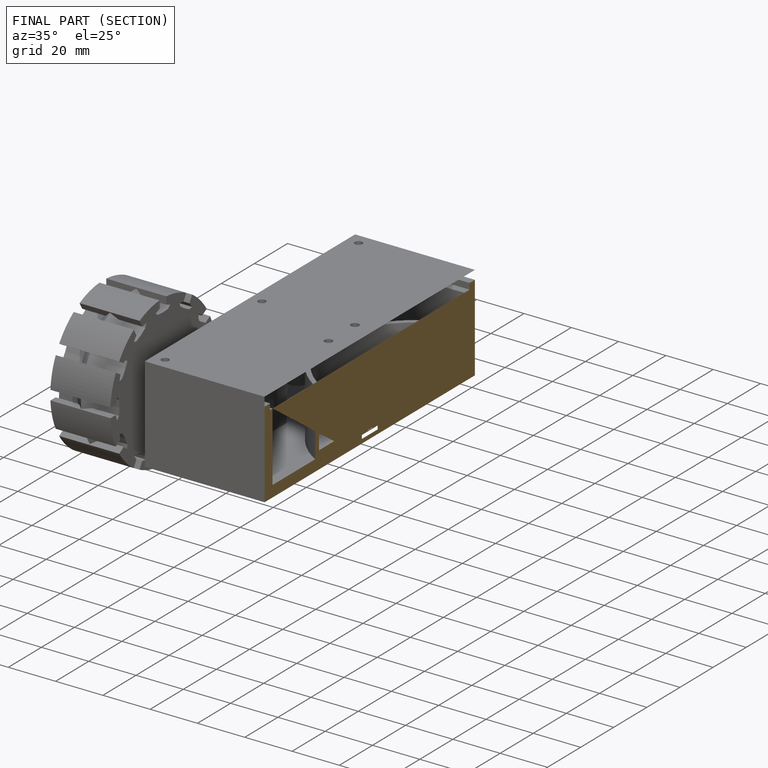
[diagram: finished part — half-section view (interior)]
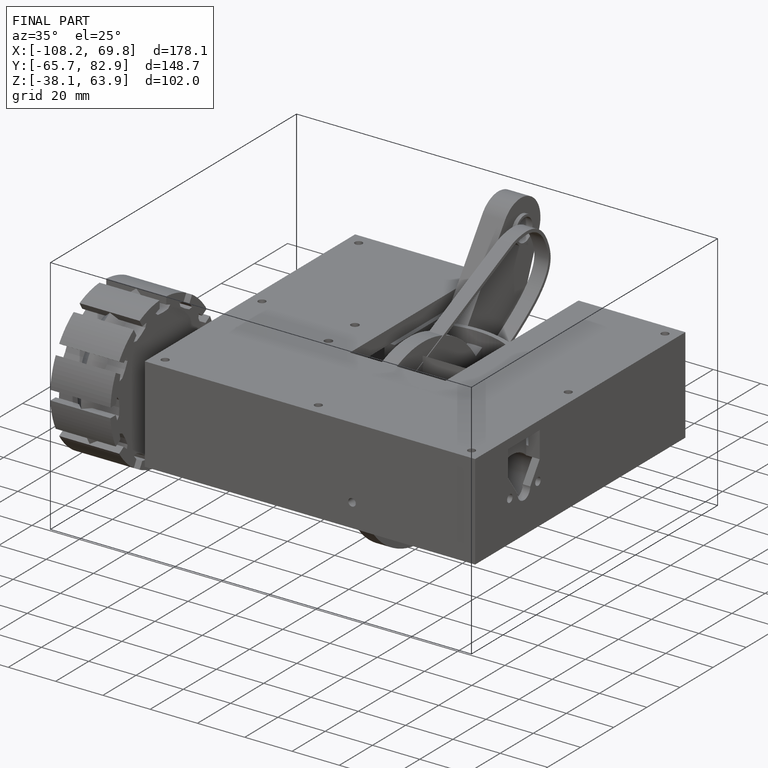
[diagram: finished part — iso view with bounding-box wireframe]
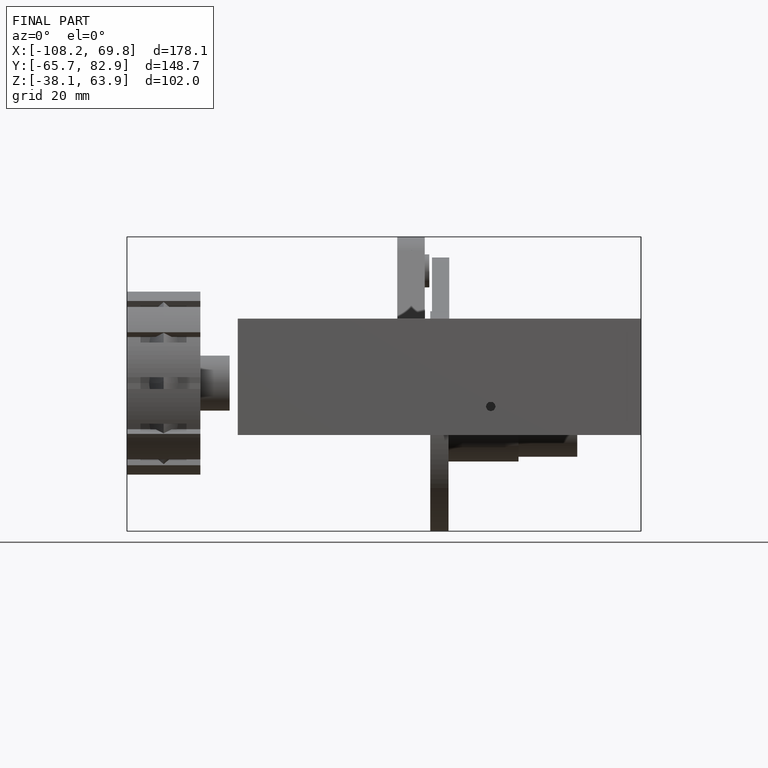
[diagram: finished part — front view with bounding-box wireframe]
